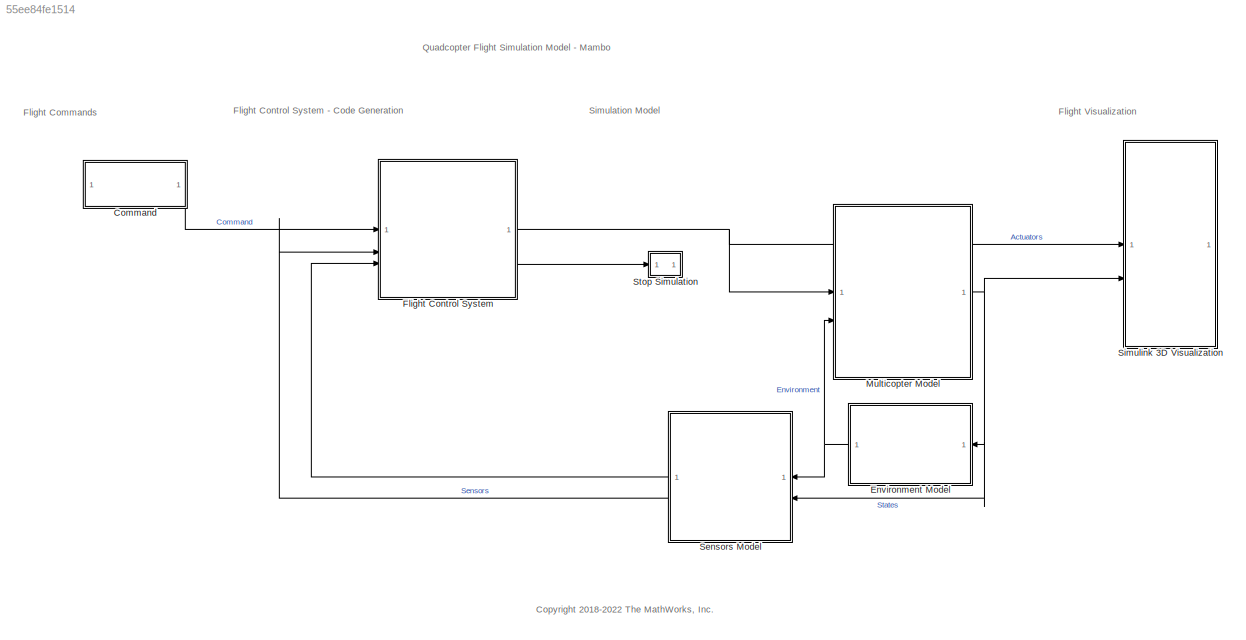
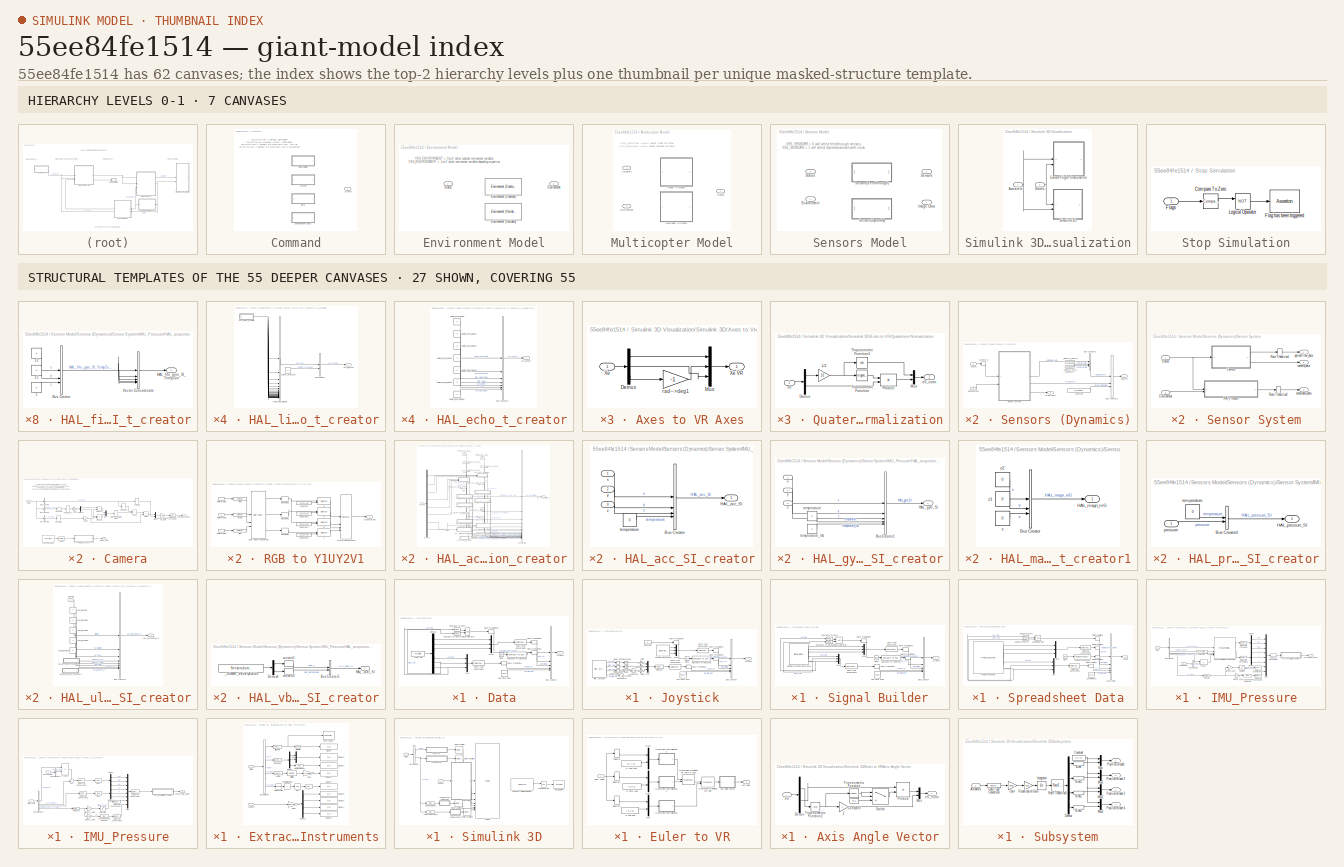
[diagram: thumbnail index - top-2 hierarchy levels (7 canvases) + 27 structural-template representatives of the remaining 55 canvases]
MODEL slx_55ee84fe1514
KIND model
CONFIG AbsTol = auto
CONFIG EnableMultiTasking = on
CONFIG FixedStep = Ts
CONFIG MaxStep = auto
CONFIG MinStep = auto
CONFIG RelTol = 1e-3
CONFIG SampleTimeConstraint = Unconstrained
CONFIG SolverName = ode3
CONFIG StartTime = 0
CONFIG StopTime = TFinal
BLOCK [SubSystem] Command
  Variant = on
BLOCK [Outport] Command/AC Cmd
  OutDataTypeStr = Bus: CommandBus
  VectorParamsAs1DForOutWhenUnconnected = off
BLOCK [SubSystem] Command/Data
  VariantControl = VSS_COMMAND_PRESAVED
BLOCK [Outport] Command/Data/AC Cmd
  OutDataTypeStr = Bus: CommandBus
  VectorParamsAs1DForOutWhenUnconnected = off
BLOCK [BusCreator] Command/Data/Bus Creator
  DisplayOption = bar
  InheritFromInputs = on
  Inputs = 5
  NonVirtualBus = on
  OutDataTypeStr = Bus: CommandBus
BLOCK [Clock] Command/Data/Clock
BLOCK [Reference] Command/Data/Compare To Constant  REF=simulink/Logic and Bit
Operations/Compare
To Constant
  SourceBlock = simulink/Logic and Bit\nOperations/Compare\nTo Constant
  SourceType = Compare To Constant
BLOCK [Reference] Command/Data/Compare To Zero  REF=simulink/Logic and Bit
Operations/Compare
To Zero
  SourceBlock = simulink/Logic and Bit\nOperations/Compare\nTo Zero
  SourceType = Compare To Zero
BLOCK [Reference] Command/Data/Compare To Zero1  REF=simulink/Logic and Bit
Operations/Compare
To Zero
  SourceBlock = simulink/Logic and Bit\nOperations/Compare\nTo Zero
  SourceType = Compare To Zero
BLOCK [DataTypeConversion] Command/Data/Data Type Conversion1
  OutDataTypeStr = single
  RndMeth = Floor
  SaturateOnIntegerOverflow = off
BLOCK [DataTypeConversion] Command/Data/Data Type Conversion3
  OutDataTypeStr = single
  RndMeth = Floor
  SaturateOnIntegerOverflow = off
BLOCK [Demux] Command/Data/Demux
  Outputs = 6
BLOCK [FromFile] Command/Data/From File
  FileName = cmdData.mat
  SampleTime = Ts
BLOCK [Reference] Command/Data/Live Time Ticks  REF=simulink/Sources/Counter
Free-Running
  SourceBlock = simulink/Sources/Counter\nFree-Running
  SourceType = Counter Free-Running
BLOCK [Logic] Command/Data/Logical Operator
  AllPortsSameDT = off
  OutDataTypeStr = boolean
BLOCK [Mux] Command/Data/Mux
  DisplayOption = bar
  Inputs = 3
BLOCK [Mux] Command/Data/Mux1
  DisplayOption = bar
  Inputs = 3
BLOCK [RateTransition] Command/Data/Rate Transition1
  OutPortSampleTime = Ts
BLOCK [RateTransition] Command/Data/Rate Transition2
  OutPortSampleTime = Ts
BLOCK [RateTransition] Command/Data/Rate Transition3
  OutPortSampleTime = Ts
BLOCK [RateTransition] Command/Data/Rate Transition4
  OutPortSampleTime = Ts
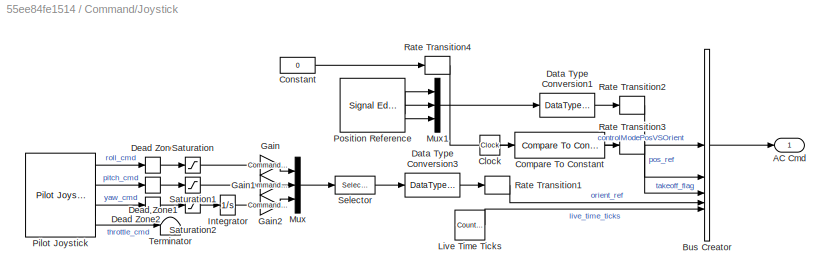
BLOCK [SubSystem] Command/Joystick
  VariantControl = VSS_COMMAND_JOYSTICK
BLOCK [Outport] Command/Joystick/AC Cmd
  OutDataTypeStr = Bus: CommandBus
  VectorParamsAs1DForOutWhenUnconnected = off
BLOCK [BusCreator] Command/Joystick/Bus Creator
  DisplayOption = bar
  InheritFromInputs = on
  Inputs = 5
  NonVirtualBus = on
  OutDataTypeStr = Bus: CommandBus
BLOCK [Clock] Command/Joystick/Clock
BLOCK [Reference] Command/Joystick/Compare To Constant  REF=simulink/Logic and Bit
Operations/Compare
To Constant
  SourceBlock = simulink/Logic and Bit\nOperations/Compare\nTo Constant
  SourceType = Compare To Constant
BLOCK [Constant] Command/Joystick/Constant
  OutDataTypeStr = boolean
  Value = 0
BLOCK [DataTypeConversion] Command/Joystick/Data Type Conversion1
  OutDataTypeStr = single
  RndMeth = Floor
  SaturateOnIntegerOverflow = off
BLOCK [DataTypeConversion] Command/Joystick/Data Type Conversion3
  OutDataTypeStr = single
  RndMeth = Floor
  SaturateOnIntegerOverflow = off
BLOCK [DeadZone] Command/Joystick/Dead Zone
  LowerValue = Command.rollDeadZoneStart
  UpperValue = Command.rollDeadZoneEnd
BLOCK [DeadZone] Command/Joystick/Dead Zone1
  LowerValue = Command.pitchDeadZoneStart
  UpperValue = Command.pitchDeadZoneEnd
BLOCK [DeadZone] Command/Joystick/Dead Zone2
  LowerValue = Command.yawDeadZoneStart
  UpperValue = Command.yawDeadZoneEnd
BLOCK [Gain] Command/Joystick/Gain
  Gain = Command.rollGain
BLOCK [Gain] Command/Joystick/Gain1
  Gain = Command.pitchGain
BLOCK [Gain] Command/Joystick/Gain2
  Gain = Command.yawGain
BLOCK [Integrator] Command/Joystick/Integrator
BLOCK [Reference] Command/Joystick/Live Time Ticks  REF=simulink/Sources/Counter
Free-Running
  SourceBlock = simulink/Sources/Counter\nFree-Running
  SourceType = Counter Free-Running
BLOCK [Mux] Command/Joystick/Mux
  DisplayOption = bar
  Inputs = 3
BLOCK [Mux] Command/Joystick/Mux1
  DisplayOption = bar
  Inputs = 3
BLOCK [Reference] Command/Joystick/Pilot Joystick  REF=aerolibanimutils/Pilot Joystick
  SourceBlock = aerolibanimutils/Pilot Joystick
  SourceType = PilotJoystick
BLOCK [Reference] Command/Joystick/Position Reference  REF=SignalEditorBlockLib/Signal Editor
  LibrarySourceBlock = simulink/Sources/Signal Editor
  SourceBlock = SignalEditorBlockLib/Signal Editor
  SourceType = SignalEditor
  UserDataPersistent = on
BLOCK [RateTransition] Command/Joystick/Rate Transition1
  OutPortSampleTime = Ts
BLOCK [RateTransition] Command/Joystick/Rate Transition2
  OutPortSampleTime = Ts
BLOCK [RateTransition] Command/Joystick/Rate Transition3
  OutPortSampleTime = Ts
BLOCK [RateTransition] Command/Joystick/Rate Transition4
  OutPortSampleTime = Ts
BLOCK [Saturate] Command/Joystick/Saturation
  LowerLimit = Command.rollSatLower
  UpperLimit = Command.rollSatUpper
BLOCK [Saturate] Command/Joystick/Saturation1
  LowerLimit = Command.pitchSatLower
  UpperLimit = Command.pitchSatUpper
BLOCK [Saturate] Command/Joystick/Saturation2
  LowerLimit = Command.yawSatLower
  UpperLimit = Command.yawSatUpper
BLOCK [Selector] Command/Joystick/Selector
  IndexOptions = Index vector (dialog)
  Indices = [3 2 1]
  InputPortWidth = 3
  OutputSizes = 1
BLOCK [Terminator] Command/Joystick/Terminator
BLOCK [SubSystem] Command/Signal Builder
  VariantControl = VSS_COMMAND_SIGBLDR
BLOCK [Outport] Command/Signal Builder/AC Cmd
  OutDataTypeStr = Bus: CommandBus
  VectorParamsAs1DForOutWhenUnconnected = off
BLOCK [BusCreator] Command/Signal Builder/Bus Creator
  DisplayOption = bar
  InheritFromInputs = on
  Inputs = 5
  NonVirtualBus = on
  OutDataTypeStr = Bus: CommandBus
BLOCK [Clock] Command/Signal Builder/Clock
BLOCK [Reference] Command/Signal Builder/Compare To Constant  REF=simulink/Logic and Bit
Operations/Compare
To Constant
  SourceBlock = simulink/Logic and Bit\nOperations/Compare\nTo Constant
  SourceType = Compare To Constant
BLOCK [Reference] Command/Signal Builder/Compare To Zero  REF=simulink/Logic and Bit
Operations/Compare
To Zero
  SourceBlock = simulink/Logic and Bit\nOperations/Compare\nTo Zero
  SourceType = Compare To Zero
BLOCK [Reference] Command/Signal Builder/Compare To Zero1  REF=simulink/Logic and Bit
Operations/Compare
To Zero
  SourceBlock = simulink/Logic and Bit\nOperations/Compare\nTo Zero
  SourceType = Compare To Zero
BLOCK [DataTypeConversion] Command/Signal Builder/Data Type Conversion1
  OutDataTypeStr = single
  RndMeth = Floor
  SaturateOnIntegerOverflow = off
BLOCK [DataTypeConversion] Command/Signal Builder/Data Type Conversion3
  OutDataTypeStr = single
  RndMeth = Floor
  SaturateOnIntegerOverflow = off
BLOCK [Reference] Command/Signal Builder/Live Time Ticks  REF=simulink/Sources/Counter
Free-Running
  SourceBlock = simulink/Sources/Counter\nFree-Running
  SourceType = Counter Free-Running
BLOCK [Logic] Command/Signal Builder/Logical Operator
  AllPortsSameDT = off
  OutDataTypeStr = boolean
BLOCK [Mux] Command/Signal Builder/Mux
  DisplayOption = bar
  Inputs = 3
BLOCK [Mux] Command/Signal Builder/Mux1
  DisplayOption = bar
  Inputs = 3
BLOCK [Reference] Command/Signal Builder/Position//Attitude Reference  REF=SignalEditorBlockLib/Signal Editor
  LibrarySourceBlock = simulink/Sources/Signal Editor
  SourceBlock = SignalEditorBlockLib/Signal Editor
  SourceType = SignalEditor
  UserDataPersistent = on
BLOCK [RateTransition] Command/Signal Builder/Rate Transition1
  OutPortSampleTime = Ts
BLOCK [RateTransition] Command/Signal Builder/Rate Transition2
  OutPortSampleTime = Ts
BLOCK [RateTransition] Command/Signal Builder/Rate Transition3
  OutPortSampleTime = Ts
BLOCK [RateTransition] Command/Signal Builder/Rate Transition4
  OutPortSampleTime = Ts
BLOCK [SubSystem] Command/Spreadsheet Data
  VariantControl = VSS_COMMAND_SPREADSHEET
BLOCK [Outport] Command/Spreadsheet Data/AC Cmd
  OutDataTypeStr = Bus: CommandBus
  VectorParamsAs1DForOutWhenUnconnected = off
BLOCK [BusCreator] Command/Spreadsheet Data/Bus Creator
  DisplayOption = bar
  InheritFromInputs = on
  Inputs = 5
  NonVirtualBus = on
  OutDataTypeStr = Bus: CommandBus
BLOCK [Clock] Command/Spreadsheet Data/Clock
BLOCK [Reference] Command/Spreadsheet Data/Compare To Constant  REF=simulink/Logic and Bit
Operations/Compare
To Constant
  SourceBlock = simulink/Logic and Bit\nOperations/Compare\nTo Constant
  SourceType = Compare To Constant
BLOCK [Reference] Command/Spreadsheet Data/Compare To Zero  REF=simulink/Logic and Bit
Operations/Compare
To Zero
  SourceBlock = simulink/Logic and Bit\nOperations/Compare\nTo Zero
  SourceType = Compare To Zero
BLOCK [Reference] Command/Spreadsheet Data/Compare To Zero1  REF=simulink/Logic and Bit
Operations/Compare
To Zero
  SourceBlock = simulink/Logic and Bit\nOperations/Compare\nTo Zero
  SourceType = Compare To Zero
BLOCK [DataTypeConversion] Command/Spreadsheet Data/Data Type Conversion1
  OutDataTypeStr = single
  RndMeth = Floor
  SaturateOnIntegerOverflow = off
BLOCK [DataTypeConversion] Command/Spreadsheet Data/Data Type Conversion3
  OutDataTypeStr = single
  RndMeth = Floor
  SaturateOnIntegerOverflow = off
BLOCK [FromSpreadsheet] Command/Spreadsheet Data/From Spreadsheet
  FileName = cmdData.xlsx
  SampleTime = Ts
  SheetName = data
BLOCK [Reference] Command/Spreadsheet Data/Live Time Ticks  REF=simulink/Sources/Counter
Free-Running
  SourceBlock = simulink/Sources/Counter\nFree-Running
  SourceType = Counter Free-Running
BLOCK [Logic] Command/Spreadsheet Data/Logical Operator
  AllPortsSameDT = off
  OutDataTypeStr = boolean
BLOCK [Mux] Command/Spreadsheet Data/Mux
  DisplayOption = bar
  Inputs = 3
BLOCK [Mux] Command/Spreadsheet Data/Mux1
  DisplayOption = bar
  Inputs = 3
BLOCK [RateTransition] Command/Spreadsheet Data/Rate Transition1
  OutPortSampleTime = Ts
BLOCK [RateTransition] Command/Spreadsheet Data/Rate Transition2
  OutPortSampleTime = Ts
BLOCK [RateTransition] Command/Spreadsheet Data/Rate Transition3
  OutPortSampleTime = Ts
BLOCK [RateTransition] Command/Spreadsheet Data/Rate Transition4
  OutPortSampleTime = Ts
BLOCK [SubSystem] Environment Model
  Variant = on
BLOCK [Outport] Environment Model/Environment
  OutDataTypeStr = Bus: EnvironmentBus
  VectorParamsAs1DForOutWhenUnconnected = off
BLOCK [Reference] Environment Model/Environment (Constant)  REF=environmentLibrary/Environment (Constant)
  SourceBlock = environmentLibrary/Environment (Constant)
  SourceType = SubSystem
BLOCK [Reference] Environment Model/Environment (Variable)  REF=environmentLibrary/Environment (Variable)
  SourceBlock = environmentLibrary/Environment (Variable)
  SourceType = SubSystem
BLOCK [Inport] Environment Model/States
  OutDataTypeStr = Bus: StatesBus
BLOCK [ModelReference] Flight Control System
  ModelNameDialog = flightControlSystem.slx
  ModelReferenceVersion = 8.1
BLOCK [SubSystem] Multicopter Model
  Variant = on
BLOCK [Inport] Multicopter Model/Actuators
BLOCK [Inport] Multicopter Model/Environment
  OutDataTypeStr = Bus: EnvironmentBus
  Port = 2
BLOCK [ModelReference] Multicopter Model/Linear Airframe
  ModelNameDialog = linearAirframe.slx
  ModelReferenceVersion = 13.0
  VariantControl = VSS_VEHICLE_LINEAR
BLOCK [ModelReference] Multicopter Model/Nonlinear Airframe
  ModelNameDialog = nonlinearAirframe.slx
  ModelReferenceVersion = 13.0
  VariantControl = VSS_VEHICLE_NONLINEAR
BLOCK [Outport] Multicopter Model/States
  OutDataTypeStr = Bus: StatesBus
  VectorParamsAs1DForOutWhenUnconnected = off
BLOCK [SubSystem] Sensors Model
  Variant = on
BLOCK [Inport] Sensors Model/Environment
BLOCK [Outport] Sensors Model/Image Data
  VectorParamsAs1DForOutWhenUnconnected = off
BLOCK [Outport] Sensors Model/Sensors
  Port = 2
  VectorParamsAs1DForOutWhenUnconnected = off
BLOCK [SubSystem] Sensors Model/Sensors (Dynamics)
  TreatAsAtomicUnit = on
  VariantControl = VSS_SENSORS_DYNAMICS
BLOCK [BusCreator] Sensors Model/Sensors (Dynamics)/Bus Creator1
  DisplayOption = bar
  InheritFromInputs = on
  Inputs = 3
  NonVirtualBus = on
  OutDataTypeStr = Bus: SensorsBus
BLOCK [BusCreator] Sensors Model/Sensors (Dynamics)/Bus Creator2
  DisplayOption = bar
  InheritFromInputs = on
  Inputs = 3
  NonVirtualBus = on
  OutDataTypeStr = Bus: extraSensorData_t
BLOCK [Constant] Sensors Model/Sensors (Dynamics)/Constant
  OutDataTypeStr = single
  Value = sensorCalibrationData
BLOCK [Inport] Sensors Model/Sensors (Dynamics)/Environment
  OutDataTypeStr = Bus: EnvironmentBus
  Port = 2
BLOCK [Outport] Sensors Model/Sensors (Dynamics)/Image Data
  Port = 2
  VectorParamsAs1DForOutWhenUnconnected = off
BLOCK [Memory] Sensors Model/Sensors (Dynamics)/Memory1
  InheritSampleTime = on
  InitialCondition = States
BLOCK [SubSystem] Sensors Model/Sensors (Dynamics)/Sensor System
BLOCK [SubSystem] Sensors Model/Sensors (Dynamics)/Sensor System/Camera
BLOCK [Sum] Sensors Model/Sensors (Dynamics)/Sensor System/Camera/Add1
  IconShape = rectangular
BLOCK [BusSelector] Sensors Model/Sensors (Dynamics)/Sensor System/Camera/Bus Selector1
  OutputSignals = V_body
BLOCK [BusSelector] Sensors Model/Sensors (Dynamics)/Sensor System/Camera/Bus Selector3
  OutputSignals = X_ned
BLOCK [BusSelector] Sensors Model/Sensors (Dynamics)/Sensor System/Camera/Bus Selector4
  OutputSignals = Omega_body
BLOCK [DataTypeConversion] Sensors Model/Sensors (Dynamics)/Sensor System/Camera/Data Type Conversion
  OutDataTypeStr = single
  RndMeth = Floor
  SaturateOnIntegerOverflow = off
BLOCK [Demux] Sensors Model/Sensors (Dynamics)/Sensor System/Camera/Demux4
  Outputs = 2
BLOCK [Product] Sensors Model/Sensors (Dynamics)/Sensor System/Camera/Divide
  Inputs = */
BLOCK [Gain] Sensors Model/Sensors (Dynamics)/Sensor System/Camera/Gain1
  Gain = 0.8*[-1,1]
BLOCK [Gain] Sensors Model/Sensors (Dynamics)/Sensor System/Camera/Gain2
  Gain = -1
BLOCK [Mux] Sensors Model/Sensors (Dynamics)/Sensor System/Camera/Mux7
  DisplayOption = bar
  Inputs = 2
BLOCK [Mux] Sensors Model/Sensors (Dynamics)/Sensor System/Camera/Mux8
  DisplayOption = bar
  Inputs = 2
BLOCK [S-Function] Sensors Model/Sensors (Dynamics)/Sensor System/Camera/On-Board Camera
  CloseFcn = vrmfunc('FnClose', gcbh);
  ContinueFcn = vrmfunc('FnSimStatus', gcbh, 'running');
  CopyFcn = vrmfunc('FnCopy', gcbh);
  DeleteFcn = vrmfunc('FnDelete', gcbh);
  DestroyFcn = vrmfunc('FnDestroy', gcbh);
  EnableBusSupport = off
  FunctionName = vrsfunc
  InstantiateOnLoad = on
  LoadFcn = vrmfunc('FnLoad', gcbh);
  OpenFcn = vrmfunc('FnOpen', gcbh);
  Parameters = SampleTime, VideoDimensions, false
  PauseFcn = vrmfunc('FnSimStatus', gcbh, 'paused');
  PreSaveFcn = vrmfunc('FnPreSave', gcbh);
  SFcnIsStateOwnerBlock = off
  SFunctionDeploymentMode = off
  StartFcn = vrmfunc('FnSimStatus', gcbh, 'running')
  StopFcn = vrmfunc('FnStop', gcbh)
BLOCK [Product] Sensors Model/Sensors (Dynamics)/Sensor System/Camera/Product
BLOCK [Product] Sensors Model/Sensors (Dynamics)/Sensor System/Camera/Product1
BLOCK [SubSystem] Sensors Model/Sensors (Dynamics)/Sensor System/Camera/RGB to Y1UY2V1
BLOCK [InportShadow] Sensors Model/Sensors (Dynamics)/Sensor System/Camera/RGB to Y1UY2V1/ RGBImage 
  OutDataTypeStr = uint8
  PortDimensions = [120 160 3]
BLOCK [Selector] Sensors Model/Sensors (Dynamics)/Sensor System/Camera/RGB to Y1UY2V1/Blue
  IndexOptions = Select all,Select all,Index vector (dialog)
  Indices = 1,1,3
  InputPortWidth = 3
  NumberOfDimensions = 3
  OutputSizes = 1,1,1
BLOCK [Reference] Sensors Model/Sensors (Dynamics)/Sensor System/Camera/RGB to Y1UY2V1/Color Space Conversion  REF=visionconversions/Color Space
 Conversion
  SourceBlock = visionconversions/Color Space\n Conversion
  SourceType = Color Space Conversion
BLOCK [Constant] Sensors Model/Sensors (Dynamics)/Sensor System/Camera/RGB to Y1UY2V1/Constant
  Value = 1:2:120*160
BLOCK [Constant] Sensors Model/Sensors (Dynamics)/Sensor System/Camera/RGB to Y1UY2V1/Constant1
  Value = 2:2:120*160
BLOCK [Constant] Sensors Model/Sensors (Dynamics)/Sensor System/Camera/RGB to Y1UY2V1/Constant2
  Value = 1:2:120*160
BLOCK [Constant] Sensors Model/Sensors (Dynamics)/Sensor System/Camera/RGB to Y1UY2V1/Constant3
  Value = 1:2:120*160
BLOCK [Selector] Sensors Model/Sensors (Dynamics)/Sensor System/Camera/RGB to Y1UY2V1/Green
  IndexOptions = Select all,Select all,Index vector (dialog)
  Indices = 1,1,2
  InputPortWidth = 3
  NumberOfDimensions = 3
  OutputSizes = 1,1,1
BLOCK [Concatenate] Sensors Model/Sensors (Dynamics)/Sensor System/Camera/RGB to Y1UY2V1/Matrix Concatenate
  Mode = Multidimensional array
  NumInputs = 4
BLOCK [Inport] Sensors Model/Sensors (Dynamics)/Sensor System/Camera/RGB to Y1UY2V1/RGBImage
  OutDataTypeStr = uint8
  PortDimensions = [120 160 3]
BLOCK [InportShadow] Sensors Model/Sensors (Dynamics)/Sensor System/Camera/RGB to Y1UY2V1/RGBImage 
  OutDataTypeStr = uint8
  PortDimensions = [120 160 3]
BLOCK [Selector] Sensors Model/Sensors (Dynamics)/Sensor System/Camera/RGB to Y1UY2V1/Red
  IndexOptions = Select all,Select all,Index vector (dialog)
  Indices = 1,1,1
  InputPortWidth = 3
  NumberOfDimensions = 3
  OutputSizes = 1,1,1
BLOCK [Reshape] Sensors Model/Sensors (Dynamics)/Sensor System/Camera/RGB to Y1UY2V1/Reshape1
  OutputDimensionality = Customize
  OutputDimensions = [1,19200]
BLOCK [Reshape] Sensors Model/Sensors (Dynamics)/Sensor System/Camera/RGB to Y1UY2V1/Reshape2
  OutputDimensionality = Customize
  OutputDimensions = [1,19200]
BLOCK [Reshape] Sensors Model/Sensors (Dynamics)/Sensor System/Camera/RGB to Y1UY2V1/Reshape3
  OutputDimensionality = Customize
  OutputDimensions = [1,19200]
BLOCK [Outport] Sensors Model/Sensors (Dynamics)/Sensor System/Camera/RGB to Y1UY2V1/Y1UY2VImage
  OutDataTypeStr = uint8
  PortDimensions = [4 9600]
  VectorParamsAs1DForOutWhenUnconnected = off
BLOCK [Selector] Sensors Model/Sensors (Dynamics)/Sensor System/Camera/RGB to Y1UY2V1/u
  IndexOptions = Index vector (port)
  Indices = [1 3]
  InputPortWidth = 120*160
  OutputSizes = 1
BLOCK [Selector] Sensors Model/Sensors (Dynamics)/Sensor System/Camera/RGB to Y1UY2V1/v
  IndexOptions = Index vector (port)
  Indices = [1 3]
  InputPortWidth = 120*160
  OutputSizes = 1
BLOCK [Selector] Sensors Model/Sensors (Dynamics)/Sensor System/Camera/RGB to Y1UY2V1/y1
  IndexOptions = Index vector (port)
  Indices = [1 3]
  InputPortWidth = 120*160
  OutputSizes = 1
BLOCK [Selector] Sensors Model/Sensors (Dynamics)/Sensor System/Camera/RGB to Y1UY2V1/y2
  IndexOptions = Index vector (port)
  Indices = [1 3]
  InputPortWidth = 120*160
  OutputSizes = 1
BLOCK [Reshape] Sensors Model/Sensors (Dynamics)/Sensor System/Camera/Reshape
BLOCK [Reference] Sensors Model/Sensors (Dynamics)/Sensor System/Camera/Rotate  REF=visiongeotforms/Rotate
  SourceBlock = visiongeotforms/Rotate
  SourceType = Rotate
BLOCK [Selector] Sensors Model/Sensors (Dynamics)/Sensor System/Camera/Select dx,dy
  IndexOptions = Index vector (dialog)
  Indices = [1 2]
  InputPortWidth = 3
  OutputSizes = 1
BLOCK [Selector] Sensors Model/Sensors (Dynamics)/Sensor System/Camera/Select dx,dy1
  IndexOptions = Index vector (dialog)
  Indices = [1 2]
  InputPortWidth = 3
  OutputSizes = 1
BLOCK [Selector] Sensors Model/Sensors (Dynamics)/Sensor System/Camera/Select dz
  IndexOptions = Index vector (dialog)
  Indices = 3
  InputPortWidth = 3
  OutputSizes = 1
BLOCK [Selector] Sensors Model/Sensors (Dynamics)/Sensor System/Camera/Select dz1
  IndexOptions = Index vector (dialog)
  Indices = 3
  InputPortWidth = 3
  OutputSizes = 1
BLOCK [Selector] Sensors Model/Sensors (Dynamics)/Sensor System/Camera/SwitchPlanarOpticalFlow
  IndexOptions = Index vector (dialog)
  Indices = [2 1]
  InputPortWidth = 2
  OutputSizes = 1
BLOCK [Gain] Sensors Model/Sensors (Dynamics)/Sensor System/Camera/VelocityToOpticalFlow_Gain
  Gain = Sensors.velocityToOpticalFlowGain
BLOCK [Outport] Sensors Model/Sensors (Dynamics)/Sensor System/Camera/image_data
  Port = 2
  VectorParamsAs1DForOutWhenUnconnected = off
BLOCK [Outport] Sensors Model/Sensors (Dynamics)/Sensor System/Camera/opticalFlow_datout
  VectorParamsAs1DForOutWhenUnconnected = off
BLOCK [Inport] Sensors Model/Sensors (Dynamics)/Sensor System/Camera/states
  NameLocation = top
  OutDataTypeStr = Bus: StatesBus
BLOCK [Inport] Sensors Model/Sensors (Dynamics)/Sensor System/Environment
  Port = 2
BLOCK [SubSystem] Sensors Model/Sensors (Dynamics)/Sensor System/IMU_Pressure
BLOCK [Bias] Sensors Model/Sensors (Dynamics)/Sensor System/IMU_Pressure/Assumes takeoff was level1
  Bias = Sensors.altToPrsBias
  SaturateOnIntegerOverflow = off
BLOCK [BusSelector] Sensors Model/Sensors (Dynamics)/Sensor System/IMU_Pressure/Bus Selector
  OutputSignals = Accel_body,Omega_body,dOmega_body,DCM_be,X_ned
BLOCK [BusSelector] Sensors Model/Sensors (Dynamics)/Sensor System/IMU_Pressure/Bus Selector1
  OutputSignals = Gravity_ned
BLOCK [Constant] Sensors Model/Sensors (Dynamics)/Sensor System/IMU_Pressure/CG location
  Value = Sensors.IMU.cg
BLOCK [DataTypeConversion] Sensors Model/Sensors (Dynamics)/Sensor System/IMU_Pressure/Data Type Conversion
  OutDataTypeStr = single
  RndMeth = Floor
  SaturateOnIntegerOverflow = off
BLOCK [DataTypeConversion] Sensors Model/Sensors (Dynamics)/Sensor System/IMU_Pressure/Data Type Conversion1
  OutDataTypeStr = single
  RndMeth = Floor
  SaturateOnIntegerOverflow = off
BLOCK [DataTypeConversion] Sensors Model/Sensors (Dynamics)/Sensor System/IMU_Pressure/Data Type Conversion2
  OutDataTypeStr = single
  RndMeth = Floor
  SaturateOnIntegerOverflow = off
BLOCK [DataTypeConversion] Sensors Model/Sensors (Dynamics)/Sensor System/IMU_Pressure/Data Type Conversion3
  OutDataTypeStr = single
  RndMeth = Floor
  SaturateOnIntegerOverflow = off
BLOCK [DataTypeConversion] Sensors Model/Sensors (Dynamics)/Sensor System/IMU_Pressure/Data Type Conversion4
  OutDataTypeStr = single
  RndMeth = Floor
  SaturateOnIntegerOverflow = off
BLOCK [Demux] Sensors Model/Sensors (Dynamics)/Sensor System/IMU_Pressure/Demux
  Outputs = 3
BLOCK [Demux] Sensors Model/Sensors (Dynamics)/Sensor System/IMU_Pressure/Demux2
  Outputs = 3
BLOCK [Inport] Sensors Model/Sensors (Dynamics)/Sensor System/IMU_Pressure/Environment
  Port = 2
BLOCK [SubSystem] Sensors Model/Sensors (Dynamics)/Sensor System/IMU_Pressure/HAL_acquisition_creator
BLOCK [BusCreator] Sensors Model/Sensors (Dynamics)/Sensor System/IMU_Pressure/HAL_acquisition_creator/Bus Creator4
  DisplayOption = bar
  InheritFromInputs = off
  Inputs = 21
  NonVirtualBus = on
  OutDataTypeStr = Bus: HAL_acquisition_t
BLOCK [Demux] Sensors Model/Sensors (Dynamics)/Sensor System/IMU_Pressure/HAL_acquisition_creator/Demux3
  Outputs = 8
BLOCK [SubSystem] Sensors Model/Sensors (Dynamics)/Sensor System/IMU_Pressure/HAL_acquisition_creator/HAL_acc_SI_creator
BLOCK [BusCreator] Sensors Model/Sensors (Dynamics)/Sensor System/IMU_Pressure/HAL_acquisition_creator/HAL_acc_SI_creator/Bus Creator
  DisplayOption = bar
  InheritFromInputs = on
  Inputs = 4
  OutDataTypeStr = Bus: HAL_acc_SI_t
BLOCK [Outport] Sensors Model/Sensors (Dynamics)/Sensor System/IMU_Pressure/HAL_acquisition_creator/HAL_acc_SI_creator/HAL_acc_SI
  VectorParamsAs1DForOutWhenUnconnected = off
BLOCK [Constant] Sensors Model/Sensors (Dynamics)/Sensor System/IMU_Pressure/HAL_acquisition_creator/HAL_acc_SI_creator/temperature
  OutDataTypeStr = single
  Value = 0
BLOCK [Inport] Sensors Model/Sensors (Dynamics)/Sensor System/IMU_Pressure/HAL_acquisition_creator/HAL_acc_SI_creator/x
BLOCK [Inport] Sensors Model/Sensors (Dynamics)/Sensor System/IMU_Pressure/HAL_acquisition_creator/HAL_acc_SI_creator/y
  Port = 2
BLOCK [Inport] Sensors Model/Sensors (Dynamics)/Sensor System/IMU_Pressure/HAL_acquisition_creator/HAL_acc_SI_creator/z
  Port = 3
BLOCK [Outport] Sensors Model/Sensors (Dynamics)/Sensor System/IMU_Pressure/HAL_acquisition_creator/HAL_acquisition_t
  OutDataTypeStr = Bus: HAL_acquisition_t
  VectorParamsAs1DForOutWhenUnconnected = off
BLOCK [Constant] Sensors Model/Sensors (Dynamics)/Sensor System/IMU_Pressure/HAL_acquisition_creator/HAL_fifo_fsync
  OutDataTypeStr = uint8
  Value = zeros(5,1)
BLOCK [SubSystem] Sensors Model/Sensors (Dynamics)/Sensor System/IMU_Pressure/HAL_acquisition_creator/HAL_fifo_gyro_SI_t_creator
BLOCK [BusCreator] Sensors Model/Sensors (Dynamics)/Sensor System/IMU_Pressure/HAL_acquisition_creator/HAL_fifo_gyro_SI_t_creator/Bus Creator
  DisplayOption = bar
  InheritFromInputs = off
  Inputs = 3
  NonVirtualBus = on
  OutDataTypeStr = Bus: HAL_fifo_gyro_SI_t
BLOCK [Outport] Sensors Model/Sensors (Dynamics)/Sensor System/IMU_Pressure/HAL_acquisition_creator/HAL_fifo_gyro_SI_t_creator/HAL_fifo_gyro_SI_TempCorr
  LockScale = on
  PortDimensions = 5
  VectorParamsAs1DForOutWhenUnconnected = off
BLOCK [Concatenate] Sensors Model/Sensors (Dynamics)/Sensor System/IMU_Pressure/HAL_acquisition_creator/HAL_fifo_gyro_SI_t_creator/Vector Concatenate
  NumInputs = 5
BLOCK [Constant] Sensors Model/Sensors (Dynamics)/Sensor System/IMU_Pressure/HAL_acquisition_creator/HAL_fifo_gyro_SI_t_creator/z
  OutDataTypeStr = single
  Value = 0
BLOCK [Constant] Sensors Model/Sensors (Dynamics)/Sensor System/IMU_Pressure/HAL_acquisition_creator/HAL_fifo_gyro_SI_t_creator/z1
  OutDataTypeStr = single
  Value = 0
BLOCK [Constant] Sensors Model/Sensors (Dynamics)/Sensor System/IMU_Pressure/HAL_acquisition_creator/HAL_fifo_gyro_SI_t_creator/z2
  OutDataTypeStr = single
  Value = 0
BLOCK [SubSystem] Sensors Model/Sensors (Dynamics)/Sensor System/IMU_Pressure/HAL_acquisition_creator/HAL_fifo_gyro_SI_t_creator1
BLOCK [BusCreator] Sensors Model/Sensors (Dynamics)/Sensor System/IMU_Pressure/HAL_acquisition_creator/HAL_fifo_gyro_SI_t_creator1/Bus Creator
  DisplayOption = bar
  InheritFromInputs = off
  Inputs = 3
  NonVirtualBus = on
  OutDataTypeStr = Bus: HAL_fifo_gyro_SI_t
BLOCK [Outport] Sensors Model/Sensors (Dynamics)/Sensor System/IMU_Pressure/HAL_acquisition_creator/HAL_fifo_gyro_SI_t_creator1/HAL_fifo_acce_SI_TempCorr
  LockScale = on
  PortDimensions = 5
  VectorParamsAs1DForOutWhenUnconnected = off
BLOCK [Concatenate] Sensors Model/Sensors (Dynamics)/Sensor System/IMU_Pressure/HAL_acquisition_creator/HAL_fifo_gyro_SI_t_creator1/Vector Concatenate
  NumInputs = 5
BLOCK [Constant] Sensors Model/Sensors (Dynamics)/Sensor System/IMU_Pressure/HAL_acquisition_creator/HAL_fifo_gyro_SI_t_creator1/x
  OutDataTypeStr = single
  Value = 0
BLOCK [Constant] Sensors Model/Sensors (Dynamics)/Sensor System/IMU_Pressure/HAL_acquisition_creator/HAL_fifo_gyro_SI_t_creator1/x1
  OutDataTypeStr = single
  Value = 0
BLOCK [Constant] Sensors Model/Sensors (Dynamics)/Sensor System/IMU_Pressure/HAL_acquisition_creator/HAL_fifo_gyro_SI_t_creator1/x2
  OutDataTypeStr = single
  Value = 0
BLOCK [SubSystem] Sensors Model/Sensors (Dynamics)/Sensor System/IMU_Pressure/HAL_acquisition_creator/HAL_fifo_gyro_SI_t_creator2
BLOCK [BusCreator] Sensors Model/Sensors (Dynamics)/Sensor System/IMU_Pressure/HAL_acquisition_creator/HAL_fifo_gyro_SI_t_creator2/Bus Creator
  DisplayOption = bar
  InheritFromInputs = off
  Inputs = 3
  NonVirtualBus = on
  OutDataTypeStr = Bus: HAL_fifo_gyro_SI_t
BLOCK [Outport] Sensors Model/Sensors (Dynamics)/Sensor System/IMU_Pressure/HAL_acquisition_creator/HAL_fifo_gyro_SI_t_creator2/HAL_fifo_gyro_SI_TempCorr
  LockScale = on
  PortDimensions = 5
  VectorParamsAs1DForOutWhenUnconnected = off
BLOCK [Concatenate] Sensors Model/Sensors (Dynamics)/Sensor System/IMU_Pressure/HAL_acquisition_creator/HAL_fifo_gyro_SI_t_creator2/Vector Concatenate
  NumInputs = 5
BLOCK [Constant] Sensors Model/Sensors (Dynamics)/Sensor System/IMU_Pressure/HAL_acquisition_creator/HAL_fifo_gyro_SI_t_creator2/z
  OutDataTypeStr = single
  Value = 0
BLOCK [Constant] Sensors Model/Sensors (Dynamics)/Sensor System/IMU_Pressure/HAL_acquisition_creator/HAL_fifo_gyro_SI_t_creator2/z1
  OutDataTypeStr = single
  Value = 0
BLOCK [Constant] Sensors Model/Sensors (Dynamics)/Sensor System/IMU_Pressure/HAL_acquisition_creator/HAL_fifo_gyro_SI_t_creator2/z2
  OutDataTypeStr = single
  Value = 0
BLOCK [SubSystem] Sensors Model/Sensors (Dynamics)/Sensor System/IMU_Pressure/HAL_acquisition_creator/HAL_fifo_gyro_SI_t_creator3
BLOCK [BusCreator] Sensors Model/Sensors (Dynamics)/Sensor System/IMU_Pressure/HAL_acquisition_creator/HAL_fifo_gyro_SI_t_creator3/Bus Creator
  DisplayOption = bar
  InheritFromInputs = off
  Inputs = 3
  NonVirtualBus = on
  OutDataTypeStr = Bus: HAL_fifo_gyro_SI_t
BLOCK [Outport] Sensors Model/Sensors (Dynamics)/Sensor System/IMU_Pressure/HAL_acquisition_creator/HAL_fifo_gyro_SI_t_creator3/HAL_fifo_acce_SI_TempCorr
  LockScale = on
  PortDimensions = 5
  VectorParamsAs1DForOutWhenUnconnected = off
BLOCK [Concatenate] Sensors Model/Sensors (Dynamics)/Sensor System/IMU_Pressure/HAL_acquisition_creator/HAL_fifo_gyro_SI_t_creator3/Vector Concatenate
  NumInputs = 5
BLOCK [Constant] Sensors Model/Sensors (Dynamics)/Sensor System/IMU_Pressure/HAL_acquisition_creator/HAL_fifo_gyro_SI_t_creator3/z
  OutDataTypeStr = single
  Value = 0
BLOCK [Constant] Sensors Model/Sensors (Dynamics)/Sensor System/IMU_Pressure/HAL_acquisition_creator/HAL_fifo_gyro_SI_t_creator3/z1
  OutDataTypeStr = single
  Value = 0
BLOCK [Constant] Sensors Model/Sensors (Dynamics)/Sensor System/IMU_Pressure/HAL_acquisition_creator/HAL_fifo_gyro_SI_t_creator3/z2
  OutDataTypeStr = single
  Value = 0
BLOCK [SubSystem] Sensors Model/Sensors (Dynamics)/Sensor System/IMU_Pressure/HAL_acquisition_creator/HAL_gyro_SI_creator
BLOCK [BusCreator] Sensors Model/Sensors (Dynamics)/Sensor System/IMU_Pressure/HAL_acquisition_creator/HAL_gyro_SI_creator/Bus Creator1
  DisplayOption = bar
  InheritFromInputs = on
  Inputs = 5
  OutDataTypeStr = Bus: HAL_gyro_SI_t
BLOCK [Outport] Sensors Model/Sensors (Dynamics)/Sensor System/IMU_Pressure/HAL_acquisition_creator/HAL_gyro_SI_creator/HAL_gyro_SI
  VectorParamsAs1DForOutWhenUnconnected = off
BLOCK [Constant] Sensors Model/Sensors (Dynamics)/Sensor System/IMU_Pressure/HAL_acquisition_creator/HAL_gyro_SI_creator/temperature
  OutDataTypeStr = single
  Value = 0
BLOCK [Constant] Sensors Model/Sensors (Dynamics)/Sensor System/IMU_Pressure/HAL_acquisition_creator/HAL_gyro_SI_creator/temperature_lsb
  OutDataTypeStr = int32
  Value = 0
BLOCK [Inport] Sensors Model/Sensors (Dynamics)/Sensor System/IMU_Pressure/HAL_acquisition_creator/HAL_gyro_SI_creator/x
BLOCK [Inport] Sensors Model/Sensors (Dynamics)/Sensor System/IMU_Pressure/HAL_acquisition_creator/HAL_gyro_SI_creator/y
  Port = 2
BLOCK [Inport] Sensors Model/Sensors (Dynamics)/Sensor System/IMU_Pressure/HAL_acquisition_creator/HAL_gyro_SI_creator/z
  Port = 3
BLOCK [SubSystem] Sensors Model/Sensors (Dynamics)/Sensor System/IMU_Pressure/HAL_acquisition_creator/HAL_magn_mG_t_creator1
BLOCK [BusCreator] Sensors Model/Sensors (Dynamics)/Sensor System/IMU_Pressure/HAL_acquisition_creator/HAL_magn_mG_t_creator1/Bus Creator
  DisplayOption = bar
  InheritFromInputs = off
  Inputs = 3
  OutDataTypeStr = Bus: HAL_magn_mG_t
BLOCK [Outport] Sensors Model/Sensors (Dynamics)/Sensor System/IMU_Pressure/HAL_acquisition_creator/HAL_magn_mG_t_creator1/HAL_magn_mG
  VectorParamsAs1DForOutWhenUnconnected = off
BLOCK [Constant] Sensors Model/Sensors (Dynamics)/Sensor System/IMU_Pressure/HAL_acquisition_creator/HAL_magn_mG_t_creator1/z
  OutDataTypeStr = single
  Value = 0
BLOCK [Constant] Sensors Model/Sensors (Dynamics)/Sensor System/IMU_Pressure/HAL_acquisition_creator/HAL_magn_mG_t_creator1/z1
  OutDataTypeStr = single
  Value = 0
BLOCK [Constant] Sensors Model/Sensors (Dynamics)/Sensor System/IMU_Pressure/HAL_acquisition_creator/HAL_magn_mG_t_creator1/z2
  OutDataTypeStr = single
  Value = 0
BLOCK [SubSystem] Sensors Model/Sensors (Dynamics)/Sensor System/IMU_Pressure/HAL_acquisition_creator/HAL_pressure_SI_creator
BLOCK [BusCreator] Sensors Model/Sensors (Dynamics)/Sensor System/IMU_Pressure/HAL_acquisition_creator/HAL_pressure_SI_creator/Bus Creator3
  DisplayOption = bar
  InheritFromInputs = on
  Inputs = 2
  OutDataTypeStr = Bus: HAL_pressure_SI_t
BLOCK [Outport] Sensors Model/Sensors (Dynamics)/Sensor System/IMU_Pressure/HAL_acquisition_creator/HAL_pressure_SI_creator/HAL_pressure_SI
  VectorParamsAs1DForOutWhenUnconnected = off
BLOCK [Inport] Sensors Model/Sensors (Dynamics)/Sensor System/IMU_Pressure/HAL_acquisition_creator/HAL_pressure_SI_creator/pressure
BLOCK [Constant] Sensors Model/Sensors (Dynamics)/Sensor System/IMU_Pressure/HAL_acquisition_creator/HAL_pressure_SI_creator/temperature
  NameLocation = top
  OutDataTypeStr = double
  Value = 0
BLOCK [SubSystem] Sensors Model/Sensors (Dynamics)/Sensor System/IMU_Pressure/HAL_acquisition_creator/HAL_ultrasound_SI_creator
BLOCK [BusCreator] Sensors Model/Sensors (Dynamics)/Sensor System/IMU_Pressure/HAL_acquisition_creator/HAL_ultrasound_SI_creator/Bus Creator2
  DisplayOption = bar
  InheritFromInputs = off
  Inputs = 8
  NonVirtualBus = on
  OutDataTypeStr = Bus: HAL_ultrasound_SI_t
BLOCK [SubSystem] Sensors Model/Sensors (Dynamics)/Sensor System/IMU_Pressure/HAL_acquisition_creator/HAL_ultrasound_SI_creator/HAL_list_echo_t_creator
BLOCK [BusCreator] Sensors Model/Sensors (Dynamics)/Sensor System/IMU_Pressure/HAL_acquisition_creator/HAL_ultrasound_SI_creator/HAL_list_echo_t_creator/Bus Creator7
  DisplayOption = bar
  InheritFromInputs = on
  Inputs = 2
  NonVirtualBus = on
  OutDataTypeStr = Bus: HAL_list_echo_t
BLOCK [SubSystem] Sensors Model/Sensors (Dynamics)/Sensor System/IMU_Pressure/HAL_acquisition_creator/HAL_ultrasound_SI_creator/HAL_list_echo_t_creator/HAL_echo_t_creator
BLOCK [BusCreator] Sensors Model/Sensors (Dynamics)/Sensor System/IMU_Pressure/HAL_acquisition_creator/HAL_ultrasound_SI_creator/HAL_list_echo_t_creator/HAL_echo_t_creator/Bus Creator6
  DisplayOption = bar
  InheritFromInputs = on
  Inputs = 7
  NonVirtualBus = on
  OutDataTypeStr = Bus: HAL_echo_t
BLOCK [Outport] Sensors Model/Sensors (Dynamics)/Sensor System/IMU_Pressure/HAL_acquisition_creator/HAL_ultrasound_SI_creator/HAL_list_echo_t_creator/HAL_echo_t_creator/HAL_echo_t
  OutDataTypeStr = Bus: HAL_echo_t
  VectorParamsAs1DForOutWhenUnconnected = off
BLOCK [Constant] Sensors Model/Sensors (Dynamics)/Sensor System/IMU_Pressure/HAL_acquisition_creator/HAL_ultrasound_SI_creator/HAL_list_echo_t_creator/HAL_echo_t_creator/begin_echo_index
  OutDataTypeStr = uint16
  Value = 0
BLOCK [Constant] Sensors Model/Sensors (Dynamics)/Sensor System/IMU_Pressure/HAL_acquisition_creator/HAL_ultrasound_SI_creator/HAL_list_echo_t_creator/HAL_echo_t_creator/begin_echo_index1
  OutDataTypeStr = uint16
  Value = 0
BLOCK [Constant] Sensors Model/Sensors (Dynamics)/Sensor System/IMU_Pressure/HAL_acquisition_creator/HAL_ultrasound_SI_creator/HAL_list_echo_t_creator/HAL_echo_t_creator/begin_echo_index2
  OutDataTypeStr = int16
  Value = 0
BLOCK [Constant] Sensors Model/Sensors (Dynamics)/Sensor System/IMU_Pressure/HAL_acquisition_creator/HAL_ultrasound_SI_creator/HAL_list_echo_t_creator/HAL_echo_t_creator/begin_echo_index3
  OutDataTypeStr = int32
  Value = 0
BLOCK [Constant] Sensors Model/Sensors (Dynamics)/Sensor System/IMU_Pressure/HAL_acquisition_creator/HAL_ultrasound_SI_creator/HAL_list_echo_t_creator/HAL_echo_t_creator/begin_echo_index4
  OutDataTypeStr = uint16
  Value = 0
BLOCK [Constant] Sensors Model/Sensors (Dynamics)/Sensor System/IMU_Pressure/HAL_acquisition_creator/HAL_ultrasound_SI_creator/HAL_list_echo_t_creator/HAL_echo_t_creator/begin_echo_index5
  OutDataTypeStr = int16
  Value = 0
BLOCK [Constant] Sensors Model/Sensors (Dynamics)/Sensor System/IMU_Pressure/HAL_acquisition_creator/HAL_ultrasound_SI_creator/HAL_list_echo_t_creator/HAL_echo_t_creator/begin_echo_index6
  OutDataTypeStr = uint16
  Value = 0
BLOCK [Outport] Sensors Model/Sensors (Dynamics)/Sensor System/IMU_Pressure/HAL_acquisition_creator/HAL_ultrasound_SI_creator/HAL_list_echo_t_creator/HAL_list_echo
  VectorParamsAs1DForOutWhenUnconnected = off
BLOCK [Concatenate] Sensors Model/Sensors (Dynamics)/Sensor System/IMU_Pressure/HAL_acquisition_creator/HAL_ultrasound_SI_creator/HAL_list_echo_t_creator/Vector Concatenate
  NumInputs = 30
BLOCK [Constant] Sensors Model/Sensors (Dynamics)/Sensor System/IMU_Pressure/HAL_acquisition_creator/HAL_ultrasound_SI_creator/HAL_list_echo_t_creator/number_of_echoes
  OutDataTypeStr = uint8
  Value = 0
BLOCK [SubSystem] Sensors Model/Sensors (Dynamics)/Sensor System/IMU_Pressure/HAL_acquisition_creator/HAL_ultrasound_SI_creator/HAL_list_echo_t_creator1
BLOCK [BusCreator] Sensors Model/Sensors (Dynamics)/Sensor System/IMU_Pressure/HAL_acquisition_creator/HAL_ultrasound_SI_creator/HAL_list_echo_t_creator1/Bus Creator7
  DisplayOption = bar
  InheritFromInputs = on
  Inputs = 2
  NonVirtualBus = on
  OutDataTypeStr = Bus: HAL_list_echo_t
BLOCK [SubSystem] Sensors Model/Sensors (Dynamics)/Sensor System/IMU_Pressure/HAL_acquisition_creator/HAL_ultrasound_SI_creator/HAL_list_echo_t_creator1/HAL_echo_t_creator
BLOCK [BusCreator] Sensors Model/Sensors (Dynamics)/Sensor System/IMU_Pressure/HAL_acquisition_creator/HAL_ultrasound_SI_creator/HAL_list_echo_t_creator1/HAL_echo_t_creator/Bus Creator6
  DisplayOption = bar
  InheritFromInputs = on
  Inputs = 7
  NonVirtualBus = on
  OutDataTypeStr = Bus: HAL_echo_t
BLOCK [Outport] Sensors Model/Sensors (Dynamics)/Sensor System/IMU_Pressure/HAL_acquisition_creator/HAL_ultrasound_SI_creator/HAL_list_echo_t_creator1/HAL_echo_t_creator/HAL_echo_t
  OutDataTypeStr = Bus: HAL_echo_t
  VectorParamsAs1DForOutWhenUnconnected = off
BLOCK [Constant] Sensors Model/Sensors (Dynamics)/Sensor System/IMU_Pressure/HAL_acquisition_creator/HAL_ultrasound_SI_creator/HAL_list_echo_t_creator1/HAL_echo_t_creator/begin_echo_index
  OutDataTypeStr = uint16
  Value = 0
BLOCK [Constant] Sensors Model/Sensors (Dynamics)/Sensor System/IMU_Pressure/HAL_acquisition_creator/HAL_ultrasound_SI_creator/HAL_list_echo_t_creator1/HAL_echo_t_creator/begin_echo_index1
  OutDataTypeStr = uint16
  Value = 0
BLOCK [Constant] Sensors Model/Sensors (Dynamics)/Sensor System/IMU_Pressure/HAL_acquisition_creator/HAL_ultrasound_SI_creator/HAL_list_echo_t_creator1/HAL_echo_t_creator/begin_echo_index2
  OutDataTypeStr = int16
  Value = 0
BLOCK [Constant] Sensors Model/Sensors (Dynamics)/Sensor System/IMU_Pressure/HAL_acquisition_creator/HAL_ultrasound_SI_creator/HAL_list_echo_t_creator1/HAL_echo_t_creator/begin_echo_index3
  OutDataTypeStr = int32
  Value = 0
BLOCK [Constant] Sensors Model/Sensors (Dynamics)/Sensor System/IMU_Pressure/HAL_acquisition_creator/HAL_ultrasound_SI_creator/HAL_list_echo_t_creator1/HAL_echo_t_creator/begin_echo_index4
  OutDataTypeStr = uint16
  Value = 0
BLOCK [Constant] Sensors Model/Sensors (Dynamics)/Sensor System/IMU_Pressure/HAL_acquisition_creator/HAL_ultrasound_SI_creator/HAL_list_echo_t_creator1/HAL_echo_t_creator/begin_echo_index5
  OutDataTypeStr = int16
  Value = 0
BLOCK [Constant] Sensors Model/Sensors (Dynamics)/Sensor System/IMU_Pressure/HAL_acquisition_creator/HAL_ultrasound_SI_creator/HAL_list_echo_t_creator1/HAL_echo_t_creator/begin_echo_index6
  OutDataTypeStr = uint16
  Value = 0
BLOCK [Outport] Sensors Model/Sensors (Dynamics)/Sensor System/IMU_Pressure/HAL_acquisition_creator/HAL_ultrasound_SI_creator/HAL_list_echo_t_creator1/HAL_list_echo
  VectorParamsAs1DForOutWhenUnconnected = off
BLOCK [Concatenate] Sensors Model/Sensors (Dynamics)/Sensor System/IMU_Pressure/HAL_acquisition_creator/HAL_ultrasound_SI_creator/HAL_list_echo_t_creator1/Vector Concatenate
  NumInputs = 30
BLOCK [Constant] Sensors Model/Sensors (Dynamics)/Sensor System/IMU_Pressure/HAL_acquisition_creator/HAL_ultrasound_SI_creator/HAL_list_echo_t_creator1/number_of_echoes
  OutDataTypeStr = uint8
  Value = 0
BLOCK [Outport] Sensors Model/Sensors (Dynamics)/Sensor System/IMU_Pressure/HAL_acquisition_creator/HAL_ultrasound_SI_creator/HAL_ultrasound_SI
  VectorParamsAs1DForOutWhenUnconnected = off
BLOCK [Inport] Sensors Model/Sensors (Dynamics)/Sensor System/IMU_Pressure/HAL_acquisition_creator/HAL_ultrasound_SI_creator/altitude
BLOCK [Constant] Sensors Model/Sensors (Dynamics)/Sensor System/IMU_Pressure/HAL_acquisition_creator/HAL_ultrasound_SI_creator/raw_altitude
  OutDataTypeStr = single
  Value = 0
BLOCK [Constant] Sensors Model/Sensors (Dynamics)/Sensor System/IMU_Pressure/HAL_acquisition_creator/HAL_ultrasound_SI_creator/raw_altitude1
  OutDataTypeStr = uint16
  Value = 0
BLOCK [Constant] Sensors Model/Sensors (Dynamics)/Sensor System/IMU_Pressure/HAL_acquisition_creator/HAL_ultrasound_SI_creator/raw_altitude2
  OutDataTypeStr = int32
  Value = 0
BLOCK [Constant] Sensors Model/Sensors (Dynamics)/Sensor System/IMU_Pressure/HAL_acquisition_creator/HAL_ultrasound_SI_creator/raw_altitude3
  OutDataTypeStr = int32
  Value = 0
BLOCK [Constant] Sensors Model/Sensors (Dynamics)/Sensor System/IMU_Pressure/HAL_acquisition_creator/HAL_ultrasound_SI_creator/raw_altitude4
  OutDataTypeStr = uint8
  Value = 0
BLOCK [SubSystem] Sensors Model/Sensors (Dynamics)/Sensor System/IMU_Pressure/HAL_acquisition_creator/HAL_vbat_SI_creator
BLOCK [BusCreator] Sensors Model/Sensors (Dynamics)/Sensor System/IMU_Pressure/HAL_acquisition_creator/HAL_vbat_SI_creator/Bus Creator5
  DisplayOption = bar
  InheritFromInputs = on
  Inputs = 2
  OutDataTypeStr = Bus: HAL_vbat_SI_t
BLOCK [Demux] Sensors Model/Sensors (Dynamics)/Sensor System/IMU_Pressure/HAL_acquisition_creator/HAL_vbat_SI_creator/Demux4
  Outputs = 2
BLOCK [Outport] Sensors Model/Sensors (Dynamics)/Sensor System/IMU_Pressure/HAL_acquisition_creator/HAL_vbat_SI_creator/HAL_vbat_SI
  VectorParamsAs1DForOutWhenUnconnected = off
BLOCK [Constant] Sensors Model/Sensors (Dynamics)/Sensor System/IMU_Pressure/HAL_acquisition_creator/HAL_vbat_SI_creator/_DUMMY_batteryStatus
  NameLocation = top
  Value = Sensors.dummy.batteryStatus
BLOCK [DataTypeConversion] Sensors Model/Sensors (Dynamics)/Sensor System/IMU_Pressure/HAL_acquisition_creator/HAL_vbat_SI_creator/convert1
  OutDataTypeStr = single
  RndMeth = Floor
BLOCK [DataTypeConversion] Sensors Model/Sensors (Dynamics)/Sensor System/IMU_Pressure/HAL_acquisition_creator/HAL_vbat_SI_creator/convert2
  OutDataTypeStr = uint32
  RndMeth = Floor
BLOCK [Constant] Sensors Model/Sensors (Dynamics)/Sensor System/IMU_Pressure/HAL_acquisition_creator/number_HAL_read_call
  OutDataTypeStr = int32
  Value = 0
BLOCK [Constant] Sensors Model/Sensors (Dynamics)/Sensor System/IMU_Pressure/HAL_acquisition_creator/number_HAL_read_call1
  OutDataTypeStr = uint32
  Value = 0
BLOCK [Constant] Sensors Model/Sensors (Dynamics)/Sensor System/IMU_Pressure/HAL_acquisition_creator/number_HAL_read_call2
  OutDataTypeStr = uint16
  Value = 0
BLOCK [Constant] Sensors Model/Sensors (Dynamics)/Sensor System/IMU_Pressure/HAL_acquisition_creator/number_HAL_read_call3
  OutDataTypeStr = uint8
  Value = 0
BLOCK [Constant] Sensors Model/Sensors (Dynamics)/Sensor System/IMU_Pressure/HAL_acquisition_creator/number_HAL_read_call4
  OutDataTypeStr = uint8
  Value = 0
BLOCK [Constant] Sensors Model/Sensors (Dynamics)/Sensor System/IMU_Pressure/HAL_acquisition_creator/number_HAL_read_call5
  OutDataTypeStr = uint16
  Value = 0
BLOCK [Constant] Sensors Model/Sensors (Dynamics)/Sensor System/IMU_Pressure/HAL_acquisition_creator/number_HAL_read_call6
  OutDataTypeStr = uint32
  Value = 0
BLOCK [Constant] Sensors Model/Sensors (Dynamics)/Sensor System/IMU_Pressure/HAL_acquisition_creator/number_HAL_read_call7
  OutDataTypeStr = single
  Value = 0
BLOCK [Constant] Sensors Model/Sensors (Dynamics)/Sensor System/IMU_Pressure/HAL_acquisition_creator/number_HAL_read_call8
  OutDataTypeStr = int32
  Value = 0
BLOCK [Constant] Sensors Model/Sensors (Dynamics)/Sensor System/IMU_Pressure/HAL_acquisition_creator/padding
  OutDataTypeStr = uint8
  Value = zeros(1,196)
BLOCK [Inport] Sensors Model/Sensors (Dynamics)/Sensor System/IMU_Pressure/HAL_acquisition_creator/sensors
BLOCK [Mux] Sensors Model/Sensors (Dynamics)/Sensor System/IMU_Pressure/Mux
  DisplayOption = bar
  Inputs = 8
BLOCK [Product] Sensors Model/Sensors (Dynamics)/Sensor System/IMU_Pressure/Product
  Multiplication = Matrix(*)
BLOCK [Saturate] Sensors Model/Sensors (Dynamics)/Sensor System/IMU_Pressure/Saturation
  LowerLimit = Sensors.altSensorMin
  OutDataTypeStr = single
  UpperLimit = inf
BLOCK [Selector] Sensors Model/Sensors (Dynamics)/Sensor System/IMU_Pressure/Selector2
  IndexOptions = Index vector (dialog)
  Indices = [3]
  InputPortWidth = 3
  OutputSizes = 1
BLOCK [Inport] Sensors Model/Sensors (Dynamics)/Sensor System/IMU_Pressure/States
BLOCK [Reference] Sensors Model/Sensors (Dynamics)/Sensor System/IMU_Pressure/Three-axis Inertial Measurement Unit  REF=aerolibnav/Three-axis Inertial
Measurement Unit
  SourceBlock = aerolibnav/Three-axis Inertial\nMeasurement Unit
  SourceType = Three-axis Inertial Measurement Unit
BLOCK [Gain] Sensors Model/Sensors (Dynamics)/Sensor System/IMU_Pressure/altToprs_gain
  Gain = Sensors.altToPrsGain
  OutDataTypeStr = single
  ParamDataTypeStr = single
BLOCK [Gain] Sensors Model/Sensors (Dynamics)/Sensor System/IMU_Pressure/altToprs_gain1
  Gain = -1
  OutDataTypeStr = single
  ParamDataTypeStr = single
BLOCK [Outport] Sensors Model/Sensors (Dynamics)/Sensor System/IMU_Pressure/sensordata_datout
  OutDataTypeStr = Bus: HAL_acquisition_t
  VectorParamsAs1DForOutWhenUnconnected = off
BLOCK [RateTransition] Sensors Model/Sensors (Dynamics)/Sensor System/Rate Transition1
  OutPortSampleTime = Ts
BLOCK [RateTransition] Sensors Model/Sensors (Dynamics)/Sensor System/Rate Transition2
  OutPortSampleTime = Ts
BLOCK [Inport] Sensors Model/Sensors (Dynamics)/Sensor System/States
BLOCK [Outport] Sensors Model/Sensors (Dynamics)/Sensor System/camera_data
  Port = 3
  VectorParamsAs1DForOutWhenUnconnected = off
BLOCK [Outport] Sensors Model/Sensors (Dynamics)/Sensor System/opticalFlow_data
  VectorParamsAs1DForOutWhenUnconnected = off
BLOCK [Outport] Sensors Model/Sensors (Dynamics)/Sensor System/sensordata_data
  OutDataTypeStr = Bus: HAL_acquisition_t
  Port = 2
  VectorParamsAs1DForOutWhenUnconnected = off
BLOCK [Outport] Sensors Model/Sensors (Dynamics)/Sensors
  OutDataTypeStr = Bus: SensorsBus
  VectorParamsAs1DForOutWhenUnconnected = off
BLOCK [Inport] Sensors Model/Sensors (Dynamics)/States
  OutDataTypeStr = Bus: StatesBus
BLOCK [Constant] Sensors Model/Sensors (Dynamics)/_DUMMY_FLAG_usePosVIS
  OutDataTypeStr = single
  SampleTime = Ts
  Value = Sensors.dummy.usePosVISFlag
BLOCK [Constant] Sensors Model/Sensors (Dynamics)/_DUMMY_posVIS
  OutDataTypeStr = single
  SampleTime = Ts
  Value = Sensors.dummy.posVISNoVisionAvail
BLOCK [SubSystem] Sensors Model/Sensors (Feedthrough)
  TreatAsAtomicUnit = on
  VariantControl = VSS_SENSORS_FEEDTHROUGH
BLOCK [BusCreator] Sensors Model/Sensors (Feedthrough)/Bus Creator1
  DisplayOption = bar
  InheritFromInputs = on
  Inputs = 3
  NonVirtualBus = on
  OutDataTypeStr = Bus: SensorsBus
BLOCK [BusCreator] Sensors Model/Sensors (Feedthrough)/Bus Creator2
  DisplayOption = bar
  InheritFromInputs = on
  Inputs = 3
  NonVirtualBus = on
  OutDataTypeStr = Bus: extraSensorData_t
BLOCK [Constant] Sensors Model/Sensors (Feedthrough)/Constant1
  OutDataTypeStr = single
  Value = sensorCalibrationData
BLOCK [Inport] Sensors Model/Sensors (Feedthrough)/Environment
  OutDataTypeStr = Bus: EnvironmentBus
  Port = 2
BLOCK [Outport] Sensors Model/Sensors (Feedthrough)/Image Data
  Port = 2
  VectorParamsAs1DForOutWhenUnconnected = off
BLOCK [Memory] Sensors Model/Sensors (Feedthrough)/Memory
  InheritSampleTime = on
  InitialCondition = States
BLOCK [SubSystem] Sensors Model/Sensors (Feedthrough)/Sensor System
BLOCK [SubSystem] Sensors Model/Sensors (Feedthrough)/Sensor System/Camera
BLOCK [Sum] Sensors Model/Sensors (Feedthrough)/Sensor System/Camera/Add1
  IconShape = rectangular
BLOCK [BusSelector] Sensors Model/Sensors (Feedthrough)/Sensor System/Camera/Bus Selector1
  OutputSignals = V_body
BLOCK [BusSelector] Sensors Model/Sensors (Feedthrough)/Sensor System/Camera/Bus Selector3
  OutputSignals = X_ned
BLOCK [BusSelector] Sensors Model/Sensors (Feedthrough)/Sensor System/Camera/Bus Selector4
  OutputSignals = Omega_body
BLOCK [DataTypeConversion] Sensors Model/Sensors (Feedthrough)/Sensor System/Camera/Data Type Conversion
  OutDataTypeStr = single
  RndMeth = Floor
  SaturateOnIntegerOverflow = off
BLOCK [Demux] Sensors Model/Sensors (Feedthrough)/Sensor System/Camera/Demux4
  Outputs = 2
BLOCK [Product] Sensors Model/Sensors (Feedthrough)/Sensor System/Camera/Divide
  Inputs = */
BLOCK [Gain] Sensors Model/Sensors (Feedthrough)/Sensor System/Camera/Gain1
  Gain = 0.8*[-1,1]
BLOCK [Gain] Sensors Model/Sensors (Feedthrough)/Sensor System/Camera/Gain2
  Gain = -1
BLOCK [Mux] Sensors Model/Sensors (Feedthrough)/Sensor System/Camera/Mux7
  DisplayOption = bar
  Inputs = 2
BLOCK [Mux] Sensors Model/Sensors (Feedthrough)/Sensor System/Camera/Mux8
  DisplayOption = bar
  Inputs = 2
BLOCK [S-Function] Sensors Model/Sensors (Feedthrough)/Sensor System/Camera/On-Board Camera
  CloseFcn = vrmfunc('FnClose', gcbh);
  ContinueFcn = vrmfunc('FnSimStatus', gcbh, 'running');
  CopyFcn = vrmfunc('FnCopy', gcbh);
  DeleteFcn = vrmfunc('FnDelete', gcbh);
  DestroyFcn = vrmfunc('FnDestroy', gcbh);
  EnableBusSupport = off
  FunctionName = vrsfunc
  InstantiateOnLoad = on
  LoadFcn = vrmfunc('FnLoad', gcbh);
  OpenFcn = vrmfunc('FnOpen', gcbh);
  Parameters = SampleTime, VideoDimensions, false
  PauseFcn = vrmfunc('FnSimStatus', gcbh, 'paused');
  PreSaveFcn = vrmfunc('FnPreSave', gcbh);
  SFcnIsStateOwnerBlock = off
  SFunctionDeploymentMode = off
  StartFcn = vrmfunc('FnSimStatus', gcbh, 'running')
  StopFcn = vrmfunc('FnStop', gcbh)
BLOCK [Product] Sensors Model/Sensors (Feedthrough)/Sensor System/Camera/Product
BLOCK [Product] Sensors Model/Sensors (Feedthrough)/Sensor System/Camera/Product1
BLOCK [SubSystem] Sensors Model/Sensors (Feedthrough)/Sensor System/Camera/RGB to Y1UY2V1
BLOCK [InportShadow] Sensors Model/Sensors (Feedthrough)/Sensor System/Camera/RGB to Y1UY2V1/ RGBImage 
  OutDataTypeStr = uint8
  PortDimensions = [120 160 3]
BLOCK [Selector] Sensors Model/Sensors (Feedthrough)/Sensor System/Camera/RGB to Y1UY2V1/Blue
  IndexOptions = Select all,Select all,Index vector (dialog)
  Indices = 1,1,3
  InputPortWidth = 3
  NumberOfDimensions = 3
  OutputSizes = 1,1,1
BLOCK [Reference] Sensors Model/Sensors (Feedthrough)/Sensor System/Camera/RGB to Y1UY2V1/Color Space Conversion  REF=visionconversions/Color Space
 Conversion
  SourceBlock = visionconversions/Color Space\n Conversion
  SourceType = Color Space Conversion
BLOCK [Constant] Sensors Model/Sensors (Feedthrough)/Sensor System/Camera/RGB to Y1UY2V1/Constant
  Value = 1:2:120*160
BLOCK [Constant] Sensors Model/Sensors (Feedthrough)/Sensor System/Camera/RGB to Y1UY2V1/Constant1
  Value = 2:2:120*160
BLOCK [Constant] Sensors Model/Sensors (Feedthrough)/Sensor System/Camera/RGB to Y1UY2V1/Constant2
  Value = 1:2:120*160
BLOCK [Constant] Sensors Model/Sensors (Feedthrough)/Sensor System/Camera/RGB to Y1UY2V1/Constant3
  Value = 1:2:120*160
BLOCK [Selector] Sensors Model/Sensors (Feedthrough)/Sensor System/Camera/RGB to Y1UY2V1/Green
  IndexOptions = Select all,Select all,Index vector (dialog)
  Indices = 1,1,2
  InputPortWidth = 3
  NumberOfDimensions = 3
  OutputSizes = 1,1,1
BLOCK [Concatenate] Sensors Model/Sensors (Feedthrough)/Sensor System/Camera/RGB to Y1UY2V1/Matrix Concatenate
  Mode = Multidimensional array
  NumInputs = 4
BLOCK [Inport] Sensors Model/Sensors (Feedthrough)/Sensor System/Camera/RGB to Y1UY2V1/RGBImage
  OutDataTypeStr = uint8
  PortDimensions = [120 160 3]
BLOCK [InportShadow] Sensors Model/Sensors (Feedthrough)/Sensor System/Camera/RGB to Y1UY2V1/RGBImage 
  OutDataTypeStr = uint8
  PortDimensions = [120 160 3]
BLOCK [Selector] Sensors Model/Sensors (Feedthrough)/Sensor System/Camera/RGB to Y1UY2V1/Red
  IndexOptions = Select all,Select all,Index vector (dialog)
  Indices = 1,1,1
  InputPortWidth = 3
  NumberOfDimensions = 3
  OutputSizes = 1,1,1
BLOCK [Reshape] Sensors Model/Sensors (Feedthrough)/Sensor System/Camera/RGB to Y1UY2V1/Reshape1
  OutputDimensionality = Customize
  OutputDimensions = [1,19200]
BLOCK [Reshape] Sensors Model/Sensors (Feedthrough)/Sensor System/Camera/RGB to Y1UY2V1/Reshape2
  OutputDimensionality = Customize
  OutputDimensions = [1,19200]
BLOCK [Reshape] Sensors Model/Sensors (Feedthrough)/Sensor System/Camera/RGB to Y1UY2V1/Reshape3
  OutputDimensionality = Customize
  OutputDimensions = [1,19200]
BLOCK [Outport] Sensors Model/Sensors (Feedthrough)/Sensor System/Camera/RGB to Y1UY2V1/Y1UY2VImage
  OutDataTypeStr = uint8
  PortDimensions = [4 9600]
  VectorParamsAs1DForOutWhenUnconnected = off
BLOCK [Selector] Sensors Model/Sensors (Feedthrough)/Sensor System/Camera/RGB to Y1UY2V1/u
  IndexOptions = Index vector (port)
  Indices = [1 3]
  InputPortWidth = 120*160
  OutputSizes = 1
BLOCK [Selector] Sensors Model/Sensors (Feedthrough)/Sensor System/Camera/RGB to Y1UY2V1/v
  IndexOptions = Index vector (port)
  Indices = [1 3]
  InputPortWidth = 120*160
  OutputSizes = 1
BLOCK [Selector] Sensors Model/Sensors (Feedthrough)/Sensor System/Camera/RGB to Y1UY2V1/y1
  IndexOptions = Index vector (port)
  Indices = [1 3]
  InputPortWidth = 120*160
  OutputSizes = 1
BLOCK [Selector] Sensors Model/Sensors (Feedthrough)/Sensor System/Camera/RGB to Y1UY2V1/y2
  IndexOptions = Index vector (port)
  Indices = [1 3]
  InputPortWidth = 120*160
  OutputSizes = 1
BLOCK [Reshape] Sensors Model/Sensors (Feedthrough)/Sensor System/Camera/Reshape
BLOCK [Reference] Sensors Model/Sensors (Feedthrough)/Sensor System/Camera/Rotate  REF=visiongeotforms/Rotate
  SourceBlock = visiongeotforms/Rotate
  SourceType = Rotate
BLOCK [Selector] Sensors Model/Sensors (Feedthrough)/Sensor System/Camera/Select dx,dy
  IndexOptions = Index vector (dialog)
  Indices = [1 2]
  InputPortWidth = 3
  OutputSizes = 1
BLOCK [Selector] Sensors Model/Sensors (Feedthrough)/Sensor System/Camera/Select dx,dy1
  IndexOptions = Index vector (dialog)
  Indices = [1 2]
  InputPortWidth = 3
  OutputSizes = 1
BLOCK [Selector] Sensors Model/Sensors (Feedthrough)/Sensor System/Camera/Select dz
  IndexOptions = Index vector (dialog)
  Indices = 3
  InputPortWidth = 3
  OutputSizes = 1
BLOCK [Selector] Sensors Model/Sensors (Feedthrough)/Sensor System/Camera/Select dz1
  IndexOptions = Index vector (dialog)
  Indices = 3
  InputPortWidth = 3
  OutputSizes = 1
BLOCK [Selector] Sensors Model/Sensors (Feedthrough)/Sensor System/Camera/SwitchPlanarOpticalFlow
  IndexOptions = Index vector (dialog)
  Indices = [2 1]
  InputPortWidth = 2
  OutputSizes = 1
BLOCK [Gain] Sensors Model/Sensors (Feedthrough)/Sensor System/Camera/VelocityToOpticalFlow_Gain
  Gain = Sensors.velocityToOpticalFlowGain
BLOCK [Outport] Sensors Model/Sensors (Feedthrough)/Sensor System/Camera/image_data
  Port = 2
  VectorParamsAs1DForOutWhenUnconnected = off
BLOCK [Outport] Sensors Model/Sensors (Feedthrough)/Sensor System/Camera/opticalFlow_datout
  VectorParamsAs1DForOutWhenUnconnected = off
BLOCK [Inport] Sensors Model/Sensors (Feedthrough)/Sensor System/Camera/states
  NameLocation = top
  OutDataTypeStr = Bus: StatesBus
BLOCK [Inport] Sensors Model/Sensors (Feedthrough)/Sensor System/Environment
  Port = 2
BLOCK [SubSystem] Sensors Model/Sensors (Feedthrough)/Sensor System/IMU_Pressure
BLOCK [Bias] Sensors Model/Sensors (Feedthrough)/Sensor System/IMU_Pressure/Assumes takeoff was level1
  Bias = Sensors.altToPrsBias
  SaturateOnIntegerOverflow = off
BLOCK [Bias] Sensors Model/Sensors (Feedthrough)/Sensor System/IMU_Pressure/Bias1
  Bias = Sensors.IMU.accBias'
  SaturateOnIntegerOverflow = off
BLOCK [Bias] Sensors Model/Sensors (Feedthrough)/Sensor System/IMU_Pressure/Bias2
  Bias = Sensors.IMU.gyroBias'
  SaturateOnIntegerOverflow = off
BLOCK [BusSelector] Sensors Model/Sensors (Feedthrough)/Sensor System/IMU_Pressure/Bus Selector1
  OutputSignals = DCM_be,Accel_body,Omega_body,X_ned
BLOCK [BusSelector] Sensors Model/Sensors (Feedthrough)/Sensor System/IMU_Pressure/Bus Selector2
  OutputSignals = Gravity_ned
BLOCK [DataTypeConversion] Sensors Model/Sensors (Feedthrough)/Sensor System/IMU_Pressure/Data Type Conversion1
  OutDataTypeStr = single
  RndMeth = Floor
  SaturateOnIntegerOverflow = off
BLOCK [DataTypeConversion] Sensors Model/Sensors (Feedthrough)/Sensor System/IMU_Pressure/Data Type Conversion2
  OutDataTypeStr = single
  RndMeth = Floor
  SaturateOnIntegerOverflow = off
BLOCK [DataTypeConversion] Sensors Model/Sensors (Feedthrough)/Sensor System/IMU_Pressure/Data Type Conversion3
  OutDataTypeStr = single
  RndMeth = Floor
  SaturateOnIntegerOverflow = off
BLOCK [DataTypeConversion] Sensors Model/Sensors (Feedthrough)/Sensor System/IMU_Pressure/Data Type Conversion4
  OutDataTypeStr = single
  RndMeth = Floor
  SaturateOnIntegerOverflow = off
BLOCK [DataTypeConversion] Sensors Model/Sensors (Feedthrough)/Sensor System/IMU_Pressure/Data Type Conversion5
  OutDataTypeStr = single
  RndMeth = Floor
  SaturateOnIntegerOverflow = off
BLOCK [Demux] Sensors Model/Sensors (Feedthrough)/Sensor System/IMU_Pressure/Demux
  Outputs = 3
BLOCK [Demux] Sensors Model/Sensors (Feedthrough)/Sensor System/IMU_Pressure/Demux2
  Outputs = 3
BLOCK [Inport] Sensors Model/Sensors (Feedthrough)/Sensor System/IMU_Pressure/Environment
  Port = 2
BLOCK [SubSystem] Sensors Model/Sensors (Feedthrough)/Sensor System/IMU_Pressure/HAL_acquisition_creator
BLOCK [BusCreator] Sensors Model/Sensors (Feedthrough)/Sensor System/IMU_Pressure/HAL_acquisition_creator/Bus Creator4
  DisplayOption = bar
  InheritFromInputs = off
  Inputs = 21
  NonVirtualBus = on
  OutDataTypeStr = Bus: HAL_acquisition_t
BLOCK [Demux] Sensors Model/Sensors (Feedthrough)/Sensor System/IMU_Pressure/HAL_acquisition_creator/Demux3
  Outputs = 8
BLOCK [SubSystem] Sensors Model/Sensors (Feedthrough)/Sensor System/IMU_Pressure/HAL_acquisition_creator/HAL_acc_SI_creator
BLOCK [BusCreator] Sensors Model/Sensors (Feedthrough)/Sensor System/IMU_Pressure/HAL_acquisition_creator/HAL_acc_SI_creator/Bus Creator
  DisplayOption = bar
  InheritFromInputs = on
  Inputs = 4
  OutDataTypeStr = Bus: HAL_acc_SI_t
BLOCK [Outport] Sensors Model/Sensors (Feedthrough)/Sensor System/IMU_Pressure/HAL_acquisition_creator/HAL_acc_SI_creator/HAL_acc_SI
  VectorParamsAs1DForOutWhenUnconnected = off
BLOCK [Constant] Sensors Model/Sensors (Feedthrough)/Sensor System/IMU_Pressure/HAL_acquisition_creator/HAL_acc_SI_creator/temperature
  OutDataTypeStr = single
  Value = 0
BLOCK [Inport] Sensors Model/Sensors (Feedthrough)/Sensor System/IMU_Pressure/HAL_acquisition_creator/HAL_acc_SI_creator/x
BLOCK [Inport] Sensors Model/Sensors (Feedthrough)/Sensor System/IMU_Pressure/HAL_acquisition_creator/HAL_acc_SI_creator/y
  Port = 2
BLOCK [Inport] Sensors Model/Sensors (Feedthrough)/Sensor System/IMU_Pressure/HAL_acquisition_creator/HAL_acc_SI_creator/z
  Port = 3
BLOCK [Outport] Sensors Model/Sensors (Feedthrough)/Sensor System/IMU_Pressure/HAL_acquisition_creator/HAL_acquisition_t
  OutDataTypeStr = Bus: HAL_acquisition_t
  VectorParamsAs1DForOutWhenUnconnected = off
BLOCK [Constant] Sensors Model/Sensors (Feedthrough)/Sensor System/IMU_Pressure/HAL_acquisition_creator/HAL_fifo_fsync
  OutDataTypeStr = uint8
  Value = zeros(5,1)
BLOCK [SubSystem] Sensors Model/Sensors (Feedthrough)/Sensor System/IMU_Pressure/HAL_acquisition_creator/HAL_fifo_gyro_SI_t_creator
BLOCK [BusCreator] Sensors Model/Sensors (Feedthrough)/Sensor System/IMU_Pressure/HAL_acquisition_creator/HAL_fifo_gyro_SI_t_creator/Bus Creator
  DisplayOption = bar
  InheritFromInputs = off
  Inputs = 3
  NonVirtualBus = on
  OutDataTypeStr = Bus: HAL_fifo_gyro_SI_t
BLOCK [Outport] Sensors Model/Sensors (Feedthrough)/Sensor System/IMU_Pressure/HAL_acquisition_creator/HAL_fifo_gyro_SI_t_creator/HAL_fifo_gyro_SI_TempCorr
  LockScale = on
  PortDimensions = 5
  VectorParamsAs1DForOutWhenUnconnected = off
BLOCK [Concatenate] Sensors Model/Sensors (Feedthrough)/Sensor System/IMU_Pressure/HAL_acquisition_creator/HAL_fifo_gyro_SI_t_creator/Vector Concatenate
  NumInputs = 5
BLOCK [Constant] Sensors Model/Sensors (Feedthrough)/Sensor System/IMU_Pressure/HAL_acquisition_creator/HAL_fifo_gyro_SI_t_creator/z
  OutDataTypeStr = single
  Value = 0
BLOCK [Constant] Sensors Model/Sensors (Feedthrough)/Sensor System/IMU_Pressure/HAL_acquisition_creator/HAL_fifo_gyro_SI_t_creator/z1
  OutDataTypeStr = single
  Value = 0
BLOCK [Constant] Sensors Model/Sensors (Feedthrough)/Sensor System/IMU_Pressure/HAL_acquisition_creator/HAL_fifo_gyro_SI_t_creator/z2
  OutDataTypeStr = single
  Value = 0
BLOCK [SubSystem] Sensors Model/Sensors (Feedthrough)/Sensor System/IMU_Pressure/HAL_acquisition_creator/HAL_fifo_gyro_SI_t_creator1
BLOCK [BusCreator] Sensors Model/Sensors (Feedthrough)/Sensor System/IMU_Pressure/HAL_acquisition_creator/HAL_fifo_gyro_SI_t_creator1/Bus Creator
  DisplayOption = bar
  InheritFromInputs = off
  Inputs = 3
  NonVirtualBus = on
  OutDataTypeStr = Bus: HAL_fifo_gyro_SI_t
BLOCK [Outport] Sensors Model/Sensors (Feedthrough)/Sensor System/IMU_Pressure/HAL_acquisition_creator/HAL_fifo_gyro_SI_t_creator1/HAL_fifo_acce_SI_TempCorr
  LockScale = on
  PortDimensions = 5
  VectorParamsAs1DForOutWhenUnconnected = off
BLOCK [Concatenate] Sensors Model/Sensors (Feedthrough)/Sensor System/IMU_Pressure/HAL_acquisition_creator/HAL_fifo_gyro_SI_t_creator1/Vector Concatenate
  NumInputs = 5
BLOCK [Constant] Sensors Model/Sensors (Feedthrough)/Sensor System/IMU_Pressure/HAL_acquisition_creator/HAL_fifo_gyro_SI_t_creator1/x
  OutDataTypeStr = single
  Value = 0
BLOCK [Constant] Sensors Model/Sensors (Feedthrough)/Sensor System/IMU_Pressure/HAL_acquisition_creator/HAL_fifo_gyro_SI_t_creator1/x1
  OutDataTypeStr = single
  Value = 0
BLOCK [Constant] Sensors Model/Sensors (Feedthrough)/Sensor System/IMU_Pressure/HAL_acquisition_creator/HAL_fifo_gyro_SI_t_creator1/x2
  OutDataTypeStr = single
  Value = 0
BLOCK [SubSystem] Sensors Model/Sensors (Feedthrough)/Sensor System/IMU_Pressure/HAL_acquisition_creator/HAL_fifo_gyro_SI_t_creator2
BLOCK [BusCreator] Sensors Model/Sensors (Feedthrough)/Sensor System/IMU_Pressure/HAL_acquisition_creator/HAL_fifo_gyro_SI_t_creator2/Bus Creator
  DisplayOption = bar
  InheritFromInputs = off
  Inputs = 3
  NonVirtualBus = on
  OutDataTypeStr = Bus: HAL_fifo_gyro_SI_t
BLOCK [Outport] Sensors Model/Sensors (Feedthrough)/Sensor System/IMU_Pressure/HAL_acquisition_creator/HAL_fifo_gyro_SI_t_creator2/HAL_fifo_gyro_SI_TempCorr
  LockScale = on
  PortDimensions = 5
  VectorParamsAs1DForOutWhenUnconnected = off
BLOCK [Concatenate] Sensors Model/Sensors (Feedthrough)/Sensor System/IMU_Pressure/HAL_acquisition_creator/HAL_fifo_gyro_SI_t_creator2/Vector Concatenate
  NumInputs = 5
BLOCK [Constant] Sensors Model/Sensors (Feedthrough)/Sensor System/IMU_Pressure/HAL_acquisition_creator/HAL_fifo_gyro_SI_t_creator2/z
  OutDataTypeStr = single
  Value = 0
BLOCK [Constant] Sensors Model/Sensors (Feedthrough)/Sensor System/IMU_Pressure/HAL_acquisition_creator/HAL_fifo_gyro_SI_t_creator2/z1
  OutDataTypeStr = single
  Value = 0
BLOCK [Constant] Sensors Model/Sensors (Feedthrough)/Sensor System/IMU_Pressure/HAL_acquisition_creator/HAL_fifo_gyro_SI_t_creator2/z2
  OutDataTypeStr = single
  Value = 0
BLOCK [SubSystem] Sensors Model/Sensors (Feedthrough)/Sensor System/IMU_Pressure/HAL_acquisition_creator/HAL_fifo_gyro_SI_t_creator3
BLOCK [BusCreator] Sensors Model/Sensors (Feedthrough)/Sensor System/IMU_Pressure/HAL_acquisition_creator/HAL_fifo_gyro_SI_t_creator3/Bus Creator
  DisplayOption = bar
  InheritFromInputs = off
  Inputs = 3
  NonVirtualBus = on
  OutDataTypeStr = Bus: HAL_fifo_gyro_SI_t
BLOCK [Outport] Sensors Model/Sensors (Feedthrough)/Sensor System/IMU_Pressure/HAL_acquisition_creator/HAL_fifo_gyro_SI_t_creator3/HAL_fifo_acce_SI_TempCorr
  LockScale = on
  PortDimensions = 5
  VectorParamsAs1DForOutWhenUnconnected = off
BLOCK [Concatenate] Sensors Model/Sensors (Feedthrough)/Sensor System/IMU_Pressure/HAL_acquisition_creator/HAL_fifo_gyro_SI_t_creator3/Vector Concatenate
  NumInputs = 5
BLOCK [Constant] Sensors Model/Sensors (Feedthrough)/Sensor System/IMU_Pressure/HAL_acquisition_creator/HAL_fifo_gyro_SI_t_creator3/z
  OutDataTypeStr = single
  Value = 0
BLOCK [Constant] Sensors Model/Sensors (Feedthrough)/Sensor System/IMU_Pressure/HAL_acquisition_creator/HAL_fifo_gyro_SI_t_creator3/z1
  OutDataTypeStr = single
  Value = 0
BLOCK [Constant] Sensors Model/Sensors (Feedthrough)/Sensor System/IMU_Pressure/HAL_acquisition_creator/HAL_fifo_gyro_SI_t_creator3/z2
  OutDataTypeStr = single
  Value = 0
BLOCK [SubSystem] Sensors Model/Sensors (Feedthrough)/Sensor System/IMU_Pressure/HAL_acquisition_creator/HAL_gyro_SI_creator
BLOCK [BusCreator] Sensors Model/Sensors (Feedthrough)/Sensor System/IMU_Pressure/HAL_acquisition_creator/HAL_gyro_SI_creator/Bus Creator1
  DisplayOption = bar
  InheritFromInputs = on
  Inputs = 5
  OutDataTypeStr = Bus: HAL_gyro_SI_t
BLOCK [Outport] Sensors Model/Sensors (Feedthrough)/Sensor System/IMU_Pressure/HAL_acquisition_creator/HAL_gyro_SI_creator/HAL_gyro_SI
  VectorParamsAs1DForOutWhenUnconnected = off
BLOCK [Constant] Sensors Model/Sensors (Feedthrough)/Sensor System/IMU_Pressure/HAL_acquisition_creator/HAL_gyro_SI_creator/temperature
  OutDataTypeStr = single
  Value = 0
BLOCK [Constant] Sensors Model/Sensors (Feedthrough)/Sensor System/IMU_Pressure/HAL_acquisition_creator/HAL_gyro_SI_creator/temperature_lsb
  OutDataTypeStr = int32
  Value = 0
BLOCK [Inport] Sensors Model/Sensors (Feedthrough)/Sensor System/IMU_Pressure/HAL_acquisition_creator/HAL_gyro_SI_creator/x
BLOCK [Inport] Sensors Model/Sensors (Feedthrough)/Sensor System/IMU_Pressure/HAL_acquisition_creator/HAL_gyro_SI_creator/y
  Port = 2
BLOCK [Inport] Sensors Model/Sensors (Feedthrough)/Sensor System/IMU_Pressure/HAL_acquisition_creator/HAL_gyro_SI_creator/z
  Port = 3
BLOCK [SubSystem] Sensors Model/Sensors (Feedthrough)/Sensor System/IMU_Pressure/HAL_acquisition_creator/HAL_magn_mG_t_creator1
BLOCK [BusCreator] Sensors Model/Sensors (Feedthrough)/Sensor System/IMU_Pressure/HAL_acquisition_creator/HAL_magn_mG_t_creator1/Bus Creator
  DisplayOption = bar
  InheritFromInputs = off
  Inputs = 3
  OutDataTypeStr = Bus: HAL_magn_mG_t
BLOCK [Outport] Sensors Model/Sensors (Feedthrough)/Sensor System/IMU_Pressure/HAL_acquisition_creator/HAL_magn_mG_t_creator1/HAL_magn_mG
  VectorParamsAs1DForOutWhenUnconnected = off
BLOCK [Constant] Sensors Model/Sensors (Feedthrough)/Sensor System/IMU_Pressure/HAL_acquisition_creator/HAL_magn_mG_t_creator1/z
  OutDataTypeStr = single
  Value = 0
BLOCK [Constant] Sensors Model/Sensors (Feedthrough)/Sensor System/IMU_Pressure/HAL_acquisition_creator/HAL_magn_mG_t_creator1/z1
  OutDataTypeStr = single
  Value = 0
BLOCK [Constant] Sensors Model/Sensors (Feedthrough)/Sensor System/IMU_Pressure/HAL_acquisition_creator/HAL_magn_mG_t_creator1/z2
  OutDataTypeStr = single
  Value = 0
BLOCK [SubSystem] Sensors Model/Sensors (Feedthrough)/Sensor System/IMU_Pressure/HAL_acquisition_creator/HAL_pressure_SI_creator
BLOCK [BusCreator] Sensors Model/Sensors (Feedthrough)/Sensor System/IMU_Pressure/HAL_acquisition_creator/HAL_pressure_SI_creator/Bus Creator3
  DisplayOption = bar
  InheritFromInputs = on
  Inputs = 2
  OutDataTypeStr = Bus: HAL_pressure_SI_t
BLOCK [Outport] Sensors Model/Sensors (Feedthrough)/Sensor System/IMU_Pressure/HAL_acquisition_creator/HAL_pressure_SI_creator/HAL_pressure_SI
  VectorParamsAs1DForOutWhenUnconnected = off
BLOCK [Inport] Sensors Model/Sensors (Feedthrough)/Sensor System/IMU_Pressure/HAL_acquisition_creator/HAL_pressure_SI_creator/pressure
BLOCK [Constant] Sensors Model/Sensors (Feedthrough)/Sensor System/IMU_Pressure/HAL_acquisition_creator/HAL_pressure_SI_creator/temperature
  NameLocation = top
  OutDataTypeStr = double
  Value = 0
BLOCK [SubSystem] Sensors Model/Sensors (Feedthrough)/Sensor System/IMU_Pressure/HAL_acquisition_creator/HAL_ultrasound_SI_creator
BLOCK [BusCreator] Sensors Model/Sensors (Feedthrough)/Sensor System/IMU_Pressure/HAL_acquisition_creator/HAL_ultrasound_SI_creator/Bus Creator2
  DisplayOption = bar
  InheritFromInputs = off
  Inputs = 8
  NonVirtualBus = on
  OutDataTypeStr = Bus: HAL_ultrasound_SI_t
BLOCK [SubSystem] Sensors Model/Sensors (Feedthrough)/Sensor System/IMU_Pressure/HAL_acquisition_creator/HAL_ultrasound_SI_creator/HAL_list_echo_t_creator
BLOCK [BusCreator] Sensors Model/Sensors (Feedthrough)/Sensor System/IMU_Pressure/HAL_acquisition_creator/HAL_ultrasound_SI_creator/HAL_list_echo_t_creator/Bus Creator7
  DisplayOption = bar
  InheritFromInputs = on
  Inputs = 2
  NonVirtualBus = on
  OutDataTypeStr = Bus: HAL_list_echo_t
BLOCK [SubSystem] Sensors Model/Sensors (Feedthrough)/Sensor System/IMU_Pressure/HAL_acquisition_creator/HAL_ultrasound_SI_creator/HAL_list_echo_t_creator/HAL_echo_t_creator
BLOCK [BusCreator] Sensors Model/Sensors (Feedthrough)/Sensor System/IMU_Pressure/HAL_acquisition_creator/HAL_ultrasound_SI_creator/HAL_list_echo_t_creator/HAL_echo_t_creator/Bus Creator6
  DisplayOption = bar
  InheritFromInputs = on
  Inputs = 7
  NonVirtualBus = on
  OutDataTypeStr = Bus: HAL_echo_t
BLOCK [Outport] Sensors Model/Sensors (Feedthrough)/Sensor System/IMU_Pressure/HAL_acquisition_creator/HAL_ultrasound_SI_creator/HAL_list_echo_t_creator/HAL_echo_t_creator/HAL_echo_t
  OutDataTypeStr = Bus: HAL_echo_t
  VectorParamsAs1DForOutWhenUnconnected = off
BLOCK [Constant] Sensors Model/Sensors (Feedthrough)/Sensor System/IMU_Pressure/HAL_acquisition_creator/HAL_ultrasound_SI_creator/HAL_list_echo_t_creator/HAL_echo_t_creator/begin_echo_index
  OutDataTypeStr = uint16
  Value = 0
BLOCK [Constant] Sensors Model/Sensors (Feedthrough)/Sensor System/IMU_Pressure/HAL_acquisition_creator/HAL_ultrasound_SI_creator/HAL_list_echo_t_creator/HAL_echo_t_creator/begin_echo_index1
  OutDataTypeStr = uint16
  Value = 0
BLOCK [Constant] Sensors Model/Sensors (Feedthrough)/Sensor System/IMU_Pressure/HAL_acquisition_creator/HAL_ultrasound_SI_creator/HAL_list_echo_t_creator/HAL_echo_t_creator/begin_echo_index2
  OutDataTypeStr = int16
  Value = 0
BLOCK [Constant] Sensors Model/Sensors (Feedthrough)/Sensor System/IMU_Pressure/HAL_acquisition_creator/HAL_ultrasound_SI_creator/HAL_list_echo_t_creator/HAL_echo_t_creator/begin_echo_index3
  OutDataTypeStr = int32
  Value = 0
BLOCK [Constant] Sensors Model/Sensors (Feedthrough)/Sensor System/IMU_Pressure/HAL_acquisition_creator/HAL_ultrasound_SI_creator/HAL_list_echo_t_creator/HAL_echo_t_creator/begin_echo_index4
  OutDataTypeStr = uint16
  Value = 0
BLOCK [Constant] Sensors Model/Sensors (Feedthrough)/Sensor System/IMU_Pressure/HAL_acquisition_creator/HAL_ultrasound_SI_creator/HAL_list_echo_t_creator/HAL_echo_t_creator/begin_echo_index5
  OutDataTypeStr = int16
  Value = 0
BLOCK [Constant] Sensors Model/Sensors (Feedthrough)/Sensor System/IMU_Pressure/HAL_acquisition_creator/HAL_ultrasound_SI_creator/HAL_list_echo_t_creator/HAL_echo_t_creator/begin_echo_index6
  OutDataTypeStr = uint16
  Value = 0
BLOCK [Outport] Sensors Model/Sensors (Feedthrough)/Sensor System/IMU_Pressure/HAL_acquisition_creator/HAL_ultrasound_SI_creator/HAL_list_echo_t_creator/HAL_list_echo
  VectorParamsAs1DForOutWhenUnconnected = off
BLOCK [Concatenate] Sensors Model/Sensors (Feedthrough)/Sensor System/IMU_Pressure/HAL_acquisition_creator/HAL_ultrasound_SI_creator/HAL_list_echo_t_creator/Vector Concatenate
  NumInputs = 30
BLOCK [Constant] Sensors Model/Sensors (Feedthrough)/Sensor System/IMU_Pressure/HAL_acquisition_creator/HAL_ultrasound_SI_creator/HAL_list_echo_t_creator/number_of_echoes
  OutDataTypeStr = uint8
  Value = 0
BLOCK [SubSystem] Sensors Model/Sensors (Feedthrough)/Sensor System/IMU_Pressure/HAL_acquisition_creator/HAL_ultrasound_SI_creator/HAL_list_echo_t_creator1
BLOCK [BusCreator] Sensors Model/Sensors (Feedthrough)/Sensor System/IMU_Pressure/HAL_acquisition_creator/HAL_ultrasound_SI_creator/HAL_list_echo_t_creator1/Bus Creator7
  DisplayOption = bar
  InheritFromInputs = on
  Inputs = 2
  NonVirtualBus = on
  OutDataTypeStr = Bus: HAL_list_echo_t
BLOCK [SubSystem] Sensors Model/Sensors (Feedthrough)/Sensor System/IMU_Pressure/HAL_acquisition_creator/HAL_ultrasound_SI_creator/HAL_list_echo_t_creator1/HAL_echo_t_creator
BLOCK [BusCreator] Sensors Model/Sensors (Feedthrough)/Sensor System/IMU_Pressure/HAL_acquisition_creator/HAL_ultrasound_SI_creator/HAL_list_echo_t_creator1/HAL_echo_t_creator/Bus Creator6
  DisplayOption = bar
  InheritFromInputs = on
  Inputs = 7
  NonVirtualBus = on
  OutDataTypeStr = Bus: HAL_echo_t
BLOCK [Outport] Sensors Model/Sensors (Feedthrough)/Sensor System/IMU_Pressure/HAL_acquisition_creator/HAL_ultrasound_SI_creator/HAL_list_echo_t_creator1/HAL_echo_t_creator/HAL_echo_t
  OutDataTypeStr = Bus: HAL_echo_t
  VectorParamsAs1DForOutWhenUnconnected = off
BLOCK [Constant] Sensors Model/Sensors (Feedthrough)/Sensor System/IMU_Pressure/HAL_acquisition_creator/HAL_ultrasound_SI_creator/HAL_list_echo_t_creator1/HAL_echo_t_creator/begin_echo_index
  OutDataTypeStr = uint16
  Value = 0
BLOCK [Constant] Sensors Model/Sensors (Feedthrough)/Sensor System/IMU_Pressure/HAL_acquisition_creator/HAL_ultrasound_SI_creator/HAL_list_echo_t_creator1/HAL_echo_t_creator/begin_echo_index1
  OutDataTypeStr = uint16
  Value = 0
BLOCK [Constant] Sensors Model/Sensors (Feedthrough)/Sensor System/IMU_Pressure/HAL_acquisition_creator/HAL_ultrasound_SI_creator/HAL_list_echo_t_creator1/HAL_echo_t_creator/begin_echo_index2
  OutDataTypeStr = int16
  Value = 0
BLOCK [Constant] Sensors Model/Sensors (Feedthrough)/Sensor System/IMU_Pressure/HAL_acquisition_creator/HAL_ultrasound_SI_creator/HAL_list_echo_t_creator1/HAL_echo_t_creator/begin_echo_index3
  OutDataTypeStr = int32
  Value = 0
BLOCK [Constant] Sensors Model/Sensors (Feedthrough)/Sensor System/IMU_Pressure/HAL_acquisition_creator/HAL_ultrasound_SI_creator/HAL_list_echo_t_creator1/HAL_echo_t_creator/begin_echo_index4
  OutDataTypeStr = uint16
  Value = 0
BLOCK [Constant] Sensors Model/Sensors (Feedthrough)/Sensor System/IMU_Pressure/HAL_acquisition_creator/HAL_ultrasound_SI_creator/HAL_list_echo_t_creator1/HAL_echo_t_creator/begin_echo_index5
  OutDataTypeStr = int16
  Value = 0
BLOCK [Constant] Sensors Model/Sensors (Feedthrough)/Sensor System/IMU_Pressure/HAL_acquisition_creator/HAL_ultrasound_SI_creator/HAL_list_echo_t_creator1/HAL_echo_t_creator/begin_echo_index6
  OutDataTypeStr = uint16
  Value = 0
BLOCK [Outport] Sensors Model/Sensors (Feedthrough)/Sensor System/IMU_Pressure/HAL_acquisition_creator/HAL_ultrasound_SI_creator/HAL_list_echo_t_creator1/HAL_list_echo
  VectorParamsAs1DForOutWhenUnconnected = off
BLOCK [Concatenate] Sensors Model/Sensors (Feedthrough)/Sensor System/IMU_Pressure/HAL_acquisition_creator/HAL_ultrasound_SI_creator/HAL_list_echo_t_creator1/Vector Concatenate
  NumInputs = 30
BLOCK [Constant] Sensors Model/Sensors (Feedthrough)/Sensor System/IMU_Pressure/HAL_acquisition_creator/HAL_ultrasound_SI_creator/HAL_list_echo_t_creator1/number_of_echoes
  OutDataTypeStr = uint8
  Value = 0
BLOCK [Outport] Sensors Model/Sensors (Feedthrough)/Sensor System/IMU_Pressure/HAL_acquisition_creator/HAL_ultrasound_SI_creator/HAL_ultrasound_SI
  VectorParamsAs1DForOutWhenUnconnected = off
BLOCK [Inport] Sensors Model/Sensors (Feedthrough)/Sensor System/IMU_Pressure/HAL_acquisition_creator/HAL_ultrasound_SI_creator/altitude
BLOCK [Constant] Sensors Model/Sensors (Feedthrough)/Sensor System/IMU_Pressure/HAL_acquisition_creator/HAL_ultrasound_SI_creator/raw_altitude
  OutDataTypeStr = single
  Value = 0
BLOCK [Constant] Sensors Model/Sensors (Feedthrough)/Sensor System/IMU_Pressure/HAL_acquisition_creator/HAL_ultrasound_SI_creator/raw_altitude1
  OutDataTypeStr = uint16
  Value = 0
BLOCK [Constant] Sensors Model/Sensors (Feedthrough)/Sensor System/IMU_Pressure/HAL_acquisition_creator/HAL_ultrasound_SI_creator/raw_altitude2
  OutDataTypeStr = int32
  Value = 0
BLOCK [Constant] Sensors Model/Sensors (Feedthrough)/Sensor System/IMU_Pressure/HAL_acquisition_creator/HAL_ultrasound_SI_creator/raw_altitude3
  OutDataTypeStr = int32
  Value = 0
BLOCK [Constant] Sensors Model/Sensors (Feedthrough)/Sensor System/IMU_Pressure/HAL_acquisition_creator/HAL_ultrasound_SI_creator/raw_altitude4
  OutDataTypeStr = uint8
  Value = 0
BLOCK [SubSystem] Sensors Model/Sensors (Feedthrough)/Sensor System/IMU_Pressure/HAL_acquisition_creator/HAL_vbat_SI_creator
BLOCK [BusCreator] Sensors Model/Sensors (Feedthrough)/Sensor System/IMU_Pressure/HAL_acquisition_creator/HAL_vbat_SI_creator/Bus Creator5
  DisplayOption = bar
  InheritFromInputs = on
  Inputs = 2
  OutDataTypeStr = Bus: HAL_vbat_SI_t
BLOCK [Demux] Sensors Model/Sensors (Feedthrough)/Sensor System/IMU_Pressure/HAL_acquisition_creator/HAL_vbat_SI_creator/Demux4
  Outputs = 2
BLOCK [Outport] Sensors Model/Sensors (Feedthrough)/Sensor System/IMU_Pressure/HAL_acquisition_creator/HAL_vbat_SI_creator/HAL_vbat_SI
  VectorParamsAs1DForOutWhenUnconnected = off
BLOCK [Constant] Sensors Model/Sensors (Feedthrough)/Sensor System/IMU_Pressure/HAL_acquisition_creator/HAL_vbat_SI_creator/_DUMMY_batteryStatus
  NameLocation = top
  Value = Sensors.dummy.batteryStatus
BLOCK [DataTypeConversion] Sensors Model/Sensors (Feedthrough)/Sensor System/IMU_Pressure/HAL_acquisition_creator/HAL_vbat_SI_creator/convert1
  OutDataTypeStr = single
  RndMeth = Floor
BLOCK [DataTypeConversion] Sensors Model/Sensors (Feedthrough)/Sensor System/IMU_Pressure/HAL_acquisition_creator/HAL_vbat_SI_creator/convert2
  OutDataTypeStr = uint32
  RndMeth = Floor
BLOCK [Constant] Sensors Model/Sensors (Feedthrough)/Sensor System/IMU_Pressure/HAL_acquisition_creator/number_HAL_read_call
  OutDataTypeStr = int32
  Value = 0
BLOCK [Constant] Sensors Model/Sensors (Feedthrough)/Sensor System/IMU_Pressure/HAL_acquisition_creator/number_HAL_read_call1
  OutDataTypeStr = uint32
  Value = 0
BLOCK [Constant] Sensors Model/Sensors (Feedthrough)/Sensor System/IMU_Pressure/HAL_acquisition_creator/number_HAL_read_call2
  OutDataTypeStr = uint16
  Value = 0
BLOCK [Constant] Sensors Model/Sensors (Feedthrough)/Sensor System/IMU_Pressure/HAL_acquisition_creator/number_HAL_read_call3
  OutDataTypeStr = uint8
  Value = 0
BLOCK [Constant] Sensors Model/Sensors (Feedthrough)/Sensor System/IMU_Pressure/HAL_acquisition_creator/number_HAL_read_call4
  OutDataTypeStr = uint8
  Value = 0
BLOCK [Constant] Sensors Model/Sensors (Feedthrough)/Sensor System/IMU_Pressure/HAL_acquisition_creator/number_HAL_read_call5
  OutDataTypeStr = uint16
  Value = 0
BLOCK [Constant] Sensors Model/Sensors (Feedthrough)/Sensor System/IMU_Pressure/HAL_acquisition_creator/number_HAL_read_call6
  OutDataTypeStr = uint32
  Value = 0
BLOCK [Constant] Sensors Model/Sensors (Feedthrough)/Sensor System/IMU_Pressure/HAL_acquisition_creator/number_HAL_read_call7
  OutDataTypeStr = single
  Value = 0
BLOCK [Constant] Sensors Model/Sensors (Feedthrough)/Sensor System/IMU_Pressure/HAL_acquisition_creator/number_HAL_read_call8
  OutDataTypeStr = int32
  Value = 0
BLOCK [Constant] Sensors Model/Sensors (Feedthrough)/Sensor System/IMU_Pressure/HAL_acquisition_creator/padding
  OutDataTypeStr = uint8
  Value = zeros(1,196)
BLOCK [Inport] Sensors Model/Sensors (Feedthrough)/Sensor System/IMU_Pressure/HAL_acquisition_creator/sensors
BLOCK [Mux] Sensors Model/Sensors (Feedthrough)/Sensor System/IMU_Pressure/Mux
  DisplayOption = bar
  Inputs = 8
BLOCK [Product] Sensors Model/Sensors (Feedthrough)/Sensor System/IMU_Pressure/Product
  Multiplication = Matrix(*)
BLOCK [Saturate] Sensors Model/Sensors (Feedthrough)/Sensor System/IMU_Pressure/Saturation
  LowerLimit = Sensors.altSensorMin
  OutDataTypeStr = single
  UpperLimit = inf
BLOCK [Selector] Sensors Model/Sensors (Feedthrough)/Sensor System/IMU_Pressure/Selector2
  IndexOptions = Index vector (dialog)
  Indices = [3]
  InputPortWidth = 3
  OutputSizes = 1
BLOCK [Sum] Sensors Model/Sensors (Feedthrough)/Sensor System/IMU_Pressure/Sum
  Inputs = -+|
BLOCK [Gain] Sensors Model/Sensors (Feedthrough)/Sensor System/IMU_Pressure/altToprs_gain
  Gain = Sensors.altToPrsGain
  OutDataTypeStr = single
  ParamDataTypeStr = single
BLOCK [Gain] Sensors Model/Sensors (Feedthrough)/Sensor System/IMU_Pressure/altToprs_gain1
  Gain = -1
  OutDataTypeStr = single
  ParamDataTypeStr = single
BLOCK [Outport] Sensors Model/Sensors (Feedthrough)/Sensor System/IMU_Pressure/sensordata_datout
  OutDataTypeStr = Bus: HAL_acquisition_t
  VectorParamsAs1DForOutWhenUnconnected = off
BLOCK [Inport] Sensors Model/Sensors (Feedthrough)/Sensor System/IMU_Pressure/states_datin
  OutDataTypeStr = Bus: StatesBus
BLOCK [RateTransition] Sensors Model/Sensors (Feedthrough)/Sensor System/Rate Transition1
  OutPortSampleTime = Ts
BLOCK [RateTransition] Sensors Model/Sensors (Feedthrough)/Sensor System/Rate Transition2
  OutPortSampleTime = Ts
BLOCK [Inport] Sensors Model/Sensors (Feedthrough)/Sensor System/States
BLOCK [Outport] Sensors Model/Sensors (Feedthrough)/Sensor System/camera_data
  Port = 3
  VectorParamsAs1DForOutWhenUnconnected = off
BLOCK [Outport] Sensors Model/Sensors (Feedthrough)/Sensor System/opticalFlow_data
  VectorParamsAs1DForOutWhenUnconnected = off
BLOCK [Outport] Sensors Model/Sensors (Feedthrough)/Sensor System/sensordata_data
  OutDataTypeStr = Bus: HAL_acquisition_t
  Port = 2
  VectorParamsAs1DForOutWhenUnconnected = off
BLOCK [Outport] Sensors Model/Sensors (Feedthrough)/Sensors
  OutDataTypeStr = Bus: SensorsBus
  VectorParamsAs1DForOutWhenUnconnected = off
BLOCK [Inport] Sensors Model/Sensors (Feedthrough)/States
  OutDataTypeStr = Bus: StatesBus
BLOCK [Constant] Sensors Model/Sensors (Feedthrough)/_DUMMY_FLAG_usePosVIS
  OutDataTypeStr = single
  Value = Sensors.dummy.usePosVISFlag
BLOCK [Constant] Sensors Model/Sensors (Feedthrough)/_DUMMY_posVIS
  OutDataTypeStr = single
  Value = Sensors.dummy.posVISNoVisionAvail
BLOCK [Inport] Sensors Model/States
  Port = 2
BLOCK [SubSystem] Simulink 3D Visualization
BLOCK [Inport] Simulink 3D Visualization/Actuators
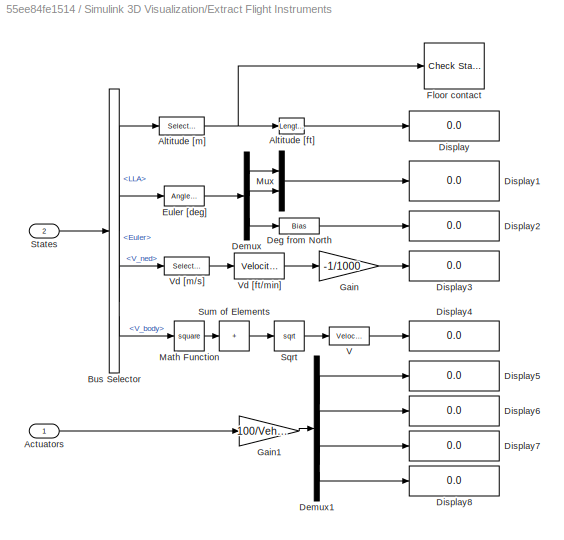
BLOCK [SubSystem] Simulink 3D Visualization/Extract Flight Instruments
BLOCK [Inport] Simulink 3D Visualization/Extract Flight Instruments/Actuators
BLOCK [Reference] Simulink 3D Visualization/Extract Flight Instruments/Altitude [ft]  REF=aerolibconvert2/Length Conversion
  SourceBlock = aerolibconvert2/Length Conversion
  SourceType = Length Conversion
BLOCK [Selector] Simulink 3D Visualization/Extract Flight Instruments/Altitude [m]
  IndexOptions = Index vector (dialog)
  Indices = [3]
  InputPortWidth = 3
  OutputSizes = 1
BLOCK [BusSelector] Simulink 3D Visualization/Extract Flight Instruments/Bus Selector
  OutputSignals = LLA,Euler,V_ned,V_body
BLOCK [Bias] Simulink 3D Visualization/Extract Flight Instruments/Deg from North
  Bias = Vehicle.PositionOnEarth.FlatEarthToLLA.xAxis
  SaturateOnIntegerOverflow = off
BLOCK [Demux] Simulink 3D Visualization/Extract Flight Instruments/Demux
  Outputs = 3
BLOCK [Demux] Simulink 3D Visualization/Extract Flight Instruments/Demux1
BLOCK [Display] Simulink 3D Visualization/Extract Flight Instruments/Display
  Decimation = 1
BLOCK [Display] Simulink 3D Visualization/Extract Flight Instruments/Display1
  Decimation = 1
BLOCK [Display] Simulink 3D Visualization/Extract Flight Instruments/Display2
  Decimation = 1
BLOCK [Display] Simulink 3D Visualization/Extract Flight Instruments/Display3
  Decimation = 1
BLOCK [Display] Simulink 3D Visualization/Extract Flight Instruments/Display4
  Decimation = 1
BLOCK [Display] Simulink 3D Visualization/Extract Flight Instruments/Display5
  Decimation = 1
BLOCK [Display] Simulink 3D Visualization/Extract Flight Instruments/Display6
  Decimation = 1
BLOCK [Display] Simulink 3D Visualization/Extract Flight Instruments/Display7
  Decimation = 1
BLOCK [Display] Simulink 3D Visualization/Extract Flight Instruments/Display8
  Decimation = 1
BLOCK [Reference] Simulink 3D Visualization/Extract Flight Instruments/Euler [deg]  REF=aerolibconvert2/Angle Conversion
  SourceBlock = aerolibconvert2/Angle Conversion
  SourceType = Angle Conversion
BLOCK [Reference] Simulink 3D Visualization/Extract Flight Instruments/Floor contact  REF=simulink/Model
Verification/Check Static 
Lower Bound
  Description = init.posLLA(3) <= u
  SourceBlock = simulink/Model\nVerification/Check Static \nLower Bound
  SourceType = Checks_SMin
BLOCK [Gain] Simulink 3D Visualization/Extract Flight Instruments/Gain
  Gain = -1/1000
BLOCK [Gain] Simulink 3D Visualization/Extract Flight Instruments/Gain1
  Gain = 100/Vehicle.Motor.maxLimit*[1 -1 1 -1]
BLOCK [Math] Simulink 3D Visualization/Extract Flight Instruments/Math Function
  Operator = square
  SignedPower = on
BLOCK [Mux] Simulink 3D Visualization/Extract Flight Instruments/Mux
  DisplayOption = bar
  Inputs = 2
BLOCK [Sqrt] Simulink 3D Visualization/Extract Flight Instruments/Sqrt
BLOCK [Inport] Simulink 3D Visualization/Extract Flight Instruments/States
  Port = 2
BLOCK [Sum] Simulink 3D Visualization/Extract Flight Instruments/Sum of Elements
  IconShape = rectangular
  Inputs = +
BLOCK [Reference] Simulink 3D Visualization/Extract Flight Instruments/V  REF=aerolibconvert2/Velocity Conversion
  SourceBlock = aerolibconvert2/Velocity Conversion
  SourceType = Velocity Conversion
BLOCK [Reference] Simulink 3D Visualization/Extract Flight Instruments/Vd [ft//min]  REF=aerolibconvert2/Velocity Conversion
  SourceBlock = aerolibconvert2/Velocity Conversion
  SourceType = Velocity Conversion
BLOCK [Selector] Simulink 3D Visualization/Extract Flight Instruments/Vd [m//s]
  IndexOptions = Index vector (dialog)
  Indices = [3]
  InputPortWidth = 3
  OutputSizes = 1
BLOCK [SubSystem] Simulink 3D Visualization/Simulink 3D
  VariantControl = VSS_VISUALIZATION_SL3D
BLOCK [Inport] Simulink 3D Visualization/Simulink 3D/Actuators
  Port = 2
BLOCK [SubSystem] Simulink 3D Visualization/Simulink 3D/Axes to VR Axes
BLOCK [SubSystem] Simulink 3D Visualization/Simulink 3D/Axes to VR Axes Camera Chase
BLOCK [Demux] Simulink 3D Visualization/Simulink 3D/Axes to VR Axes Camera Chase/Demux
  DisplayOption = none
  Outputs = 3
BLOCK [Mux] Simulink 3D Visualization/Simulink 3D/Axes to VR Axes Camera Chase/Mux
  DisplayOption = bar
  Inputs = 3
BLOCK [Inport] Simulink 3D Visualization/Simulink 3D/Axes to VR Axes Camera Chase/Xe
BLOCK [Outport] Simulink 3D Visualization/Simulink 3D/Axes to VR Axes Camera Chase/Xe VR
  VectorParamsAs1DForOutWhenUnconnected = off
BLOCK [Gain] Simulink 3D Visualization/Simulink 3D/Axes to VR Axes Camera Chase/rad-->deg1
  Gain = -1
  NameLocation = top
  OutDataTypeStr = Inherit: Same as input
  ParamDataTypeStr = Inherit: Same as input
  SaturateOnIntegerOverflow = on
BLOCK [SubSystem] Simulink 3D Visualization/Simulink 3D/Axes to VR Axes Camera Iso
BLOCK [Demux] Simulink 3D Visualization/Simulink 3D/Axes to VR Axes Camera Iso/Demux
  DisplayOption = none
  Outputs = 3
BLOCK [Mux] Simulink 3D Visualization/Simulink 3D/Axes to VR Axes Camera Iso/Mux
  DisplayOption = bar
  Inputs = 3
BLOCK [Inport] Simulink 3D Visualization/Simulink 3D/Axes to VR Axes Camera Iso/Xe
BLOCK [Outport] Simulink 3D Visualization/Simulink 3D/Axes to VR Axes Camera Iso/Xe VR
  VectorParamsAs1DForOutWhenUnconnected = off
BLOCK [Gain] Simulink 3D Visualization/Simulink 3D/Axes to VR Axes Camera Iso/rad-->deg1
  Gain = -1
  NameLocation = top
  OutDataTypeStr = Inherit: Same as input
  ParamDataTypeStr = Inherit: Same as input
  SaturateOnIntegerOverflow = on
BLOCK [Demux] Simulink 3D Visualization/Simulink 3D/Axes to VR Axes/Demux
  DisplayOption = none
  Outputs = 3
BLOCK [Mux] Simulink 3D Visualization/Simulink 3D/Axes to VR Axes/Mux
  DisplayOption = bar
  Inputs = 3
BLOCK [Inport] Simulink 3D Visualization/Simulink 3D/Axes to VR Axes/Xe
BLOCK [Outport] Simulink 3D Visualization/Simulink 3D/Axes to VR Axes/Xe VR
  VectorParamsAs1DForOutWhenUnconnected = off
BLOCK [Gain] Simulink 3D Visualization/Simulink 3D/Axes to VR Axes/rad-->deg1
  Gain = -1
  NameLocation = top
  OutDataTypeStr = Inherit: Same as input
  ParamDataTypeStr = Inherit: Same as input
  SaturateOnIntegerOverflow = on
BLOCK [Reference] Simulink 3D Visualization/Simulink 3D/Boundary Collision Detection   REF=vrlib/VR Source
  InstantiateOnLoad = on
  SourceBlock = vrlib/VR Source
  SourceType = Virtual Reality Source
BLOCK [BusSelector] Simulink 3D Visualization/Simulink 3D/Bus Selector
  OutputSignals = Euler,X_ned
BLOCK [Bias] Simulink 3D Visualization/Simulink 3D/Camera bias Chase
  Bias = [-4 0 -.9558]'
  SaturateOnIntegerOverflow = off
BLOCK [Bias] Simulink 3D Visualization/Simulink 3D/Camera bias Iso
  Bias = [0.9009 .99 -.6247]'
  SaturateOnIntegerOverflow = off
BLOCK [SubSystem] Simulink 3D Visualization/Simulink 3D/Euler to VR
BLOCK [Outport] Simulink 3D Visualization/Simulink 3D/Euler to VR/Axis Angle
  VectorParamsAs1DForOutWhenUnconnected = off
BLOCK [SubSystem] Simulink 3D Visualization/Simulink 3D/Euler to VR/Axis Angle Vector
BLOCK [Gain] Simulink 3D Visualization/Simulink 3D/Euler to VR/Axis Angle Vector/2
  Gain = 2
  OutDataTypeStr = Inherit: Same as input
  ParamDataTypeStr = Inherit: Same as input
  SaturateOnIntegerOverflow = on
BLOCK [Constant] Simulink 3D Visualization/Simulink 3D/Euler to VR/Axis Angle Vector/Constant
  Value = 1e-6
BLOCK [Demux] Simulink 3D Visualization/Simulink 3D/Euler to VR/Axis Angle Vector/Demux
  DisplayOption = none
  Outputs = [1 3 ]
BLOCK [Mux] Simulink 3D Visualization/Simulink 3D/Euler to VR/Axis Angle Vector/Mux
  DisplayOption = bar
  Inputs = 2
BLOCK [Product] Simulink 3D Visualization/Simulink 3D/Euler to VR/Axis Angle Vector/Product
  InputSameDT = on
  Inputs = */
  OutDataTypeStr = Inherit: Same as first input
  SaturateOnIntegerOverflow = on
BLOCK [Switch] Simulink 3D Visualization/Simulink 3D/Euler to VR/Axis Angle Vector/Switch
  Criteria = u2 ~= 0
  InputSameDT = off
  SaturateOnIntegerOverflow = off
BLOCK [Trigonometry] Simulink 3D Visualization/Simulink 3D/Euler to VR/Axis Angle Vector/Trigonometric Function
BLOCK [Trigonometry] Simulink 3D Visualization/Simulink 3D/Euler to VR/Axis Angle Vector/Trigonometric Function2
  Operator = acos
BLOCK [Inport] Simulink 3D Visualization/Simulink 3D/Euler to VR/Axis Angle Vector/e0
BLOCK [Outport] Simulink 3D Visualization/Simulink 3D/Euler to VR/Axis Angle Vector/e0_norm
  VectorParamsAs1DForOutWhenUnconnected = off
BLOCK [Inport] Simulink 3D Visualization/Simulink 3D/Euler to VR/Euler Angles
BLOCK [Mux] Simulink 3D Visualization/Simulink 3D/Euler to VR/Mux
  DisplayOption = bar
  Inputs = 2
BLOCK [Mux] Simulink 3D Visualization/Simulink 3D/Euler to VR/Mux1
  DisplayOption = bar
  Inputs = 2
BLOCK [Mux] Simulink 3D Visualization/Simulink 3D/Euler to VR/Mux2
  DisplayOption = bar
  Inputs = 2
BLOCK [Reference] Simulink 3D Visualization/Simulink 3D/Euler to VR/Quaternion Multiplication (Pitch & Yaw)  REF=aerolibutil/Quaternion
Multiplication
  SourceBlock = aerolibutil/Quaternion\nMultiplication
  SourceType = Quaternion Multiplication
BLOCK [Reference] Simulink 3D Visualization/Simulink 3D/Euler to VR/Quaternion Multiplication (Roll)  REF=aerolibutil/Quaternion
Multiplication
  SourceBlock = aerolibutil/Quaternion\nMultiplication
  SourceType = Quaternion Multiplication
BLOCK [SubSystem] Simulink 3D Visualization/Simulink 3D/Euler to VR/Quaternion Normalization
BLOCK [Gain] Simulink 3D Visualization/Simulink 3D/Euler to VR/Quaternion Normalization/1//2
  Gain = 1/2
  OutDataTypeStr = Inherit: Same as input
  ParamDataTypeStr = Inherit: Same as input
  SaturateOnIntegerOverflow = on
BLOCK [Demux] Simulink 3D Visualization/Simulink 3D/Euler to VR/Quaternion Normalization/Demux
  DisplayOption = none
  Outputs = [1 3]
BLOCK [Mux] Simulink 3D Visualization/Simulink 3D/Euler to VR/Quaternion Normalization/Mux
  DisplayOption = bar
  Inputs = 2
BLOCK [Product] Simulink 3D Visualization/Simulink 3D/Euler to VR/Quaternion Normalization/Product
  InputSameDT = on
  OutDataTypeStr = Inherit: Same as first input
  SaturateOnIntegerOverflow = on
BLOCK [Trigonometry] Simulink 3D Visualization/Simulink 3D/Euler to VR/Quaternion Normalization/Trigonometric Function
BLOCK [Trigonometry] Simulink 3D Visualization/Simulink 3D/Euler to VR/Quaternion Normalization/Trigonometric Function1
  Operator = cos
BLOCK [Inport] Simulink 3D Visualization/Simulink 3D/Euler to VR/Quaternion Normalization/e0
BLOCK [Outport] Simulink 3D Visualization/Simulink 3D/Euler to VR/Quaternion Normalization/e0_norm
  VectorParamsAs1DForOutWhenUnconnected = off
BLOCK [SubSystem] Simulink 3D Visualization/Simulink 3D/Euler to VR/Quaternion Normalization1
BLOCK [Gain] Simulink 3D Visualization/Simulink 3D/Euler to VR/Quaternion Normalization1/1//2
  Gain = 1/2
  OutDataTypeStr = Inherit: Same as input
  ParamDataTypeStr = Inherit: Same as input
  SaturateOnIntegerOverflow = on
BLOCK [Demux] Simulink 3D Visualization/Simulink 3D/Euler to VR/Quaternion Normalization1/Demux
  DisplayOption = none
  Outputs = [1 3]
BLOCK [Mux] Simulink 3D Visualization/Simulink 3D/Euler to VR/Quaternion Normalization1/Mux
  DisplayOption = bar
  Inputs = 2
BLOCK [Product] Simulink 3D Visualization/Simulink 3D/Euler to VR/Quaternion Normalization1/Product
  InputSameDT = on
  OutDataTypeStr = Inherit: Same as first input
  SaturateOnIntegerOverflow = on
BLOCK [Trigonometry] Simulink 3D Visualization/Simulink 3D/Euler to VR/Quaternion Normalization1/Trigonometric Function
BLOCK [Trigonometry] Simulink 3D Visualization/Simulink 3D/Euler to VR/Quaternion Normalization1/Trigonometric Function1
  Operator = cos
BLOCK [Inport] Simulink 3D Visualization/Simulink 3D/Euler to VR/Quaternion Normalization1/e0
BLOCK [Outport] Simulink 3D Visualization/Simulink 3D/Euler to VR/Quaternion Normalization1/e0_norm
  VectorParamsAs1DForOutWhenUnconnected = off
BLOCK [SubSystem] Simulink 3D Visualization/Simulink 3D/Euler to VR/Quaternion Normalization2
BLOCK [Gain] Simulink 3D Visualization/Simulink 3D/Euler to VR/Quaternion Normalization2/1//2
  Gain = 1/2
  OutDataTypeStr = Inherit: Same as input
  ParamDataTypeStr = Inherit: Same as input
  SaturateOnIntegerOverflow = on
BLOCK [Demux] Simulink 3D Visualization/Simulink 3D/Euler to VR/Quaternion Normalization2/Demux
  DisplayOption = none
  Outputs = [1 3]
BLOCK [Mux] Simulink 3D Visualization/Simulink 3D/Euler to VR/Quaternion Normalization2/Mux
  DisplayOption = bar
  Inputs = 2
BLOCK [Product] Simulink 3D Visualization/Simulink 3D/Euler to VR/Quaternion Normalization2/Product
  InputSameDT = on
  OutDataTypeStr = Inherit: Same as first input
  SaturateOnIntegerOverflow = on
BLOCK [Trigonometry] Simulink 3D Visualization/Simulink 3D/Euler to VR/Quaternion Normalization2/Trigonometric Function
BLOCK [Trigonometry] Simulink 3D Visualization/Simulink 3D/Euler to VR/Quaternion Normalization2/Trigonometric Function1
  Operator = cos
BLOCK [Inport] Simulink 3D Visualization/Simulink 3D/Euler to VR/Quaternion Normalization2/e0
BLOCK [Outport] Simulink 3D Visualization/Simulink 3D/Euler to VR/Quaternion Normalization2/e0_norm
  VectorParamsAs1DForOutWhenUnconnected = off
BLOCK [Selector] Simulink 3D Visualization/Simulink 3D/Euler to VR/Selector
  IndexOptions = Index vector (dialog)
  Indices = [3]
  InputPortWidth = 3
  OutputSizes = 1
BLOCK [Selector] Simulink 3D Visualization/Simulink 3D/Euler to VR/Selector1
  IndexOptions = Index vector (dialog)
  Indices = [2]
  InputPortWidth = 3
  OutputSizes = 1
BLOCK [Selector] Simulink 3D Visualization/Simulink 3D/Euler to VR/Selector2
  IndexOptions = Index vector (dialog)
  Indices = [1]
  InputPortWidth = 3
  OutputSizes = 1
BLOCK [Constant] Simulink 3D Visualization/Simulink 3D/Euler to VR/Vr Pitch Axes
  NameLocation = top
  Value = [0 0 1]
BLOCK [Constant] Simulink 3D Visualization/Simulink 3D/Euler to VR/Vr Roll Axes
  NameLocation = top
  Value = [1 0 0]
BLOCK [Constant] Simulink 3D Visualization/Simulink 3D/Euler to VR/Vr Yaw Axes
  Value = [0 -1 0]
BLOCK [Logic] Simulink 3D Visualization/Simulink 3D/Logical Operator
  AllPortsSameDT = off
  Operator = NOT
  OutDataTypeStr = boolean
BLOCK [RateTransition] Simulink 3D Visualization/Simulink 3D/Rate Transition
BLOCK [RateTransition] Simulink 3D Visualization/Simulink 3D/Rate Transition1
BLOCK [RateTransition] Simulink 3D Visualization/Simulink 3D/Rate Transition2
BLOCK [RateTransition] Simulink 3D Visualization/Simulink 3D/Rate Transition3
BLOCK [Inport] Simulink 3D Visualization/Simulink 3D/States
BLOCK [Assertion] Simulink 3D Visualization/Simulink 3D/Stop Simulation
  AssertionFailFcn = error('The model has stopped as the drone hit the boundary.')
BLOCK [SubSystem] Simulink 3D Visualization/Simulink 3D/Subsystem
BLOCK [Inport] Simulink 3D Visualization/Simulink 3D/Subsystem/Actuators
BLOCK [Bias] Simulink 3D Visualization/Simulink 3D/Subsystem/Bias
  Bias = .1
  SaturateOnIntegerOverflow = off
BLOCK [Bias] Simulink 3D Visualization/Simulink 3D/Subsystem/Bias1
  Bias = -.3
  SaturateOnIntegerOverflow = off
BLOCK [Bias] Simulink 3D Visualization/Simulink 3D/Subsystem/Bias2
  Bias = .5
  SaturateOnIntegerOverflow = off
BLOCK [Bias] Simulink 3D Visualization/Simulink 3D/Subsystem/Bias3
  Bias = .7
  SaturateOnIntegerOverflow = off
BLOCK [Constant] Simulink 3D Visualization/Simulink 3D/Subsystem/Constant
  Value = [0 1 0]
BLOCK [DataTypeConversion] Simulink 3D Visualization/Simulink 3D/Subsystem/Data Type Conversion
  OutDataTypeStr = double
  RndMeth = Floor
  SaturateOnIntegerOverflow = off
BLOCK [Demux] Simulink 3D Visualization/Simulink 3D/Subsystem/Demux
BLOCK [Gain] Simulink 3D Visualization/Simulink 3D/Subsystem/Gain
  Gain = -Vehicle.Motor.commandToW2Gain
BLOCK [Integrator] Simulink 3D Visualization/Simulink 3D/Subsystem/Integrator
  InitialCondition = [.1  .2 -.3 -.4]
  WrapState = on
  WrappedStateLowerValue = -2*pi
  WrappedStateUpperValue = 2*pi
BLOCK [Mux] Simulink 3D Visualization/Simulink 3D/Subsystem/Mux
  DisplayOption = bar
  Inputs = 2
BLOCK [Mux] Simulink 3D Visualization/Simulink 3D/Subsystem/Mux1
  DisplayOption = bar
  Inputs = 2
BLOCK [Mux] Simulink 3D Visualization/Simulink 3D/Subsystem/Mux2
  DisplayOption = bar
  Inputs = 2
BLOCK [Mux] Simulink 3D Visualization/Simulink 3D/Subsystem/Mux3
  DisplayOption = bar
  Inputs = 2
BLOCK [Outport] Simulink 3D Visualization/Simulink 3D/Subsystem/Position Blade 2
  Port = 2
  VectorParamsAs1DForOutWhenUnconnected = off
BLOCK [Outport] Simulink 3D Visualization/Simulink 3D/Subsystem/Position Blade 3
  Port = 3
  VectorParamsAs1DForOutWhenUnconnected = off
BLOCK [Outport] Simulink 3D Visualization/Simulink 3D/Subsystem/Position Blade 4
  Port = 4
  VectorParamsAs1DForOutWhenUnconnected = off
BLOCK [Outport] Simulink 3D Visualization/Simulink 3D/Subsystem/Position Blade1
  VectorParamsAs1DForOutWhenUnconnected = off
BLOCK [RateTransition] Simulink 3D Visualization/Simulink 3D/Subsystem/Rate Transition2
BLOCK [Gain] Simulink 3D Visualization/Simulink 3D/Subsystem/Visualization Gain
  Gain = .0001
BLOCK [Reference] Simulink 3D Visualization/Simulink 3D/VR Sink  REF=vrlib/VR Sink
  InstantiateOnLoad = on
  SourceBlock = vrlib/VR Sink
  SourceType = Virtual Reality Sink
BLOCK [Inport] Simulink 3D Visualization/States
  Port = 2
BLOCK [SubSystem] Stop Simulation
BLOCK [Reference] Stop Simulation/Compare To Zero  REF=simulink/Logic and Bit
Operations/Compare
To Zero
  SourceBlock = simulink/Logic and Bit\nOperations/Compare\nTo Zero
  SourceType = Compare To Zero
BLOCK [Assertion] Stop Simulation/Flag has been triggered
BLOCK [Inport] Stop Simulation/Flags
  OutDataTypeStr = uint8
BLOCK [Logic] Stop Simulation/Logical Operator
  AllPortsSameDT = off
  Operator = NOT
  OutDataTypeStr = boolean
ANNOTATION (root): <copyright redacted>
ANNOTATION (root): Flight Commands
ANNOTATION (root): Flight Control System - Code Generation
ANNOTATION (root): Flight Visualization
ANNOTATION (root): Quadcopter Flight Simulation Model - Mambo
ANNOTATION (root): Simulation Model
ANNOTATION Command: VSS_COMMAND = 0 will select Signal Builder VSS_COMMAND =1 will select Joystick + Signal Builder VSS_COMMAND = 2 will select pre-saved data from .mat file VSS_COMMAND = 3 will select pre-saved data from a spreadsheet
ANNOTATION Environment Model: VSS_ENVIRONMENT = 0 will select constant environment variables VSS_ENVIRONMENT = 1 will select environment variables depending on position
ANNOTATION Multicopter Model: VSS_VEHICLE = 0 will select linear airframe VSS_VEHICLE = 1 will select nonlnear airframe
ANNOTATION Sensors Model: VSS_SENSORS = 0 will select feedthrough sensors VSS_SENSORS = 1 will select dynamics sensors with noise
ANNOTATION Sensors Model/Sensors (Dynamics)/Sensor System/Camera: This is a crude simulation of "optical flow" (vx,vy,vz) as fed into the c-function rsedu_optical_flow() on the Rolling Spider by internal, inaccessible code of Parrot's firmware. This is assumed to be far from what "optical flow (vx,vy,vz)" actually is!
ANNOTATION Sensors Model/Sensors (Feedthrough)/Sensor System/Camera: This is a crude simulation of "optical flow" (vx,vy,vz) as fed into the c-function rsedu_optical_flow() on the Rolling Spider by internal, inaccessible code of Parrot's firmware. This is assumed to be far from what "optical flow (vx,vy,vz)" actually is!
LINE Command/Data/Bus Creator:1 -> Command/Data/AC Cmd:1
LINE Command/Data/Clock:1 -> Command/Data/Compare To Constant:1
LINE Command/Data/Compare To Constant:1 -> Command/Data/Rate Transition3:1
LINE Command/Data/Compare To Zero1:1 -> Command/Data/Logical Operator:2
LINE Command/Data/Compare To Zero:1 -> Command/Data/Logical Operator:1
LINE Command/Data/Data Type Conversion1:1 -> Command/Data/Rate Transition2:1
LINE Command/Data/Data Type Conversion3:1 -> Command/Data/Rate Transition1:1
LINE Command/Data/Demux:1 -> Command/Data/Mux1:1
LINE Command/Data/Demux:2 -> Command/Data/Mux1:2
LINE Command/Data/Demux:3 -> Command/Data/Mux1:3
LINE Command/Data/Demux:4 -> Command/Data/Mux:1
NET Command/Data/Demux:5 -> Command/Data/Compare To Zero1:1, Command/Data/Mux:2
NET Command/Data/Demux:6 -> Command/Data/Compare To Zero:1, Command/Data/Mux:3
LINE Command/Data/From File:1 -> Command/Data/Demux:1
LINE Command/Data/Live Time Ticks:1 -> Command/Data/Bus Creator:5
LINE Command/Data/Logical Operator:1 -> Command/Data/Rate Transition4:1
LINE Command/Data/Mux1:1 -> Command/Data/Data Type Conversion1:1
LINE Command/Data/Mux:1 -> Command/Data/Data Type Conversion3:1
LINE Command/Data/Rate Transition1:1 -> Command/Data/Bus Creator:4
LINE Command/Data/Rate Transition2:1 -> Command/Data/Bus Creator:2
LINE Command/Data/Rate Transition3:1 -> Command/Data/Bus Creator:3
LINE Command/Data/Rate Transition4:1 -> Command/Data/Bus Creator:1
LINE Command/Joystick/Bus Creator:1 -> Command/Joystick/AC Cmd:1
LINE Command/Joystick/Clock:1 -> Command/Joystick/Compare To Constant:1
LINE Command/Joystick/Compare To Constant:1 -> Command/Joystick/Rate Transition3:1
LINE Command/Joystick/Constant:1 -> Command/Joystick/Rate Transition4:1
LINE Command/Joystick/Data Type Conversion1:1 -> Command/Joystick/Rate Transition2:1
LINE Command/Joystick/Data Type Conversion3:1 -> Command/Joystick/Rate Transition1:1
LINE Command/Joystick/Dead Zone1:1 -> Command/Joystick/Saturation1:1
LINE Command/Joystick/Dead Zone2:1 -> Command/Joystick/Saturation2:1
LINE Command/Joystick/Dead Zone:1 -> Command/Joystick/Saturation:1
LINE Command/Joystick/Gain1:1 -> Command/Joystick/Mux:2
LINE Command/Joystick/Gain2:1 -> Command/Joystick/Mux:3
LINE Command/Joystick/Gain:1 -> Command/Joystick/Mux:1
LINE Command/Joystick/Integrator:1 -> Command/Joystick/Gain2:1
LINE Command/Joystick/Live Time Ticks:1 -> Command/Joystick/Bus Creator:5
LINE Command/Joystick/Mux1:1 -> Command/Joystick/Data Type Conversion1:1
LINE Command/Joystick/Mux:1 -> Command/Joystick/Selector:1
LINE Command/Joystick/Pilot Joystick:1 -> Command/Joystick/Dead Zone:1
LINE Command/Joystick/Pilot Joystick:2 -> Command/Joystick/Dead Zone1:1
LINE Command/Joystick/Pilot Joystick:3 -> Command/Joystick/Dead Zone2:1
LINE Command/Joystick/Pilot Joystick:4 -> Command/Joystick/Terminator:1
LINE Command/Joystick/Position Reference:1 -> Command/Joystick/Mux1:1
LINE Command/Joystick/Position Reference:2 -> Command/Joystick/Mux1:2
LINE Command/Joystick/Position Reference:3 -> Command/Joystick/Mux1:3
LINE Command/Joystick/Rate Transition1:1 -> Command/Joystick/Bus Creator:4
LINE Command/Joystick/Rate Transition2:1 -> Command/Joystick/Bus Creator:2
LINE Command/Joystick/Rate Transition3:1 -> Command/Joystick/Bus Creator:3
LINE Command/Joystick/Rate Transition4:1 -> Command/Joystick/Bus Creator:1
LINE Command/Joystick/Saturation1:1 -> Command/Joystick/Gain1:1
LINE Command/Joystick/Saturation2:1 -> Command/Joystick/Integrator:1
LINE Command/Joystick/Saturation:1 -> Command/Joystick/Gain:1
LINE Command/Joystick/Selector:1 -> Command/Joystick/Data Type Conversion3:1
LINE Command/Signal Builder/Bus Creator:1 -> Command/Signal Builder/AC Cmd:1
LINE Command/Signal Builder/Clock:1 -> Command/Signal Builder/Compare To Constant:1
LINE Command/Signal Builder/Compare To Constant:1 -> Command/Signal Builder/Rate Transition3:1
LINE Command/Signal Builder/Compare To Zero1:1 -> Command/Signal Builder/Logical Operator:2
LINE Command/Signal Builder/Compare To Zero:1 -> Command/Signal Builder/Logical Operator:1
LINE Command/Signal Builder/Data Type Conversion1:1 -> Command/Signal Builder/Rate Transition2:1
LINE Command/Signal Builder/Data Type Conversion3:1 -> Command/Signal Builder/Rate Transition1:1
LINE Command/Signal Builder/Live Time Ticks:1 -> Command/Signal Builder/Bus Creator:5
LINE Command/Signal Builder/Logical Operator:1 -> Command/Signal Builder/Rate Transition4:1
LINE Command/Signal Builder/Mux1:1 -> Command/Signal Builder/Data Type Conversion1:1
LINE Command/Signal Builder/Mux:1 -> Command/Signal Builder/Data Type Conversion3:1
LINE Command/Signal Builder/Position//Attitude Reference:1 -> Command/Signal Builder/Mux1:1
LINE Command/Signal Builder/Position//Attitude Reference:2 -> Command/Signal Builder/Mux1:2
LINE Command/Signal Builder/Position//Attitude Reference:3 -> Command/Signal Builder/Mux1:3
LINE Command/Signal Builder/Position//Attitude Reference:4 -> Command/Signal Builder/Mux:1
NET Command/Signal Builder/Position//Attitude Reference:5 -> Command/Signal Builder/Compare To Zero1:1, Command/Signal Builder/Mux:2
NET Command/Signal Builder/Position//Attitude Reference:6 -> Command/Signal Builder/Compare To Zero:1, Command/Signal Builder/Mux:3
LINE Command/Signal Builder/Rate Transition1:1 -> Command/Signal Builder/Bus Creator:4
LINE Command/Signal Builder/Rate Transition2:1 -> Command/Signal Builder/Bus Creator:2
LINE Command/Signal Builder/Rate Transition3:1 -> Command/Signal Builder/Bus Creator:3
LINE Command/Signal Builder/Rate Transition4:1 -> Command/Signal Builder/Bus Creator:1
LINE Command/Spreadsheet Data/Bus Creator:1 -> Command/Spreadsheet Data/AC Cmd:1
LINE Command/Spreadsheet Data/Clock:1 -> Command/Spreadsheet Data/Compare To Constant:1
LINE Command/Spreadsheet Data/Compare To Constant:1 -> Command/Spreadsheet Data/Rate Transition3:1
LINE Command/Spreadsheet Data/Compare To Zero1:1 -> Command/Spreadsheet Data/Logical Operator:2
LINE Command/Spreadsheet Data/Compare To Zero:1 -> Command/Spreadsheet Data/Logical Operator:1
LINE Command/Spreadsheet Data/Data Type Conversion1:1 -> Command/Spreadsheet Data/Rate Transition2:1
LINE Command/Spreadsheet Data/Data Type Conversion3:1 -> Command/Spreadsheet Data/Rate Transition1:1
LINE Command/Spreadsheet Data/From Spreadsheet:1 -> Command/Spreadsheet Data/Mux1:1
LINE Command/Spreadsheet Data/From Spreadsheet:2 -> Command/Spreadsheet Data/Mux1:2
LINE Command/Spreadsheet Data/From Spreadsheet:3 -> Command/Spreadsheet Data/Mux1:3
LINE Command/Spreadsheet Data/From Spreadsheet:4 -> Command/Spreadsheet Data/Mux:1
NET Command/Spreadsheet Data/From Spreadsheet:5 -> Command/Spreadsheet Data/Compare To Zero1:1, Command/Spreadsheet Data/Mux:2
NET Command/Spreadsheet Data/From Spreadsheet:6 -> Command/Spreadsheet Data/Compare To Zero:1, Command/Spreadsheet Data/Mux:3
LINE Command/Spreadsheet Data/Live Time Ticks:1 -> Command/Spreadsheet Data/Bus Creator:5
LINE Command/Spreadsheet Data/Logical Operator:1 -> Command/Spreadsheet Data/Rate Transition4:1
LINE Command/Spreadsheet Data/Mux1:1 -> Command/Spreadsheet Data/Data Type Conversion1:1
LINE Command/Spreadsheet Data/Mux:1 -> Command/Spreadsheet Data/Data Type Conversion3:1
LINE Command/Spreadsheet Data/Rate Transition1:1 -> Command/Spreadsheet Data/Bus Creator:4
LINE Command/Spreadsheet Data/Rate Transition2:1 -> Command/Spreadsheet Data/Bus Creator:2
LINE Command/Spreadsheet Data/Rate Transition3:1 -> Command/Spreadsheet Data/Bus Creator:3
LINE Command/Spreadsheet Data/Rate Transition4:1 -> Command/Spreadsheet Data/Bus Creator:1
LINE Command:1 -> Flight Control System:1
NET Environment Model:1 -> Multicopter Model:2, Sensors Model:1
NET Flight Control System:1 -> Multicopter Model:1, Simulink 3D Visualization:1
LINE Flight Control System:2 -> Stop Simulation:1
NET Multicopter Model:1 -> Environment Model:1, Sensors Model:2, Simulink 3D Visualization:2
LINE Sensors Model/Sensors (Dynamics)/Bus Creator1:1 -> Sensors Model/Sensors (Dynamics)/Sensors:1
LINE Sensors Model/Sensors (Dynamics)/Bus Creator2:1 -> Sensors Model/Sensors (Dynamics)/Bus Creator1:1
LINE Sensors Model/Sensors (Dynamics)/Constant:1 -> Sensors Model/Sensors (Dynamics)/Bus Creator1:3
LINE Sensors Model/Sensors (Dynamics)/Environment:1 -> Sensors Model/Sensors (Dynamics)/Sensor System:2
LINE Sensors Model/Sensors (Dynamics)/Memory1:1 -> Sensors Model/Sensors (Dynamics)/Sensor System:1
LINE Sensors Model/Sensors (Dynamics)/Sensor System/Camera/Add1:1 -> Sensors Model/Sensors (Dynamics)/Sensor System/Camera/Divide:1
NET Sensors Model/Sensors (Dynamics)/Sensor System/Camera/Bus Selector1:1 -> Sensors Model/Sensors (Dynamics)/Sensor System/Camera/Select dx,dy:1, Sensors Model/Sensors (Dynamics)/Sensor System/Camera/Select dz:1
LINE Sensors Model/Sensors (Dynamics)/Sensor System/Camera/Bus Selector3:1 -> Sensors Model/Sensors (Dynamics)/Sensor System/Camera/Select dz1:1
LINE Sensors Model/Sensors (Dynamics)/Sensor System/Camera/Bus Selector4:1 -> Sensors Model/Sensors (Dynamics)/Sensor System/Camera/Reshape:1
LINE Sensors Model/Sensors (Dynamics)/Sensor System/Camera/Data Type Conversion:1 -> Sensors Model/Sensors (Dynamics)/Sensor System/Camera/opticalFlow_datout:1
LINE Sensors Model/Sensors (Dynamics)/Sensor System/Camera/Demux4:1 -> Sensors Model/Sensors (Dynamics)/Sensor System/Camera/Product:1
LINE Sensors Model/Sensors (Dynamics)/Sensor System/Camera/Demux4:2 -> Sensors Model/Sensors (Dynamics)/Sensor System/Camera/Product1:1
LINE Sensors Model/Sensors (Dynamics)/Sensor System/Camera/Divide:1 -> Sensors Model/Sensors (Dynamics)/Sensor System/Camera/Mux8:1
LINE Sensors Model/Sensors (Dynamics)/Sensor System/Camera/Gain1:1 -> Sensors Model/Sensors (Dynamics)/Sensor System/Camera/Demux4:1
NET Sensors Model/Sensors (Dynamics)/Sensor System/Camera/Gain2:1 -> Sensors Model/Sensors (Dynamics)/Sensor System/Camera/Divide:2, Sensors Model/Sensors (Dynamics)/Sensor System/Camera/Product1:2, Sensors Model/Sensors (Dynamics)/Sensor System/Camera/Product:2
LINE Sensors Model/Sensors (Dynamics)/Sensor System/Camera/Mux7:1 -> Sensors Model/Sensors (Dynamics)/Sensor System/Camera/SwitchPlanarOpticalFlow:1
LINE Sensors Model/Sensors (Dynamics)/Sensor System/Camera/Mux8:1 -> Sensors Model/Sensors (Dynamics)/Sensor System/Camera/VelocityToOpticalFlow_Gain:1
LINE Sensors Model/Sensors (Dynamics)/Sensor System/Camera/On-Board Camera:1 -> Sensors Model/Sensors (Dynamics)/Sensor System/Camera/Rotate:1
LINE Sensors Model/Sensors (Dynamics)/Sensor System/Camera/Product1:1 -> Sensors Model/Sensors (Dynamics)/Sensor System/Camera/Mux7:2
LINE Sensors Model/Sensors (Dynamics)/Sensor System/Camera/Product:1 -> Sensors Model/Sensors (Dynamics)/Sensor System/Camera/Mux7:1
LINE Sensors Model/Sensors (Dynamics)/Sensor System/Camera/RGB to Y1UY2V1/ RGBImage :1 -> Sensors Model/Sensors (Dynamics)/Sensor System/Camera/RGB to Y1UY2V1/Red:1
LINE Sensors Model/Sensors (Dynamics)/Sensor System/Camera/RGB to Y1UY2V1/Blue:1 -> Sensors Model/Sensors (Dynamics)/Sensor System/Camera/RGB to Y1UY2V1/Color Space Conversion:3
LINE Sensors Model/Sensors (Dynamics)/Sensor System/Camera/RGB to Y1UY2V1/Color Space Conversion:1 -> Sensors Model/Sensors (Dynamics)/Sensor System/Camera/RGB to Y1UY2V1/Reshape3:1
LINE Sensors Model/Sensors (Dynamics)/Sensor System/Camera/RGB to Y1UY2V1/Color Space Conversion:2 -> Sensors Model/Sensors (Dynamics)/Sensor System/Camera/RGB to Y1UY2V1/Reshape1:1
LINE Sensors Model/Sensors (Dynamics)/Sensor System/Camera/RGB to Y1UY2V1/Color Space Conversion:3 -> Sensors Model/Sensors (Dynamics)/Sensor System/Camera/RGB to Y1UY2V1/Reshape2:1
LINE Sensors Model/Sensors (Dynamics)/Sensor System/Camera/RGB to Y1UY2V1/Constant1:1 -> Sensors Model/Sensors (Dynamics)/Sensor System/Camera/RGB to Y1UY2V1/y2:2
LINE Sensors Model/Sensors (Dynamics)/Sensor System/Camera/RGB to Y1UY2V1/Constant2:1 -> Sensors Model/Sensors (Dynamics)/Sensor System/Camera/RGB to Y1UY2V1/u:2
LINE Sensors Model/Sensors (Dynamics)/Sensor System/Camera/RGB to Y1UY2V1/Constant3:1 -> Sensors Model/Sensors (Dynamics)/Sensor System/Camera/RGB to Y1UY2V1/v:2
LINE Sensors Model/Sensors (Dynamics)/Sensor System/Camera/RGB to Y1UY2V1/Constant:1 -> Sensors Model/Sensors (Dynamics)/Sensor System/Camera/RGB to Y1UY2V1/y1:2
LINE Sensors Model/Sensors (Dynamics)/Sensor System/Camera/RGB to Y1UY2V1/Green:1 -> Sensors Model/Sensors (Dynamics)/Sensor System/Camera/RGB to Y1UY2V1/Color Space Conversion:2
LINE Sensors Model/Sensors (Dynamics)/Sensor System/Camera/RGB to Y1UY2V1/Matrix Concatenate:1 -> Sensors Model/Sensors (Dynamics)/Sensor System/Camera/RGB to Y1UY2V1/Y1UY2VImage:1
LINE Sensors Model/Sensors (Dynamics)/Sensor System/Camera/RGB to Y1UY2V1/RGBImage :1 -> Sensors Model/Sensors (Dynamics)/Sensor System/Camera/RGB to Y1UY2V1/Blue:1
LINE Sensors Model/Sensors (Dynamics)/Sensor System/Camera/RGB to Y1UY2V1/RGBImage:1 -> Sensors Model/Sensors (Dynamics)/Sensor System/Camera/RGB to Y1UY2V1/Green:1
LINE Sensors Model/Sensors (Dynamics)/Sensor System/Camera/RGB to Y1UY2V1/Red:1 -> Sensors Model/Sensors (Dynamics)/Sensor System/Camera/RGB to Y1UY2V1/Color Space Conversion:1
LINE Sensors Model/Sensors (Dynamics)/Sensor System/Camera/RGB to Y1UY2V1/Reshape1:1 -> Sensors Model/Sensors (Dynamics)/Sensor System/Camera/RGB to Y1UY2V1/u:1
LINE Sensors Model/Sensors (Dynamics)/Sensor System/Camera/RGB to Y1UY2V1/Reshape2:1 -> Sensors Model/Sensors (Dynamics)/Sensor System/Camera/RGB to Y1UY2V1/v:1
NET Sensors Model/Sensors (Dynamics)/Sensor System/Camera/RGB to Y1UY2V1/Reshape3:1 -> Sensors Model/Sensors (Dynamics)/Sensor System/Camera/RGB to Y1UY2V1/y1:1, Sensors Model/Sensors (Dynamics)/Sensor System/Camera/RGB to Y1UY2V1/y2:1
LINE Sensors Model/Sensors (Dynamics)/Sensor System/Camera/RGB to Y1UY2V1/u:1 -> Sensors Model/Sensors (Dynamics)/Sensor System/Camera/RGB to Y1UY2V1/Matrix Concatenate:2
LINE Sensors Model/Sensors (Dynamics)/Sensor System/Camera/RGB to Y1UY2V1/v:1 -> Sensors Model/Sensors (Dynamics)/Sensor System/Camera/RGB to Y1UY2V1/Matrix Concatenate:4
LINE Sensors Model/Sensors (Dynamics)/Sensor System/Camera/RGB to Y1UY2V1/y1:1 -> Sensors Model/Sensors (Dynamics)/Sensor System/Camera/RGB to Y1UY2V1/Matrix Concatenate:1
LINE Sensors Model/Sensors (Dynamics)/Sensor System/Camera/RGB to Y1UY2V1/y2:1 -> Sensors Model/Sensors (Dynamics)/Sensor System/Camera/RGB to Y1UY2V1/Matrix Concatenate:3
LINE Sensors Model/Sensors (Dynamics)/Sensor System/Camera/RGB to Y1UY2V1:1 -> Sensors Model/Sensors (Dynamics)/Sensor System/Camera/image_data:1
LINE Sensors Model/Sensors (Dynamics)/Sensor System/Camera/Reshape:1 -> Sensors Model/Sensors (Dynamics)/Sensor System/Camera/Select dx,dy1:1
LINE Sensors Model/Sensors (Dynamics)/Sensor System/Camera/Rotate:1 -> Sensors Model/Sensors (Dynamics)/Sensor System/Camera/RGB to Y1UY2V1:1
LINE Sensors Model/Sensors (Dynamics)/Sensor System/Camera/Select dx,dy1:1 -> Sensors Model/Sensors (Dynamics)/Sensor System/Camera/Gain1:1
LINE Sensors Model/Sensors (Dynamics)/Sensor System/Camera/Select dx,dy:1 -> Sensors Model/Sensors (Dynamics)/Sensor System/Camera/Add1:1
LINE Sensors Model/Sensors (Dynamics)/Sensor System/Camera/Select dz1:1 -> Sensors Model/Sensors (Dynamics)/Sensor System/Camera/Gain2:1
LINE Sensors Model/Sensors (Dynamics)/Sensor System/Camera/Select dz:1 -> Sensors Model/Sensors (Dynamics)/Sensor System/Camera/Mux8:2
LINE Sensors Model/Sensors (Dynamics)/Sensor System/Camera/SwitchPlanarOpticalFlow:1 -> Sensors Model/Sensors (Dynamics)/Sensor System/Camera/Add1:2
LINE Sensors Model/Sensors (Dynamics)/Sensor System/Camera/VelocityToOpticalFlow_Gain:1 -> Sensors Model/Sensors (Dynamics)/Sensor System/Camera/Data Type Conversion:1
NET Sensors Model/Sensors (Dynamics)/Sensor System/Camera/states:1 -> Sensors Model/Sensors (Dynamics)/Sensor System/Camera/Bus Selector1:1, Sensors Model/Sensors (Dynamics)/Sensor System/Camera/Bus Selector3:1, Sensors Model/Sensors (Dynamics)/Sensor System/Camera/Bus Selector4:1
LINE Sensors Model/Sensors (Dynamics)/Sensor System/Camera:1 -> Sensors Model/Sensors (Dynamics)/Sensor System/Rate Transition1:1
LINE Sensors Model/Sensors (Dynamics)/Sensor System/Camera:2 -> Sensors Model/Sensors (Dynamics)/Sensor System/camera_data:1
LINE Sensors Model/Sensors (Dynamics)/Sensor System/Environment:1 -> Sensors Model/Sensors (Dynamics)/Sensor System/IMU_Pressure:2
LINE Sensors Model/Sensors (Dynamics)/Sensor System/IMU_Pressure/Assumes takeoff was level1:1 -> Sensors Model/Sensors (Dynamics)/Sensor System/IMU_Pressure/Data Type Conversion4:1
LINE Sensors Model/Sensors (Dynamics)/Sensor System/IMU_Pressure/Bus Selector1:1 -> Sensors Model/Sensors (Dynamics)/Sensor System/IMU_Pressure/Product:2
LINE Sensors Model/Sensors (Dynamics)/Sensor System/IMU_Pressure/Bus Selector:1 -> Sensors Model/Sensors (Dynamics)/Sensor System/IMU_Pressure/Three-axis Inertial Measurement Unit:1
LINE Sensors Model/Sensors (Dynamics)/Sensor System/IMU_Pressure/Bus Selector:2 -> Sensors Model/Sensors (Dynamics)/Sensor System/IMU_Pressure/Three-axis Inertial Measurement Unit:2
LINE Sensors Model/Sensors (Dynamics)/Sensor System/IMU_Pressure/Bus Selector:3 -> Sensors Model/Sensors (Dynamics)/Sensor System/IMU_Pressure/Three-axis Inertial Measurement Unit:3
LINE Sensors Model/Sensors (Dynamics)/Sensor System/IMU_Pressure/Bus Selector:4 -> Sensors Model/Sensors (Dynamics)/Sensor System/IMU_Pressure/Product:1
LINE Sensors Model/Sensors (Dynamics)/Sensor System/IMU_Pressure/Bus Selector:5 -> Sensors Model/Sensors (Dynamics)/Sensor System/IMU_Pressure/Selector2:1
LINE Sensors Model/Sensors (Dynamics)/Sensor System/IMU_Pressure/CG location:1 -> Sensors Model/Sensors (Dynamics)/Sensor System/IMU_Pressure/Three-axis Inertial Measurement Unit:4
LINE Sensors Model/Sensors (Dynamics)/Sensor System/IMU_Pressure/Data Type Conversion1:1 -> Sensors Model/Sensors (Dynamics)/Sensor System/IMU_Pressure/HAL_acquisition_creator:1
LINE Sensors Model/Sensors (Dynamics)/Sensor System/IMU_Pressure/Data Type Conversion2:1 -> Sensors Model/Sensors (Dynamics)/Sensor System/IMU_Pressure/Demux2:1
LINE Sensors Model/Sensors (Dynamics)/Sensor System/IMU_Pressure/Data Type Conversion3:1 -> Sensors Model/Sensors (Dynamics)/Sensor System/IMU_Pressure/Mux:7
LINE Sensors Model/Sensors (Dynamics)/Sensor System/IMU_Pressure/Data Type Conversion4:1 -> Sensors Model/Sensors (Dynamics)/Sensor System/IMU_Pressure/Mux:8
LINE Sensors Model/Sensors (Dynamics)/Sensor System/IMU_Pressure/Data Type Conversion:1 -> Sensors Model/Sensors (Dynamics)/Sensor System/IMU_Pressure/Demux:1
LINE Sensors Model/Sensors (Dynamics)/Sensor System/IMU_Pressure/Demux2:1 -> Sensors Model/Sensors (Dynamics)/Sensor System/IMU_Pressure/Mux:4
LINE Sensors Model/Sensors (Dynamics)/Sensor System/IMU_Pressure/Demux2:2 -> Sensors Model/Sensors (Dynamics)/Sensor System/IMU_Pressure/Mux:5
LINE Sensors Model/Sensors (Dynamics)/Sensor System/IMU_Pressure/Demux2:3 -> Sensors Model/Sensors (Dynamics)/Sensor System/IMU_Pressure/Mux:6
LINE Sensors Model/Sensors (Dynamics)/Sensor System/IMU_Pressure/Demux:1 -> Sensors Model/Sensors (Dynamics)/Sensor System/IMU_Pressure/Mux:1
LINE Sensors Model/Sensors (Dynamics)/Sensor System/IMU_Pressure/Demux:2 -> Sensors Model/Sensors (Dynamics)/Sensor System/IMU_Pressure/Mux:2
LINE Sensors Model/Sensors (Dynamics)/Sensor System/IMU_Pressure/Demux:3 -> Sensors Model/Sensors (Dynamics)/Sensor System/IMU_Pressure/Mux:3
LINE Sensors Model/Sensors (Dynamics)/Sensor System/IMU_Pressure/Environment:1 -> Sensors Model/Sensors (Dynamics)/Sensor System/IMU_Pressure/Bus Selector1:1
LINE Sensors Model/Sensors (Dynamics)/Sensor System/IMU_Pressure/HAL_acquisition_creator/Bus Creator4:1 -> Sensors Model/Sensors (Dynamics)/Sensor System/IMU_Pressure/HAL_acquisition_creator/HAL_acquisition_t:1
LINE Sensors Model/Sensors (Dynamics)/Sensor System/IMU_Pressure/HAL_acquisition_creator/Demux3:1 -> Sensors Model/Sensors (Dynamics)/Sensor System/IMU_Pressure/HAL_acquisition_creator/HAL_acc_SI_creator:1
LINE Sensors Model/Sensors (Dynamics)/Sensor System/IMU_Pressure/HAL_acquisition_creator/Demux3:2 -> Sensors Model/Sensors (Dynamics)/Sensor System/IMU_Pressure/HAL_acquisition_creator/HAL_acc_SI_creator:2
LINE Sensors Model/Sensors (Dynamics)/Sensor System/IMU_Pressure/HAL_acquisition_creator/Demux3:3 -> Sensors Model/Sensors (Dynamics)/Sensor System/IMU_Pressure/HAL_acquisition_creator/HAL_acc_SI_creator:3
LINE Sensors Model/Sensors (Dynamics)/Sensor System/IMU_Pressure/HAL_acquisition_creator/Demux3:4 -> Sensors Model/Sensors (Dynamics)/Sensor System/IMU_Pressure/HAL_acquisition_creator/HAL_gyro_SI_creator:1
LINE Sensors Model/Sensors (Dynamics)/Sensor System/IMU_Pressure/HAL_acquisition_creator/Demux3:5 -> Sensors Model/Sensors (Dynamics)/Sensor System/IMU_Pressure/HAL_acquisition_creator/HAL_gyro_SI_creator:2
LINE Sensors Model/Sensors (Dynamics)/Sensor System/IMU_Pressure/HAL_acquisition_creator/Demux3:6 -> Sensors Model/Sensors (Dynamics)/Sensor System/IMU_Pressure/HAL_acquisition_creator/HAL_gyro_SI_creator:3
LINE Sensors Model/Sensors (Dynamics)/Sensor System/IMU_Pressure/HAL_acquisition_creator/Demux3:7 -> Sensors Model/Sensors (Dynamics)/Sensor System/IMU_Pressure/HAL_acquisition_creator/HAL_ultrasound_SI_creator:1
LINE Sensors Model/Sensors (Dynamics)/Sensor System/IMU_Pressure/HAL_acquisition_creator/Demux3:8 -> Sensors Model/Sensors (Dynamics)/Sensor System/IMU_Pressure/HAL_acquisition_creator/HAL_pressure_SI_creator:1
LINE Sensors Model/Sensors (Dynamics)/Sensor System/IMU_Pressure/HAL_acquisition_creator/HAL_acc_SI_creator/Bus Creator:1 -> Sensors Model/Sensors (Dynamics)/Sensor System/IMU_Pressure/HAL_acquisition_creator/HAL_acc_SI_creator/HAL_acc_SI:1
LINE Sensors Model/Sensors (Dynamics)/Sensor System/IMU_Pressure/HAL_acquisition_creator/HAL_acc_SI_creator/temperature:1 -> Sensors Model/Sensors (Dynamics)/Sensor System/IMU_Pressure/HAL_acquisition_creator/HAL_acc_SI_creator/Bus Creator:4
LINE Sensors Model/Sensors (Dynamics)/Sensor System/IMU_Pressure/HAL_acquisition_creator/HAL_acc_SI_creator/x:1 -> Sensors Model/Sensors (Dynamics)/Sensor System/IMU_Pressure/HAL_acquisition_creator/HAL_acc_SI_creator/Bus Creator:1
LINE Sensors Model/Sensors (Dynamics)/Sensor System/IMU_Pressure/HAL_acquisition_creator/HAL_acc_SI_creator/y:1 -> Sensors Model/Sensors (Dynamics)/Sensor System/IMU_Pressure/HAL_acquisition_creator/HAL_acc_SI_creator/Bus Creator:2
LINE Sensors Model/Sensors (Dynamics)/Sensor System/IMU_Pressure/HAL_acquisition_creator/HAL_acc_SI_creator/z:1 -> Sensors Model/Sensors (Dynamics)/Sensor System/IMU_Pressure/HAL_acquisition_creator/HAL_acc_SI_creator/Bus Creator:3
LINE Sensors Model/Sensors (Dynamics)/Sensor System/IMU_Pressure/HAL_acquisition_creator/HAL_acc_SI_creator:1 -> Sensors Model/Sensors (Dynamics)/Sensor System/IMU_Pressure/HAL_acquisition_creator/Bus Creator4:6
LINE Sensors Model/Sensors (Dynamics)/Sensor System/IMU_Pressure/HAL_acquisition_creator/HAL_fifo_fsync:1 -> Sensors Model/Sensors (Dynamics)/Sensor System/IMU_Pressure/HAL_acquisition_creator/Bus Creator4:15
NET Sensors Model/Sensors (Dynamics)/Sensor System/IMU_Pressure/HAL_acquisition_creator/HAL_fifo_gyro_SI_t_creator/Bus Creator:1 -> Sensors Model/Sensors (Dynamics)/Sensor System/IMU_Pressure/HAL_acquisition_creator/HAL_fifo_gyro_SI_t_creator/Vector Concatenate:1, Sensors Model/Sensors (Dynamics)/Sensor System/IMU_Pressure/HAL_acquisition_creator/HAL_fifo_gyro_SI_t_creator/Vector Concatenate:2, Sensors Model/Sensors (Dynamics)/Sensor System/IMU_Pressure/HAL_acquisition_creator/HAL_fifo_gyro_SI_t_creator/Vector Concatenate:3, Sensors Model/Sensors (Dynamics)/Sensor System/IMU_Pressure/HAL_acquisition_creator/HAL_fifo_gyro_SI_t_creator/Vector Concatenate:4, Sensors Model/Sensors (Dynamics)/Sensor System/IMU_Pressure/HAL_acquisition_creator/HAL_fifo_gyro_SI_t_creator/Vector Concatenate:5
LINE Sensors Model/Sensors (Dynamics)/Sensor System/IMU_Pressure/HAL_acquisition_creator/HAL_fifo_gyro_SI_t_creator/Vector Concatenate:1 -> Sensors Model/Sensors (Dynamics)/Sensor System/IMU_Pressure/HAL_acquisition_creator/HAL_fifo_gyro_SI_t_creator/HAL_fifo_gyro_SI_TempCorr:1
LINE Sensors Model/Sensors (Dynamics)/Sensor System/IMU_Pressure/HAL_acquisition_creator/HAL_fifo_gyro_SI_t_creator/z1:1 -> Sensors Model/Sensors (Dynamics)/Sensor System/IMU_Pressure/HAL_acquisition_creator/HAL_fifo_gyro_SI_t_creator/Bus Creator:2
LINE Sensors Model/Sensors (Dynamics)/Sensor System/IMU_Pressure/HAL_acquisition_creator/HAL_fifo_gyro_SI_t_creator/z2:1 -> Sensors Model/Sensors (Dynamics)/Sensor System/IMU_Pressure/HAL_acquisition_creator/HAL_fifo_gyro_SI_t_creator/Bus Creator:1
LINE Sensors Model/Sensors (Dynamics)/Sensor System/IMU_Pressure/HAL_acquisition_creator/HAL_fifo_gyro_SI_t_creator/z:1 -> Sensors Model/Sensors (Dynamics)/Sensor System/IMU_Pressure/HAL_acquisition_creator/HAL_fifo_gyro_SI_t_creator/Bus Creator:3
NET Sensors Model/Sensors (Dynamics)/Sensor System/IMU_Pressure/HAL_acquisition_creator/HAL_fifo_gyro_SI_t_creator1/Bus Creator:1 -> Sensors Model/Sensors (Dynamics)/Sensor System/IMU_Pressure/HAL_acquisition_creator/HAL_fifo_gyro_SI_t_creator1/Vector Concatenate:1, Sensors Model/Sensors (Dynamics)/Sensor System/IMU_Pressure/HAL_acquisition_creator/HAL_fifo_gyro_SI_t_creator1/Vector Concatenate:2, Sensors Model/Sensors (Dynamics)/Sensor System/IMU_Pressure/HAL_acquisition_creator/HAL_fifo_gyro_SI_t_creator1/Vector Concatenate:3, Sensors Model/Sensors (Dynamics)/Sensor System/IMU_Pressure/HAL_acquisition_creator/HAL_fifo_gyro_SI_t_creator1/Vector Concatenate:4, Sensors Model/Sensors (Dynamics)/Sensor System/IMU_Pressure/HAL_acquisition_creator/HAL_fifo_gyro_SI_t_creator1/Vector Concatenate:5
LINE Sensors Model/Sensors (Dynamics)/Sensor System/IMU_Pressure/HAL_acquisition_creator/HAL_fifo_gyro_SI_t_creator1/Vector Concatenate:1 -> Sensors Model/Sensors (Dynamics)/Sensor System/IMU_Pressure/HAL_acquisition_creator/HAL_fifo_gyro_SI_t_creator1/HAL_fifo_acce_SI_TempCorr:1
LINE Sensors Model/Sensors (Dynamics)/Sensor System/IMU_Pressure/HAL_acquisition_creator/HAL_fifo_gyro_SI_t_creator1/x1:1 -> Sensors Model/Sensors (Dynamics)/Sensor System/IMU_Pressure/HAL_acquisition_creator/HAL_fifo_gyro_SI_t_creator1/Bus Creator:2
LINE Sensors Model/Sensors (Dynamics)/Sensor System/IMU_Pressure/HAL_acquisition_creator/HAL_fifo_gyro_SI_t_creator1/x2:1 -> Sensors Model/Sensors (Dynamics)/Sensor System/IMU_Pressure/HAL_acquisition_creator/HAL_fifo_gyro_SI_t_creator1/Bus Creator:3
LINE Sensors Model/Sensors (Dynamics)/Sensor System/IMU_Pressure/HAL_acquisition_creator/HAL_fifo_gyro_SI_t_creator1/x:1 -> Sensors Model/Sensors (Dynamics)/Sensor System/IMU_Pressure/HAL_acquisition_creator/HAL_fifo_gyro_SI_t_creator1/Bus Creator:1
LINE Sensors Model/Sensors (Dynamics)/Sensor System/IMU_Pressure/HAL_acquisition_creator/HAL_fifo_gyro_SI_t_creator1:1 -> Sensors Model/Sensors (Dynamics)/Sensor System/IMU_Pressure/HAL_acquisition_creator/Bus Creator4:11
NET Sensors Model/Sensors (Dynamics)/Sensor System/IMU_Pressure/HAL_acquisition_creator/HAL_fifo_gyro_SI_t_creator2/Bus Creator:1 -> Sensors Model/Sensors (Dynamics)/Sensor System/IMU_Pressure/HAL_acquisition_creator/HAL_fifo_gyro_SI_t_creator2/Vector Concatenate:1, Sensors Model/Sensors (Dynamics)/Sensor System/IMU_Pressure/HAL_acquisition_creator/HAL_fifo_gyro_SI_t_creator2/Vector Concatenate:2, Sensors Model/Sensors (Dynamics)/Sensor System/IMU_Pressure/HAL_acquisition_creator/HAL_fifo_gyro_SI_t_creator2/Vector Concatenate:3, Sensors Model/Sensors (Dynamics)/Sensor System/IMU_Pressure/HAL_acquisition_creator/HAL_fifo_gyro_SI_t_creator2/Vector Concatenate:4, Sensors Model/Sensors (Dynamics)/Sensor System/IMU_Pressure/HAL_acquisition_creator/HAL_fifo_gyro_SI_t_creator2/Vector Concatenate:5
LINE Sensors Model/Sensors (Dynamics)/Sensor System/IMU_Pressure/HAL_acquisition_creator/HAL_fifo_gyro_SI_t_creator2/Vector Concatenate:1 -> Sensors Model/Sensors (Dynamics)/Sensor System/IMU_Pressure/HAL_acquisition_creator/HAL_fifo_gyro_SI_t_creator2/HAL_fifo_gyro_SI_TempCorr:1
LINE Sensors Model/Sensors (Dynamics)/Sensor System/IMU_Pressure/HAL_acquisition_creator/HAL_fifo_gyro_SI_t_creator2/z1:1 -> Sensors Model/Sensors (Dynamics)/Sensor System/IMU_Pressure/HAL_acquisition_creator/HAL_fifo_gyro_SI_t_creator2/Bus Creator:2
LINE Sensors Model/Sensors (Dynamics)/Sensor System/IMU_Pressure/HAL_acquisition_creator/HAL_fifo_gyro_SI_t_creator2/z2:1 -> Sensors Model/Sensors (Dynamics)/Sensor System/IMU_Pressure/HAL_acquisition_creator/HAL_fifo_gyro_SI_t_creator2/Bus Creator:1
LINE Sensors Model/Sensors (Dynamics)/Sensor System/IMU_Pressure/HAL_acquisition_creator/HAL_fifo_gyro_SI_t_creator2/z:1 -> Sensors Model/Sensors (Dynamics)/Sensor System/IMU_Pressure/HAL_acquisition_creator/HAL_fifo_gyro_SI_t_creator2/Bus Creator:3
LINE Sensors Model/Sensors (Dynamics)/Sensor System/IMU_Pressure/HAL_acquisition_creator/HAL_fifo_gyro_SI_t_creator2:1 -> Sensors Model/Sensors (Dynamics)/Sensor System/IMU_Pressure/HAL_acquisition_creator/Bus Creator4:12
NET Sensors Model/Sensors (Dynamics)/Sensor System/IMU_Pressure/HAL_acquisition_creator/HAL_fifo_gyro_SI_t_creator3/Bus Creator:1 -> Sensors Model/Sensors (Dynamics)/Sensor System/IMU_Pressure/HAL_acquisition_creator/HAL_fifo_gyro_SI_t_creator3/Vector Concatenate:1, Sensors Model/Sensors (Dynamics)/Sensor System/IMU_Pressure/HAL_acquisition_creator/HAL_fifo_gyro_SI_t_creator3/Vector Concatenate:2, Sensors Model/Sensors (Dynamics)/Sensor System/IMU_Pressure/HAL_acquisition_creator/HAL_fifo_gyro_SI_t_creator3/Vector Concatenate:3, Sensors Model/Sensors (Dynamics)/Sensor System/IMU_Pressure/HAL_acquisition_creator/HAL_fifo_gyro_SI_t_creator3/Vector Concatenate:4, Sensors Model/Sensors (Dynamics)/Sensor System/IMU_Pressure/HAL_acquisition_creator/HAL_fifo_gyro_SI_t_creator3/Vector Concatenate:5
LINE Sensors Model/Sensors (Dynamics)/Sensor System/IMU_Pressure/HAL_acquisition_creator/HAL_fifo_gyro_SI_t_creator3/Vector Concatenate:1 -> Sensors Model/Sensors (Dynamics)/Sensor System/IMU_Pressure/HAL_acquisition_creator/HAL_fifo_gyro_SI_t_creator3/HAL_fifo_acce_SI_TempCorr:1
LINE Sensors Model/Sensors (Dynamics)/Sensor System/IMU_Pressure/HAL_acquisition_creator/HAL_fifo_gyro_SI_t_creator3/z1:1 -> Sensors Model/Sensors (Dynamics)/Sensor System/IMU_Pressure/HAL_acquisition_creator/HAL_fifo_gyro_SI_t_creator3/Bus Creator:2
LINE Sensors Model/Sensors (Dynamics)/Sensor System/IMU_Pressure/HAL_acquisition_creator/HAL_fifo_gyro_SI_t_creator3/z2:1 -> Sensors Model/Sensors (Dynamics)/Sensor System/IMU_Pressure/HAL_acquisition_creator/HAL_fifo_gyro_SI_t_creator3/Bus Creator:1
LINE Sensors Model/Sensors (Dynamics)/Sensor System/IMU_Pressure/HAL_acquisition_creator/HAL_fifo_gyro_SI_t_creator3/z:1 -> Sensors Model/Sensors (Dynamics)/Sensor System/IMU_Pressure/HAL_acquisition_creator/HAL_fifo_gyro_SI_t_creator3/Bus Creator:3
LINE Sensors Model/Sensors (Dynamics)/Sensor System/IMU_Pressure/HAL_acquisition_creator/HAL_fifo_gyro_SI_t_creator3:1 -> Sensors Model/Sensors (Dynamics)/Sensor System/IMU_Pressure/HAL_acquisition_creator/Bus Creator4:13
LINE Sensors Model/Sensors (Dynamics)/Sensor System/IMU_Pressure/HAL_acquisition_creator/HAL_fifo_gyro_SI_t_creator:1 -> Sensors Model/Sensors (Dynamics)/Sensor System/IMU_Pressure/HAL_acquisition_creator/Bus Creator4:10
LINE Sensors Model/Sensors (Dynamics)/Sensor System/IMU_Pressure/HAL_acquisition_creator/HAL_gyro_SI_creator/Bus Creator1:1 -> Sensors Model/Sensors (Dynamics)/Sensor System/IMU_Pressure/HAL_acquisition_creator/HAL_gyro_SI_creator/HAL_gyro_SI:1
LINE Sensors Model/Sensors (Dynamics)/Sensor System/IMU_Pressure/HAL_acquisition_creator/HAL_gyro_SI_creator/temperature:1 -> Sensors Model/Sensors (Dynamics)/Sensor System/IMU_Pressure/HAL_acquisition_creator/HAL_gyro_SI_creator/Bus Creator1:4
LINE Sensors Model/Sensors (Dynamics)/Sensor System/IMU_Pressure/HAL_acquisition_creator/HAL_gyro_SI_creator/temperature_lsb:1 -> Sensors Model/Sensors (Dynamics)/Sensor System/IMU_Pressure/HAL_acquisition_creator/HAL_gyro_SI_creator/Bus Creator1:5
LINE Sensors Model/Sensors (Dynamics)/Sensor System/IMU_Pressure/HAL_acquisition_creator/HAL_gyro_SI_creator/x:1 -> Sensors Model/Sensors (Dynamics)/Sensor System/IMU_Pressure/HAL_acquisition_creator/HAL_gyro_SI_creator/Bus Creator1:1
LINE Sensors Model/Sensors (Dynamics)/Sensor System/IMU_Pressure/HAL_acquisition_creator/HAL_gyro_SI_creator/y:1 -> Sensors Model/Sensors (Dynamics)/Sensor System/IMU_Pressure/HAL_acquisition_creator/HAL_gyro_SI_creator/Bus Creator1:2
LINE Sensors Model/Sensors (Dynamics)/Sensor System/IMU_Pressure/HAL_acquisition_creator/HAL_gyro_SI_creator/z:1 -> Sensors Model/Sensors (Dynamics)/Sensor System/IMU_Pressure/HAL_acquisition_creator/HAL_gyro_SI_creator/Bus Creator1:3
LINE Sensors Model/Sensors (Dynamics)/Sensor System/IMU_Pressure/HAL_acquisition_creator/HAL_gyro_SI_creator:1 -> Sensors Model/Sensors (Dynamics)/Sensor System/IMU_Pressure/HAL_acquisition_creator/Bus Creator4:7
LINE Sensors Model/Sensors (Dynamics)/Sensor System/IMU_Pressure/HAL_acquisition_creator/HAL_magn_mG_t_creator1/Bus Creator:1 -> Sensors Model/Sensors (Dynamics)/Sensor System/IMU_Pressure/HAL_acquisition_creator/HAL_magn_mG_t_creator1/HAL_magn_mG:1
LINE Sensors Model/Sensors (Dynamics)/Sensor System/IMU_Pressure/HAL_acquisition_creator/HAL_magn_mG_t_creator1/z1:1 -> Sensors Model/Sensors (Dynamics)/Sensor System/IMU_Pressure/HAL_acquisition_creator/HAL_magn_mG_t_creator1/Bus Creator:2
LINE Sensors Model/Sensors (Dynamics)/Sensor System/IMU_Pressure/HAL_acquisition_creator/HAL_magn_mG_t_creator1/z2:1 -> Sensors Model/Sensors (Dynamics)/Sensor System/IMU_Pressure/HAL_acquisition_creator/HAL_magn_mG_t_creator1/Bus Creator:1
LINE Sensors Model/Sensors (Dynamics)/Sensor System/IMU_Pressure/HAL_acquisition_creator/HAL_magn_mG_t_creator1/z:1 -> Sensors Model/Sensors (Dynamics)/Sensor System/IMU_Pressure/HAL_acquisition_creator/HAL_magn_mG_t_creator1/Bus Creator:3
LINE Sensors Model/Sensors (Dynamics)/Sensor System/IMU_Pressure/HAL_acquisition_creator/HAL_magn_mG_t_creator1:1 -> Sensors Model/Sensors (Dynamics)/Sensor System/IMU_Pressure/HAL_acquisition_creator/Bus Creator4:17
LINE Sensors Model/Sensors (Dynamics)/Sensor System/IMU_Pressure/HAL_acquisition_creator/HAL_pressure_SI_creator/Bus Creator3:1 -> Sensors Model/Sensors (Dynamics)/Sensor System/IMU_Pressure/HAL_acquisition_creator/HAL_pressure_SI_creator/HAL_pressure_SI:1
LINE Sensors Model/Sensors (Dynamics)/Sensor System/IMU_Pressure/HAL_acquisition_creator/HAL_pressure_SI_creator/pressure:1 -> Sensors Model/Sensors (Dynamics)/Sensor System/IMU_Pressure/HAL_acquisition_creator/HAL_pressure_SI_creator/Bus Creator3:2
LINE Sensors Model/Sensors (Dynamics)/Sensor System/IMU_Pressure/HAL_acquisition_creator/HAL_pressure_SI_creator/temperature:1 -> Sensors Model/Sensors (Dynamics)/Sensor System/IMU_Pressure/HAL_acquisition_creator/HAL_pressure_SI_creator/Bus Creator3:1
LINE Sensors Model/Sensors (Dynamics)/Sensor System/IMU_Pressure/HAL_acquisition_creator/HAL_pressure_SI_creator:1 -> Sensors Model/Sensors (Dynamics)/Sensor System/IMU_Pressure/HAL_acquisition_creator/Bus Creator4:18
LINE Sensors Model/Sensors (Dynamics)/Sensor System/IMU_Pressure/HAL_acquisition_creator/HAL_ultrasound_SI_creator/Bus Creator2:1 -> Sensors Model/Sensors (Dynamics)/Sensor System/IMU_Pressure/HAL_acquisition_creator/HAL_ultrasound_SI_creator/HAL_ultrasound_SI:1
LINE Sensors Model/Sensors (Dynamics)/Sensor System/IMU_Pressure/HAL_acquisition_creator/HAL_ultrasound_SI_creator/HAL_list_echo_t_creator/Bus Creator7:1 -> Sensors Model/Sensors (Dynamics)/Sensor System/IMU_Pressure/HAL_acquisition_creator/HAL_ultrasound_SI_creator/HAL_list_echo_t_creator/HAL_list_echo:1
LINE Sensors Model/Sensors (Dynamics)/Sensor System/IMU_Pressure/HAL_acquisition_creator/HAL_ultrasound_SI_creator/HAL_list_echo_t_creator/HAL_echo_t_creator/Bus Creator6:1 -> Sensors Model/Sensors (Dynamics)/Sensor System/IMU_Pressure/HAL_acquisition_creator/HAL_ultrasound_SI_creator/HAL_list_echo_t_creator/HAL_echo_t_creator/HAL_echo_t:1
LINE Sensors Model/Sensors (Dynamics)/Sensor System/IMU_Pressure/HAL_acquisition_creator/HAL_ultrasound_SI_creator/HAL_list_echo_t_creator/HAL_echo_t_creator/begin_echo_index1:1 -> Sensors Model/Sensors (Dynamics)/Sensor System/IMU_Pressure/HAL_acquisition_creator/HAL_ultrasound_SI_creator/HAL_list_echo_t_creator/HAL_echo_t_creator/Bus Creator6:2
LINE Sensors Model/Sensors (Dynamics)/Sensor System/IMU_Pressure/HAL_acquisition_creator/HAL_ultrasound_SI_creator/HAL_list_echo_t_creator/HAL_echo_t_creator/begin_echo_index2:1 -> Sensors Model/Sensors (Dynamics)/Sensor System/IMU_Pressure/HAL_acquisition_creator/HAL_ultrasound_SI_creator/HAL_list_echo_t_creator/HAL_echo_t_creator/Bus Creator6:3
LINE Sensors Model/Sensors (Dynamics)/Sensor System/IMU_Pressure/HAL_acquisition_creator/HAL_ultrasound_SI_creator/HAL_list_echo_t_creator/HAL_echo_t_creator/begin_echo_index3:1 -> Sensors Model/Sensors (Dynamics)/Sensor System/IMU_Pressure/HAL_acquisition_creator/HAL_ultrasound_SI_creator/HAL_list_echo_t_creator/HAL_echo_t_creator/Bus Creator6:4
LINE Sensors Model/Sensors (Dynamics)/Sensor System/IMU_Pressure/HAL_acquisition_creator/HAL_ultrasound_SI_creator/HAL_list_echo_t_creator/HAL_echo_t_creator/begin_echo_index4:1 -> Sensors Model/Sensors (Dynamics)/Sensor System/IMU_Pressure/HAL_acquisition_creator/HAL_ultrasound_SI_creator/HAL_list_echo_t_creator/HAL_echo_t_creator/Bus Creator6:5
LINE Sensors Model/Sensors (Dynamics)/Sensor System/IMU_Pressure/HAL_acquisition_creator/HAL_ultrasound_SI_creator/HAL_list_echo_t_creator/HAL_echo_t_creator/begin_echo_index5:1 -> Sensors Model/Sensors (Dynamics)/Sensor System/IMU_Pressure/HAL_acquisition_creator/HAL_ultrasound_SI_creator/HAL_list_echo_t_creator/HAL_echo_t_creator/Bus Creator6:6
LINE Sensors Model/Sensors (Dynamics)/Sensor System/IMU_Pressure/HAL_acquisition_creator/HAL_ultrasound_SI_creator/HAL_list_echo_t_creator/HAL_echo_t_creator/begin_echo_index6:1 -> Sensors Model/Sensors (Dynamics)/Sensor System/IMU_Pressure/HAL_acquisition_creator/HAL_ultrasound_SI_creator/HAL_list_echo_t_creator/HAL_echo_t_creator/Bus Creator6:7
LINE Sensors Model/Sensors (Dynamics)/Sensor System/IMU_Pressure/HAL_acquisition_creator/HAL_ultrasound_SI_creator/HAL_list_echo_t_creator/HAL_echo_t_creator/begin_echo_index:1 -> Sensors Model/Sensors (Dynamics)/Sensor System/IMU_Pressure/HAL_acquisition_creator/HAL_ultrasound_SI_creator/HAL_list_echo_t_creator/HAL_echo_t_creator/Bus Creator6:1
NET Sensors Model/Sensors (Dynamics)/Sensor System/IMU_Pressure/HAL_acquisition_creator/HAL_ultrasound_SI_creator/HAL_list_echo_t_creator/HAL_echo_t_creator:1 -> Sensors Model/Sensors (Dynamics)/Sensor System/IMU_Pressure/HAL_acquisition_creator/HAL_ultrasound_SI_creator/HAL_list_echo_t_creator/Vector Concatenate:1, Sensors Model/Sensors (Dynamics)/Sensor System/IMU_Pressure/HAL_acquisition_creator/HAL_ultrasound_SI_creator/HAL_list_echo_t_creator/Vector Concatenate:10, Sensors Model/Sensors (Dynamics)/Sensor System/IMU_Pressure/HAL_acquisition_creator/HAL_ultrasound_SI_creator/HAL_list_echo_t_creator/Vector Concatenate:11, Sensors Model/Sensors (Dynamics)/Sensor System/IMU_Pressure/HAL_acquisition_creator/HAL_ultrasound_SI_creator/HAL_list_echo_t_creator/Vector Concatenate:12, Sensors Model/Sensors (Dynamics)/Sensor System/IMU_Pressure/HAL_acquisition_creator/HAL_ultrasound_SI_creator/HAL_list_echo_t_creator/Vector Concatenate:13, Sensors Model/Sensors (Dynamics)/Sensor System/IMU_Pressure/HAL_acquisition_creator/HAL_ultrasound_SI_creator/HAL_list_echo_t_creator/Vector Concatenate:14, Sensors Model/Sensors (Dynamics)/Sensor System/IMU_Pressure/HAL_acquisition_creator/HAL_ultrasound_SI_creator/HAL_list_echo_t_creator/Vector Concatenate:15, Sensors Model/Sensors (Dynamics)/Sensor System/IMU_Pressure/HAL_acquisition_creator/HAL_ultrasound_SI_creator/HAL_list_echo_t_creator/Vector Concatenate:16, Sensors Model/Sensors (Dynamics)/Sensor System/IMU_Pressure/HAL_acquisition_creator/HAL_ultrasound_SI_creator/HAL_list_echo_t_creator/Vector Concatenate:17, Sensors Model/Sensors (Dynamics)/Sensor System/IMU_Pressure/HAL_acquisition_creator/HAL_ultrasound_SI_creator/HAL_list_echo_t_creator/Vector Concatenate:18, Sensors Model/Sensors (Dynamics)/Sensor System/IMU_Pressure/HAL_acquisition_creator/HAL_ultrasound_SI_creator/HAL_list_echo_t_creator/Vector Concatenate:19, Sensors Model/Sensors (Dynamics)/Sensor System/IMU_Pressure/HAL_acquisition_creator/HAL_ultrasound_SI_creator/HAL_list_echo_t_creator/Vector Concatenate:2, Sensors Model/Sensors (Dynamics)/Sensor System/IMU_Pressure/HAL_acquisition_creator/HAL_ultrasound_SI_creator/HAL_list_echo_t_creator/Vector Concatenate:20, Sensors Model/Sensors (Dynamics)/Sensor System/IMU_Pressure/HAL_acquisition_creator/HAL_ultrasound_SI_creator/HAL_list_echo_t_creator/Vector Concatenate:21, Sensors Model/Sensors (Dynamics)/Sensor System/IMU_Pressure/HAL_acquisition_creator/HAL_ultrasound_SI_creator/HAL_list_echo_t_creator/Vector Concatenate:22, Sensors Model/Sensors (Dynamics)/Sensor System/IMU_Pressure/HAL_acquisition_creator/HAL_ultrasound_SI_creator/HAL_list_echo_t_creator/Vector Concatenate:23, Sensors Model/Sensors (Dynamics)/Sensor System/IMU_Pressure/HAL_acquisition_creator/HAL_ultrasound_SI_creator/HAL_list_echo_t_creator/Vector Concatenate:24, Sensors Model/Sensors (Dynamics)/Sensor System/IMU_Pressure/HAL_acquisition_creator/HAL_ultrasound_SI_creator/HAL_list_echo_t_creator/Vector Concatenate:25, Sensors Model/Sensors (Dynamics)/Sensor System/IMU_Pressure/HAL_acquisition_creator/HAL_ultrasound_SI_creator/HAL_list_echo_t_creator/Vector Concatenate:26, Sensors Model/Sensors (Dynamics)/Sensor System/IMU_Pressure/HAL_acquisition_creator/HAL_ultrasound_SI_creator/HAL_list_echo_t_creator/Vector Concatenate:27, Sensors Model/Sensors (Dynamics)/Sensor System/IMU_Pressure/HAL_acquisition_creator/HAL_ultrasound_SI_creator/HAL_list_echo_t_creator/Vector Concatenate:28, Sensors Model/Sensors (Dynamics)/Sensor System/IMU_Pressure/HAL_acquisition_creator/HAL_ultrasound_SI_creator/HAL_list_echo_t_creator/Vector Concatenate:29, Sensors Model/Sensors (Dynamics)/Sensor System/IMU_Pressure/HAL_acquisition_creator/HAL_ultrasound_SI_creator/HAL_list_echo_t_creator/Vector Concatenate:3, Sensors Model/Sensors (Dynamics)/Sensor System/IMU_Pressure/HAL_acquisition_creator/HAL_ultrasound_SI_creator/HAL_list_echo_t_creator/Vector Concatenate:30, Sensors Model/Sensors (Dynamics)/Sensor System/IMU_Pressure/HAL_acquisition_creator/HAL_ultrasound_SI_creator/HAL_list_echo_t_creator/Vector Concatenate:4, Sensors Model/Sensors (Dynamics)/Sensor System/IMU_Pressure/HAL_acquisition_creator/HAL_ultrasound_SI_creator/HAL_list_echo_t_creator/Vector Concatenate:5, Sensors Model/Sensors (Dynamics)/Sensor System/IMU_Pressure/HAL_acquisition_creator/HAL_ultrasound_SI_creator/HAL_list_echo_t_creator/Vector Concatenate:6, Sensors Model/Sensors (Dynamics)/Sensor System/IMU_Pressure/HAL_acquisition_creator/HAL_ultrasound_SI_creator/HAL_list_echo_t_creator/Vector Concatenate:7, Sensors Model/Sensors (Dynamics)/Sensor System/IMU_Pressure/HAL_acquisition_creator/HAL_ultrasound_SI_creator/HAL_list_echo_t_creator/Vector Concatenate:8, Sensors Model/Sensors (Dynamics)/Sensor System/IMU_Pressure/HAL_acquisition_creator/HAL_ultrasound_SI_creator/HAL_list_echo_t_creator/Vector Concatenate:9
LINE Sensors Model/Sensors (Dynamics)/Sensor System/IMU_Pressure/HAL_acquisition_creator/HAL_ultrasound_SI_creator/HAL_list_echo_t_creator/Vector Concatenate:1 -> Sensors Model/Sensors (Dynamics)/Sensor System/IMU_Pressure/HAL_acquisition_creator/HAL_ultrasound_SI_creator/HAL_list_echo_t_creator/Bus Creator7:1
LINE Sensors Model/Sensors (Dynamics)/Sensor System/IMU_Pressure/HAL_acquisition_creator/HAL_ultrasound_SI_creator/HAL_list_echo_t_creator/number_of_echoes:1 -> Sensors Model/Sensors (Dynamics)/Sensor System/IMU_Pressure/HAL_acquisition_creator/HAL_ultrasound_SI_creator/HAL_list_echo_t_creator/Bus Creator7:2
LINE Sensors Model/Sensors (Dynamics)/Sensor System/IMU_Pressure/HAL_acquisition_creator/HAL_ultrasound_SI_creator/HAL_list_echo_t_creator1/Bus Creator7:1 -> Sensors Model/Sensors (Dynamics)/Sensor System/IMU_Pressure/HAL_acquisition_creator/HAL_ultrasound_SI_creator/HAL_list_echo_t_creator1/HAL_list_echo:1
LINE Sensors Model/Sensors (Dynamics)/Sensor System/IMU_Pressure/HAL_acquisition_creator/HAL_ultrasound_SI_creator/HAL_list_echo_t_creator1/HAL_echo_t_creator/Bus Creator6:1 -> Sensors Model/Sensors (Dynamics)/Sensor System/IMU_Pressure/HAL_acquisition_creator/HAL_ultrasound_SI_creator/HAL_list_echo_t_creator1/HAL_echo_t_creator/HAL_echo_t:1
LINE Sensors Model/Sensors (Dynamics)/Sensor System/IMU_Pressure/HAL_acquisition_creator/HAL_ultrasound_SI_creator/HAL_list_echo_t_creator1/HAL_echo_t_creator/begin_echo_index1:1 -> Sensors Model/Sensors (Dynamics)/Sensor System/IMU_Pressure/HAL_acquisition_creator/HAL_ultrasound_SI_creator/HAL_list_echo_t_creator1/HAL_echo_t_creator/Bus Creator6:2
LINE Sensors Model/Sensors (Dynamics)/Sensor System/IMU_Pressure/HAL_acquisition_creator/HAL_ultrasound_SI_creator/HAL_list_echo_t_creator1/HAL_echo_t_creator/begin_echo_index2:1 -> Sensors Model/Sensors (Dynamics)/Sensor System/IMU_Pressure/HAL_acquisition_creator/HAL_ultrasound_SI_creator/HAL_list_echo_t_creator1/HAL_echo_t_creator/Bus Creator6:3
LINE Sensors Model/Sensors (Dynamics)/Sensor System/IMU_Pressure/HAL_acquisition_creator/HAL_ultrasound_SI_creator/HAL_list_echo_t_creator1/HAL_echo_t_creator/begin_echo_index3:1 -> Sensors Model/Sensors (Dynamics)/Sensor System/IMU_Pressure/HAL_acquisition_creator/HAL_ultrasound_SI_creator/HAL_list_echo_t_creator1/HAL_echo_t_creator/Bus Creator6:4
LINE Sensors Model/Sensors (Dynamics)/Sensor System/IMU_Pressure/HAL_acquisition_creator/HAL_ultrasound_SI_creator/HAL_list_echo_t_creator1/HAL_echo_t_creator/begin_echo_index4:1 -> Sensors Model/Sensors (Dynamics)/Sensor System/IMU_Pressure/HAL_acquisition_creator/HAL_ultrasound_SI_creator/HAL_list_echo_t_creator1/HAL_echo_t_creator/Bus Creator6:5
LINE Sensors Model/Sensors (Dynamics)/Sensor System/IMU_Pressure/HAL_acquisition_creator/HAL_ultrasound_SI_creator/HAL_list_echo_t_creator1/HAL_echo_t_creator/begin_echo_index5:1 -> Sensors Model/Sensors (Dynamics)/Sensor System/IMU_Pressure/HAL_acquisition_creator/HAL_ultrasound_SI_creator/HAL_list_echo_t_creator1/HAL_echo_t_creator/Bus Creator6:6
LINE Sensors Model/Sensors (Dynamics)/Sensor System/IMU_Pressure/HAL_acquisition_creator/HAL_ultrasound_SI_creator/HAL_list_echo_t_creator1/HAL_echo_t_creator/begin_echo_index6:1 -> Sensors Model/Sensors (Dynamics)/Sensor System/IMU_Pressure/HAL_acquisition_creator/HAL_ultrasound_SI_creator/HAL_list_echo_t_creator1/HAL_echo_t_creator/Bus Creator6:7
LINE Sensors Model/Sensors (Dynamics)/Sensor System/IMU_Pressure/HAL_acquisition_creator/HAL_ultrasound_SI_creator/HAL_list_echo_t_creator1/HAL_echo_t_creator/begin_echo_index:1 -> Sensors Model/Sensors (Dynamics)/Sensor System/IMU_Pressure/HAL_acquisition_creator/HAL_ultrasound_SI_creator/HAL_list_echo_t_creator1/HAL_echo_t_creator/Bus Creator6:1
NET Sensors Model/Sensors (Dynamics)/Sensor System/IMU_Pressure/HAL_acquisition_creator/HAL_ultrasound_SI_creator/HAL_list_echo_t_creator1/HAL_echo_t_creator:1 -> Sensors Model/Sensors (Dynamics)/Sensor System/IMU_Pressure/HAL_acquisition_creator/HAL_ultrasound_SI_creator/HAL_list_echo_t_creator1/Vector Concatenate:1, Sensors Model/Sensors (Dynamics)/Sensor System/IMU_Pressure/HAL_acquisition_creator/HAL_ultrasound_SI_creator/HAL_list_echo_t_creator1/Vector Concatenate:10, Sensors Model/Sensors (Dynamics)/Sensor System/IMU_Pressure/HAL_acquisition_creator/HAL_ultrasound_SI_creator/HAL_list_echo_t_creator1/Vector Concatenate:11, Sensors Model/Sensors (Dynamics)/Sensor System/IMU_Pressure/HAL_acquisition_creator/HAL_ultrasound_SI_creator/HAL_list_echo_t_creator1/Vector Concatenate:12, Sensors Model/Sensors (Dynamics)/Sensor System/IMU_Pressure/HAL_acquisition_creator/HAL_ultrasound_SI_creator/HAL_list_echo_t_creator1/Vector Concatenate:13, Sensors Model/Sensors (Dynamics)/Sensor System/IMU_Pressure/HAL_acquisition_creator/HAL_ultrasound_SI_creator/HAL_list_echo_t_creator1/Vector Concatenate:14, Sensors Model/Sensors (Dynamics)/Sensor System/IMU_Pressure/HAL_acquisition_creator/HAL_ultrasound_SI_creator/HAL_list_echo_t_creator1/Vector Concatenate:15, Sensors Model/Sensors (Dynamics)/Sensor System/IMU_Pressure/HAL_acquisition_creator/HAL_ultrasound_SI_creator/HAL_list_echo_t_creator1/Vector Concatenate:16, Sensors Model/Sensors (Dynamics)/Sensor System/IMU_Pressure/HAL_acquisition_creator/HAL_ultrasound_SI_creator/HAL_list_echo_t_creator1/Vector Concatenate:17, Sensors Model/Sensors (Dynamics)/Sensor System/IMU_Pressure/HAL_acquisition_creator/HAL_ultrasound_SI_creator/HAL_list_echo_t_creator1/Vector Concatenate:18, Sensors Model/Sensors (Dynamics)/Sensor System/IMU_Pressure/HAL_acquisition_creator/HAL_ultrasound_SI_creator/HAL_list_echo_t_creator1/Vector Concatenate:19, Sensors Model/Sensors (Dynamics)/Sensor System/IMU_Pressure/HAL_acquisition_creator/HAL_ultrasound_SI_creator/HAL_list_echo_t_creator1/Vector Concatenate:2, Sensors Model/Sensors (Dynamics)/Sensor System/IMU_Pressure/HAL_acquisition_creator/HAL_ultrasound_SI_creator/HAL_list_echo_t_creator1/Vector Concatenate:20, Sensors Model/Sensors (Dynamics)/Sensor System/IMU_Pressure/HAL_acquisition_creator/HAL_ultrasound_SI_creator/HAL_list_echo_t_creator1/Vector Concatenate:21, Sensors Model/Sensors (Dynamics)/Sensor System/IMU_Pressure/HAL_acquisition_creator/HAL_ultrasound_SI_creator/HAL_list_echo_t_creator1/Vector Concatenate:22, Sensors Model/Sensors (Dynamics)/Sensor System/IMU_Pressure/HAL_acquisition_creator/HAL_ultrasound_SI_creator/HAL_list_echo_t_creator1/Vector Concatenate:23, Sensors Model/Sensors (Dynamics)/Sensor System/IMU_Pressure/HAL_acquisition_creator/HAL_ultrasound_SI_creator/HAL_list_echo_t_creator1/Vector Concatenate:24, Sensors Model/Sensors (Dynamics)/Sensor System/IMU_Pressure/HAL_acquisition_creator/HAL_ultrasound_SI_creator/HAL_list_echo_t_creator1/Vector Concatenate:25, Sensors Model/Sensors (Dynamics)/Sensor System/IMU_Pressure/HAL_acquisition_creator/HAL_ultrasound_SI_creator/HAL_list_echo_t_creator1/Vector Concatenate:26, Sensors Model/Sensors (Dynamics)/Sensor System/IMU_Pressure/HAL_acquisition_creator/HAL_ultrasound_SI_creator/HAL_list_echo_t_creator1/Vector Concatenate:27, Sensors Model/Sensors (Dynamics)/Sensor System/IMU_Pressure/HAL_acquisition_creator/HAL_ultrasound_SI_creator/HAL_list_echo_t_creator1/Vector Concatenate:28, Sensors Model/Sensors (Dynamics)/Sensor System/IMU_Pressure/HAL_acquisition_creator/HAL_ultrasound_SI_creator/HAL_list_echo_t_creator1/Vector Concatenate:29, Sensors Model/Sensors (Dynamics)/Sensor System/IMU_Pressure/HAL_acquisition_creator/HAL_ultrasound_SI_creator/HAL_list_echo_t_creator1/Vector Concatenate:3, Sensors Model/Sensors (Dynamics)/Sensor System/IMU_Pressure/HAL_acquisition_creator/HAL_ultrasound_SI_creator/HAL_list_echo_t_creator1/Vector Concatenate:30, Sensors Model/Sensors (Dynamics)/Sensor System/IMU_Pressure/HAL_acquisition_creator/HAL_ultrasound_SI_creator/HAL_list_echo_t_creator1/Vector Concatenate:4, Sensors Model/Sensors (Dynamics)/Sensor System/IMU_Pressure/HAL_acquisition_creator/HAL_ultrasound_SI_creator/HAL_list_echo_t_creator1/Vector Concatenate:5, Sensors Model/Sensors (Dynamics)/Sensor System/IMU_Pressure/HAL_acquisition_creator/HAL_ultrasound_SI_creator/HAL_list_echo_t_creator1/Vector Concatenate:6, Sensors Model/Sensors (Dynamics)/Sensor System/IMU_Pressure/HAL_acquisition_creator/HAL_ultrasound_SI_creator/HAL_list_echo_t_creator1/Vector Concatenate:7, Sensors Model/Sensors (Dynamics)/Sensor System/IMU_Pressure/HAL_acquisition_creator/HAL_ultrasound_SI_creator/HAL_list_echo_t_creator1/Vector Concatenate:8, Sensors Model/Sensors (Dynamics)/Sensor System/IMU_Pressure/HAL_acquisition_creator/HAL_ultrasound_SI_creator/HAL_list_echo_t_creator1/Vector Concatenate:9
LINE Sensors Model/Sensors (Dynamics)/Sensor System/IMU_Pressure/HAL_acquisition_creator/HAL_ultrasound_SI_creator/HAL_list_echo_t_creator1/Vector Concatenate:1 -> Sensors Model/Sensors (Dynamics)/Sensor System/IMU_Pressure/HAL_acquisition_creator/HAL_ultrasound_SI_creator/HAL_list_echo_t_creator1/Bus Creator7:1
LINE Sensors Model/Sensors (Dynamics)/Sensor System/IMU_Pressure/HAL_acquisition_creator/HAL_ultrasound_SI_creator/HAL_list_echo_t_creator1/number_of_echoes:1 -> Sensors Model/Sensors (Dynamics)/Sensor System/IMU_Pressure/HAL_acquisition_creator/HAL_ultrasound_SI_creator/HAL_list_echo_t_creator1/Bus Creator7:2
LINE Sensors Model/Sensors (Dynamics)/Sensor System/IMU_Pressure/HAL_acquisition_creator/HAL_ultrasound_SI_creator/HAL_list_echo_t_creator1:1 -> Sensors Model/Sensors (Dynamics)/Sensor System/IMU_Pressure/HAL_acquisition_creator/HAL_ultrasound_SI_creator/Bus Creator2:8
LINE Sensors Model/Sensors (Dynamics)/Sensor System/IMU_Pressure/HAL_acquisition_creator/HAL_ultrasound_SI_creator/HAL_list_echo_t_creator:1 -> Sensors Model/Sensors (Dynamics)/Sensor System/IMU_Pressure/HAL_acquisition_creator/HAL_ultrasound_SI_creator/Bus Creator2:7
LINE Sensors Model/Sensors (Dynamics)/Sensor System/IMU_Pressure/HAL_acquisition_creator/HAL_ultrasound_SI_creator/altitude:1 -> Sensors Model/Sensors (Dynamics)/Sensor System/IMU_Pressure/HAL_acquisition_creator/HAL_ultrasound_SI_creator/Bus Creator2:1
LINE Sensors Model/Sensors (Dynamics)/Sensor System/IMU_Pressure/HAL_acquisition_creator/HAL_ultrasound_SI_creator/raw_altitude1:1 -> Sensors Model/Sensors (Dynamics)/Sensor System/IMU_Pressure/HAL_acquisition_creator/HAL_ultrasound_SI_creator/Bus Creator2:3
LINE Sensors Model/Sensors (Dynamics)/Sensor System/IMU_Pressure/HAL_acquisition_creator/HAL_ultrasound_SI_creator/raw_altitude2:1 -> Sensors Model/Sensors (Dynamics)/Sensor System/IMU_Pressure/HAL_acquisition_creator/HAL_ultrasound_SI_creator/Bus Creator2:4
LINE Sensors Model/Sensors (Dynamics)/Sensor System/IMU_Pressure/HAL_acquisition_creator/HAL_ultrasound_SI_creator/raw_altitude3:1 -> Sensors Model/Sensors (Dynamics)/Sensor System/IMU_Pressure/HAL_acquisition_creator/HAL_ultrasound_SI_creator/Bus Creator2:5
LINE Sensors Model/Sensors (Dynamics)/Sensor System/IMU_Pressure/HAL_acquisition_creator/HAL_ultrasound_SI_creator/raw_altitude4:1 -> Sensors Model/Sensors (Dynamics)/Sensor System/IMU_Pressure/HAL_acquisition_creator/HAL_ultrasound_SI_creator/Bus Creator2:6
LINE Sensors Model/Sensors (Dynamics)/Sensor System/IMU_Pressure/HAL_acquisition_creator/HAL_ultrasound_SI_creator/raw_altitude:1 -> Sensors Model/Sensors (Dynamics)/Sensor System/IMU_Pressure/HAL_acquisition_creator/HAL_ultrasound_SI_creator/Bus Creator2:2
LINE Sensors Model/Sensors (Dynamics)/Sensor System/IMU_Pressure/HAL_acquisition_creator/HAL_ultrasound_SI_creator:1 -> Sensors Model/Sensors (Dynamics)/Sensor System/IMU_Pressure/HAL_acquisition_creator/Bus Creator4:19
LINE Sensors Model/Sensors (Dynamics)/Sensor System/IMU_Pressure/HAL_acquisition_creator/HAL_vbat_SI_creator/Bus Creator5:1 -> Sensors Model/Sensors (Dynamics)/Sensor System/IMU_Pressure/HAL_acquisition_creator/HAL_vbat_SI_creator/HAL_vbat_SI:1
LINE Sensors Model/Sensors (Dynamics)/Sensor System/IMU_Pressure/HAL_acquisition_creator/HAL_vbat_SI_creator/Demux4:1 -> Sensors Model/Sensors (Dynamics)/Sensor System/IMU_Pressure/HAL_acquisition_creator/HAL_vbat_SI_creator/convert1:1
LINE Sensors Model/Sensors (Dynamics)/Sensor System/IMU_Pressure/HAL_acquisition_creator/HAL_vbat_SI_creator/Demux4:2 -> Sensors Model/Sensors (Dynamics)/Sensor System/IMU_Pressure/HAL_acquisition_creator/HAL_vbat_SI_creator/convert2:1
LINE Sensors Model/Sensors (Dynamics)/Sensor System/IMU_Pressure/HAL_acquisition_creator/HAL_vbat_SI_creator/_DUMMY_batteryStatus:1 -> Sensors Model/Sensors (Dynamics)/Sensor System/IMU_Pressure/HAL_acquisition_creator/HAL_vbat_SI_creator/Demux4:1
LINE Sensors Model/Sensors (Dynamics)/Sensor System/IMU_Pressure/HAL_acquisition_creator/HAL_vbat_SI_creator/convert1:1 -> Sensors Model/Sensors (Dynamics)/Sensor System/IMU_Pressure/HAL_acquisition_creator/HAL_vbat_SI_creator/Bus Creator5:1
LINE Sensors Model/Sensors (Dynamics)/Sensor System/IMU_Pressure/HAL_acquisition_creator/HAL_vbat_SI_creator/convert2:1 -> Sensors Model/Sensors (Dynamics)/Sensor System/IMU_Pressure/HAL_acquisition_creator/HAL_vbat_SI_creator/Bus Creator5:2
LINE Sensors Model/Sensors (Dynamics)/Sensor System/IMU_Pressure/HAL_acquisition_creator/HAL_vbat_SI_creator:1 -> Sensors Model/Sensors (Dynamics)/Sensor System/IMU_Pressure/HAL_acquisition_creator/Bus Creator4:21
LINE Sensors Model/Sensors (Dynamics)/Sensor System/IMU_Pressure/HAL_acquisition_creator/number_HAL_read_call1:1 -> Sensors Model/Sensors (Dynamics)/Sensor System/IMU_Pressure/HAL_acquisition_creator/Bus Creator4:2
LINE Sensors Model/Sensors (Dynamics)/Sensor System/IMU_Pressure/HAL_acquisition_creator/number_HAL_read_call2:1 -> Sensors Model/Sensors (Dynamics)/Sensor System/IMU_Pressure/HAL_acquisition_creator/Bus Creator4:3
LINE Sensors Model/Sensors (Dynamics)/Sensor System/IMU_Pressure/HAL_acquisition_creator/number_HAL_read_call3:1 -> Sensors Model/Sensors (Dynamics)/Sensor System/IMU_Pressure/HAL_acquisition_creator/Bus Creator4:4
LINE Sensors Model/Sensors (Dynamics)/Sensor System/IMU_Pressure/HAL_acquisition_creator/number_HAL_read_call4:1 -> Sensors Model/Sensors (Dynamics)/Sensor System/IMU_Pressure/HAL_acquisition_creator/Bus Creator4:5
LINE Sensors Model/Sensors (Dynamics)/Sensor System/IMU_Pressure/HAL_acquisition_creator/number_HAL_read_call5:1 -> Sensors Model/Sensors (Dynamics)/Sensor System/IMU_Pressure/HAL_acquisition_creator/Bus Creator4:8
LINE Sensors Model/Sensors (Dynamics)/Sensor System/IMU_Pressure/HAL_acquisition_creator/number_HAL_read_call6:1 -> Sensors Model/Sensors (Dynamics)/Sensor System/IMU_Pressure/HAL_acquisition_creator/Bus Creator4:9
LINE Sensors Model/Sensors (Dynamics)/Sensor System/IMU_Pressure/HAL_acquisition_creator/number_HAL_read_call7:1 -> Sensors Model/Sensors (Dynamics)/Sensor System/IMU_Pressure/HAL_acquisition_creator/Bus Creator4:14
LINE Sensors Model/Sensors (Dynamics)/Sensor System/IMU_Pressure/HAL_acquisition_creator/number_HAL_read_call8:1 -> Sensors Model/Sensors (Dynamics)/Sensor System/IMU_Pressure/HAL_acquisition_creator/Bus Creator4:16
LINE Sensors Model/Sensors (Dynamics)/Sensor System/IMU_Pressure/HAL_acquisition_creator/number_HAL_read_call:1 -> Sensors Model/Sensors (Dynamics)/Sensor System/IMU_Pressure/HAL_acquisition_creator/Bus Creator4:1
LINE Sensors Model/Sensors (Dynamics)/Sensor System/IMU_Pressure/HAL_acquisition_creator/padding:1 -> Sensors Model/Sensors (Dynamics)/Sensor System/IMU_Pressure/HAL_acquisition_creator/Bus Creator4:20
LINE Sensors Model/Sensors (Dynamics)/Sensor System/IMU_Pressure/HAL_acquisition_creator/sensors:1 -> Sensors Model/Sensors (Dynamics)/Sensor System/IMU_Pressure/HAL_acquisition_creator/Demux3:1
LINE Sensors Model/Sensors (Dynamics)/Sensor System/IMU_Pressure/HAL_acquisition_creator:1 -> Sensors Model/Sensors (Dynamics)/Sensor System/IMU_Pressure/sensordata_datout:1
LINE Sensors Model/Sensors (Dynamics)/Sensor System/IMU_Pressure/Mux:1 -> Sensors Model/Sensors (Dynamics)/Sensor System/IMU_Pressure/Data Type Conversion1:1
LINE Sensors Model/Sensors (Dynamics)/Sensor System/IMU_Pressure/Product:1 -> Sensors Model/Sensors (Dynamics)/Sensor System/IMU_Pressure/Three-axis Inertial Measurement Unit:5
LINE Sensors Model/Sensors (Dynamics)/Sensor System/IMU_Pressure/Saturation:1 -> Sensors Model/Sensors (Dynamics)/Sensor System/IMU_Pressure/Data Type Conversion3:1
NET Sensors Model/Sensors (Dynamics)/Sensor System/IMU_Pressure/Selector2:1 -> Sensors Model/Sensors (Dynamics)/Sensor System/IMU_Pressure/altToprs_gain1:1, Sensors Model/Sensors (Dynamics)/Sensor System/IMU_Pressure/altToprs_gain:1
LINE Sensors Model/Sensors (Dynamics)/Sensor System/IMU_Pressure/States:1 -> Sensors Model/Sensors (Dynamics)/Sensor System/IMU_Pressure/Bus Selector:1
LINE Sensors Model/Sensors (Dynamics)/Sensor System/IMU_Pressure/Three-axis Inertial Measurement Unit:1 -> Sensors Model/Sensors (Dynamics)/Sensor System/IMU_Pressure/Data Type Conversion:1
LINE Sensors Model/Sensors (Dynamics)/Sensor System/IMU_Pressure/Three-axis Inertial Measurement Unit:2 -> Sensors Model/Sensors (Dynamics)/Sensor System/IMU_Pressure/Data Type Conversion2:1
LINE Sensors Model/Sensors (Dynamics)/Sensor System/IMU_Pressure/altToprs_gain1:1 -> Sensors Model/Sensors (Dynamics)/Sensor System/IMU_Pressure/Saturation:1
LINE Sensors Model/Sensors (Dynamics)/Sensor System/IMU_Pressure/altToprs_gain:1 -> Sensors Model/Sensors (Dynamics)/Sensor System/IMU_Pressure/Assumes takeoff was level1:1
LINE Sensors Model/Sensors (Dynamics)/Sensor System/IMU_Pressure:1 -> Sensors Model/Sensors (Dynamics)/Sensor System/Rate Transition2:1
LINE Sensors Model/Sensors (Dynamics)/Sensor System/Rate Transition1:1 -> Sensors Model/Sensors (Dynamics)/Sensor System/opticalFlow_data:1
LINE Sensors Model/Sensors (Dynamics)/Sensor System/Rate Transition2:1 -> Sensors Model/Sensors (Dynamics)/Sensor System/sensordata_data:1
NET Sensors Model/Sensors (Dynamics)/Sensor System/States:1 -> Sensors Model/Sensors (Dynamics)/Sensor System/Camera:1, Sensors Model/Sensors (Dynamics)/Sensor System/IMU_Pressure:1
LINE Sensors Model/Sensors (Dynamics)/Sensor System:1 -> Sensors Model/Sensors (Dynamics)/Bus Creator2:1
LINE Sensors Model/Sensors (Dynamics)/Sensor System:2 -> Sensors Model/Sensors (Dynamics)/Bus Creator1:2
LINE Sensors Model/Sensors (Dynamics)/Sensor System:3 -> Sensors Model/Sensors (Dynamics)/Image Data:1
LINE Sensors Model/Sensors (Dynamics)/States:1 -> Sensors Model/Sensors (Dynamics)/Memory1:1
LINE Sensors Model/Sensors (Dynamics)/_DUMMY_FLAG_usePosVIS:1 -> Sensors Model/Sensors (Dynamics)/Bus Creator2:3
LINE Sensors Model/Sensors (Dynamics)/_DUMMY_posVIS:1 -> Sensors Model/Sensors (Dynamics)/Bus Creator2:2
LINE Sensors Model/Sensors (Feedthrough)/Bus Creator1:1 -> Sensors Model/Sensors (Feedthrough)/Sensors:1
LINE Sensors Model/Sensors (Feedthrough)/Bus Creator2:1 -> Sensors Model/Sensors (Feedthrough)/Bus Creator1:1
LINE Sensors Model/Sensors (Feedthrough)/Constant1:1 -> Sensors Model/Sensors (Feedthrough)/Bus Creator1:3
LINE Sensors Model/Sensors (Feedthrough)/Environment:1 -> Sensors Model/Sensors (Feedthrough)/Sensor System:2
LINE Sensors Model/Sensors (Feedthrough)/Memory:1 -> Sensors Model/Sensors (Feedthrough)/Sensor System:1
LINE Sensors Model/Sensors (Feedthrough)/Sensor System/Camera/Add1:1 -> Sensors Model/Sensors (Feedthrough)/Sensor System/Camera/Divide:1
NET Sensors Model/Sensors (Feedthrough)/Sensor System/Camera/Bus Selector1:1 -> Sensors Model/Sensors (Feedthrough)/Sensor System/Camera/Select dx,dy:1, Sensors Model/Sensors (Feedthrough)/Sensor System/Camera/Select dz:1
LINE Sensors Model/Sensors (Feedthrough)/Sensor System/Camera/Bus Selector3:1 -> Sensors Model/Sensors (Feedthrough)/Sensor System/Camera/Select dz1:1
LINE Sensors Model/Sensors (Feedthrough)/Sensor System/Camera/Bus Selector4:1 -> Sensors Model/Sensors (Feedthrough)/Sensor System/Camera/Reshape:1
LINE Sensors Model/Sensors (Feedthrough)/Sensor System/Camera/Data Type Conversion:1 -> Sensors Model/Sensors (Feedthrough)/Sensor System/Camera/opticalFlow_datout:1
LINE Sensors Model/Sensors (Feedthrough)/Sensor System/Camera/Demux4:1 -> Sensors Model/Sensors (Feedthrough)/Sensor System/Camera/Product:1
LINE Sensors Model/Sensors (Feedthrough)/Sensor System/Camera/Demux4:2 -> Sensors Model/Sensors (Feedthrough)/Sensor System/Camera/Product1:1
LINE Sensors Model/Sensors (Feedthrough)/Sensor System/Camera/Divide:1 -> Sensors Model/Sensors (Feedthrough)/Sensor System/Camera/Mux8:1
LINE Sensors Model/Sensors (Feedthrough)/Sensor System/Camera/Gain1:1 -> Sensors Model/Sensors (Feedthrough)/Sensor System/Camera/Demux4:1
NET Sensors Model/Sensors (Feedthrough)/Sensor System/Camera/Gain2:1 -> Sensors Model/Sensors (Feedthrough)/Sensor System/Camera/Divide:2, Sensors Model/Sensors (Feedthrough)/Sensor System/Camera/Product1:2, Sensors Model/Sensors (Feedthrough)/Sensor System/Camera/Product:2
LINE Sensors Model/Sensors (Feedthrough)/Sensor System/Camera/Mux7:1 -> Sensors Model/Sensors (Feedthrough)/Sensor System/Camera/SwitchPlanarOpticalFlow:1
LINE Sensors Model/Sensors (Feedthrough)/Sensor System/Camera/Mux8:1 -> Sensors Model/Sensors (Feedthrough)/Sensor System/Camera/VelocityToOpticalFlow_Gain:1
LINE Sensors Model/Sensors (Feedthrough)/Sensor System/Camera/On-Board Camera:1 -> Sensors Model/Sensors (Feedthrough)/Sensor System/Camera/Rotate:1
LINE Sensors Model/Sensors (Feedthrough)/Sensor System/Camera/Product1:1 -> Sensors Model/Sensors (Feedthrough)/Sensor System/Camera/Mux7:2
LINE Sensors Model/Sensors (Feedthrough)/Sensor System/Camera/Product:1 -> Sensors Model/Sensors (Feedthrough)/Sensor System/Camera/Mux7:1
LINE Sensors Model/Sensors (Feedthrough)/Sensor System/Camera/RGB to Y1UY2V1/ RGBImage :1 -> Sensors Model/Sensors (Feedthrough)/Sensor System/Camera/RGB to Y1UY2V1/Red:1
LINE Sensors Model/Sensors (Feedthrough)/Sensor System/Camera/RGB to Y1UY2V1/Blue:1 -> Sensors Model/Sensors (Feedthrough)/Sensor System/Camera/RGB to Y1UY2V1/Color Space Conversion:3
LINE Sensors Model/Sensors (Feedthrough)/Sensor System/Camera/RGB to Y1UY2V1/Color Space Conversion:1 -> Sensors Model/Sensors (Feedthrough)/Sensor System/Camera/RGB to Y1UY2V1/Reshape3:1
LINE Sensors Model/Sensors (Feedthrough)/Sensor System/Camera/RGB to Y1UY2V1/Color Space Conversion:2 -> Sensors Model/Sensors (Feedthrough)/Sensor System/Camera/RGB to Y1UY2V1/Reshape1:1
LINE Sensors Model/Sensors (Feedthrough)/Sensor System/Camera/RGB to Y1UY2V1/Color Space Conversion:3 -> Sensors Model/Sensors (Feedthrough)/Sensor System/Camera/RGB to Y1UY2V1/Reshape2:1
LINE Sensors Model/Sensors (Feedthrough)/Sensor System/Camera/RGB to Y1UY2V1/Constant1:1 -> Sensors Model/Sensors (Feedthrough)/Sensor System/Camera/RGB to Y1UY2V1/y2:2
LINE Sensors Model/Sensors (Feedthrough)/Sensor System/Camera/RGB to Y1UY2V1/Constant2:1 -> Sensors Model/Sensors (Feedthrough)/Sensor System/Camera/RGB to Y1UY2V1/u:2
LINE Sensors Model/Sensors (Feedthrough)/Sensor System/Camera/RGB to Y1UY2V1/Constant3:1 -> Sensors Model/Sensors (Feedthrough)/Sensor System/Camera/RGB to Y1UY2V1/v:2
LINE Sensors Model/Sensors (Feedthrough)/Sensor System/Camera/RGB to Y1UY2V1/Constant:1 -> Sensors Model/Sensors (Feedthrough)/Sensor System/Camera/RGB to Y1UY2V1/y1:2
LINE Sensors Model/Sensors (Feedthrough)/Sensor System/Camera/RGB to Y1UY2V1/Green:1 -> Sensors Model/Sensors (Feedthrough)/Sensor System/Camera/RGB to Y1UY2V1/Color Space Conversion:2
LINE Sensors Model/Sensors (Feedthrough)/Sensor System/Camera/RGB to Y1UY2V1/Matrix Concatenate:1 -> Sensors Model/Sensors (Feedthrough)/Sensor System/Camera/RGB to Y1UY2V1/Y1UY2VImage:1
LINE Sensors Model/Sensors (Feedthrough)/Sensor System/Camera/RGB to Y1UY2V1/RGBImage :1 -> Sensors Model/Sensors (Feedthrough)/Sensor System/Camera/RGB to Y1UY2V1/Blue:1
LINE Sensors Model/Sensors (Feedthrough)/Sensor System/Camera/RGB to Y1UY2V1/RGBImage:1 -> Sensors Model/Sensors (Feedthrough)/Sensor System/Camera/RGB to Y1UY2V1/Green:1
LINE Sensors Model/Sensors (Feedthrough)/Sensor System/Camera/RGB to Y1UY2V1/Red:1 -> Sensors Model/Sensors (Feedthrough)/Sensor System/Camera/RGB to Y1UY2V1/Color Space Conversion:1
LINE Sensors Model/Sensors (Feedthrough)/Sensor System/Camera/RGB to Y1UY2V1/Reshape1:1 -> Sensors Model/Sensors (Feedthrough)/Sensor System/Camera/RGB to Y1UY2V1/u:1
LINE Sensors Model/Sensors (Feedthrough)/Sensor System/Camera/RGB to Y1UY2V1/Reshape2:1 -> Sensors Model/Sensors (Feedthrough)/Sensor System/Camera/RGB to Y1UY2V1/v:1
NET Sensors Model/Sensors (Feedthrough)/Sensor System/Camera/RGB to Y1UY2V1/Reshape3:1 -> Sensors Model/Sensors (Feedthrough)/Sensor System/Camera/RGB to Y1UY2V1/y1:1, Sensors Model/Sensors (Feedthrough)/Sensor System/Camera/RGB to Y1UY2V1/y2:1
LINE Sensors Model/Sensors (Feedthrough)/Sensor System/Camera/RGB to Y1UY2V1/u:1 -> Sensors Model/Sensors (Feedthrough)/Sensor System/Camera/RGB to Y1UY2V1/Matrix Concatenate:2
LINE Sensors Model/Sensors (Feedthrough)/Sensor System/Camera/RGB to Y1UY2V1/v:1 -> Sensors Model/Sensors (Feedthrough)/Sensor System/Camera/RGB to Y1UY2V1/Matrix Concatenate:4
LINE Sensors Model/Sensors (Feedthrough)/Sensor System/Camera/RGB to Y1UY2V1/y1:1 -> Sensors Model/Sensors (Feedthrough)/Sensor System/Camera/RGB to Y1UY2V1/Matrix Concatenate:1
LINE Sensors Model/Sensors (Feedthrough)/Sensor System/Camera/RGB to Y1UY2V1/y2:1 -> Sensors Model/Sensors (Feedthrough)/Sensor System/Camera/RGB to Y1UY2V1/Matrix Concatenate:3
LINE Sensors Model/Sensors (Feedthrough)/Sensor System/Camera/RGB to Y1UY2V1:1 -> Sensors Model/Sensors (Feedthrough)/Sensor System/Camera/image_data:1
LINE Sensors Model/Sensors (Feedthrough)/Sensor System/Camera/Reshape:1 -> Sensors Model/Sensors (Feedthrough)/Sensor System/Camera/Select dx,dy1:1
LINE Sensors Model/Sensors (Feedthrough)/Sensor System/Camera/Rotate:1 -> Sensors Model/Sensors (Feedthrough)/Sensor System/Camera/RGB to Y1UY2V1:1
LINE Sensors Model/Sensors (Feedthrough)/Sensor System/Camera/Select dx,dy1:1 -> Sensors Model/Sensors (Feedthrough)/Sensor System/Camera/Gain1:1
LINE Sensors Model/Sensors (Feedthrough)/Sensor System/Camera/Select dx,dy:1 -> Sensors Model/Sensors (Feedthrough)/Sensor System/Camera/Add1:1
LINE Sensors Model/Sensors (Feedthrough)/Sensor System/Camera/Select dz1:1 -> Sensors Model/Sensors (Feedthrough)/Sensor System/Camera/Gain2:1
LINE Sensors Model/Sensors (Feedthrough)/Sensor System/Camera/Select dz:1 -> Sensors Model/Sensors (Feedthrough)/Sensor System/Camera/Mux8:2
LINE Sensors Model/Sensors (Feedthrough)/Sensor System/Camera/SwitchPlanarOpticalFlow:1 -> Sensors Model/Sensors (Feedthrough)/Sensor System/Camera/Add1:2
LINE Sensors Model/Sensors (Feedthrough)/Sensor System/Camera/VelocityToOpticalFlow_Gain:1 -> Sensors Model/Sensors (Feedthrough)/Sensor System/Camera/Data Type Conversion:1
NET Sensors Model/Sensors (Feedthrough)/Sensor System/Camera/states:1 -> Sensors Model/Sensors (Feedthrough)/Sensor System/Camera/Bus Selector1:1, Sensors Model/Sensors (Feedthrough)/Sensor System/Camera/Bus Selector3:1, Sensors Model/Sensors (Feedthrough)/Sensor System/Camera/Bus Selector4:1
LINE Sensors Model/Sensors (Feedthrough)/Sensor System/Camera:1 -> Sensors Model/Sensors (Feedthrough)/Sensor System/Rate Transition1:1
LINE Sensors Model/Sensors (Feedthrough)/Sensor System/Camera:2 -> Sensors Model/Sensors (Feedthrough)/Sensor System/camera_data:1
LINE Sensors Model/Sensors (Feedthrough)/Sensor System/Environment:1 -> Sensors Model/Sensors (Feedthrough)/Sensor System/IMU_Pressure:2
LINE Sensors Model/Sensors (Feedthrough)/Sensor System/IMU_Pressure/Assumes takeoff was level1:1 -> Sensors Model/Sensors (Feedthrough)/Sensor System/IMU_Pressure/Data Type Conversion4:1
LINE Sensors Model/Sensors (Feedthrough)/Sensor System/IMU_Pressure/Bias1:1 -> Sensors Model/Sensors (Feedthrough)/Sensor System/IMU_Pressure/Demux:1
LINE Sensors Model/Sensors (Feedthrough)/Sensor System/IMU_Pressure/Bias2:1 -> Sensors Model/Sensors (Feedthrough)/Sensor System/IMU_Pressure/Demux2:1
LINE Sensors Model/Sensors (Feedthrough)/Sensor System/IMU_Pressure/Bus Selector1:1 -> Sensors Model/Sensors (Feedthrough)/Sensor System/IMU_Pressure/Product:1
LINE Sensors Model/Sensors (Feedthrough)/Sensor System/IMU_Pressure/Bus Selector1:2 -> Sensors Model/Sensors (Feedthrough)/Sensor System/IMU_Pressure/Sum:2
LINE Sensors Model/Sensors (Feedthrough)/Sensor System/IMU_Pressure/Bus Selector1:3 -> Sensors Model/Sensors (Feedthrough)/Sensor System/IMU_Pressure/Data Type Conversion2:1
LINE Sensors Model/Sensors (Feedthrough)/Sensor System/IMU_Pressure/Bus Selector1:4 -> Sensors Model/Sensors (Feedthrough)/Sensor System/IMU_Pressure/Selector2:1
LINE Sensors Model/Sensors (Feedthrough)/Sensor System/IMU_Pressure/Bus Selector2:1 -> Sensors Model/Sensors (Feedthrough)/Sensor System/IMU_Pressure/Product:2
LINE Sensors Model/Sensors (Feedthrough)/Sensor System/IMU_Pressure/Data Type Conversion1:1 -> Sensors Model/Sensors (Feedthrough)/Sensor System/IMU_Pressure/HAL_acquisition_creator:1
LINE Sensors Model/Sensors (Feedthrough)/Sensor System/IMU_Pressure/Data Type Conversion2:1 -> Sensors Model/Sensors (Feedthrough)/Sensor System/IMU_Pressure/Bias2:1
LINE Sensors Model/Sensors (Feedthrough)/Sensor System/IMU_Pressure/Data Type Conversion3:1 -> Sensors Model/Sensors (Feedthrough)/Sensor System/IMU_Pressure/Bias1:1
LINE Sensors Model/Sensors (Feedthrough)/Sensor System/IMU_Pressure/Data Type Conversion4:1 -> Sensors Model/Sensors (Feedthrough)/Sensor System/IMU_Pressure/Mux:8
LINE Sensors Model/Sensors (Feedthrough)/Sensor System/IMU_Pressure/Data Type Conversion5:1 -> Sensors Model/Sensors (Feedthrough)/Sensor System/IMU_Pressure/Mux:7
LINE Sensors Model/Sensors (Feedthrough)/Sensor System/IMU_Pressure/Demux2:1 -> Sensors Model/Sensors (Feedthrough)/Sensor System/IMU_Pressure/Mux:4
LINE Sensors Model/Sensors (Feedthrough)/Sensor System/IMU_Pressure/Demux2:2 -> Sensors Model/Sensors (Feedthrough)/Sensor System/IMU_Pressure/Mux:5
LINE Sensors Model/Sensors (Feedthrough)/Sensor System/IMU_Pressure/Demux2:3 -> Sensors Model/Sensors (Feedthrough)/Sensor System/IMU_Pressure/Mux:6
LINE Sensors Model/Sensors (Feedthrough)/Sensor System/IMU_Pressure/Demux:1 -> Sensors Model/Sensors (Feedthrough)/Sensor System/IMU_Pressure/Mux:1
LINE Sensors Model/Sensors (Feedthrough)/Sensor System/IMU_Pressure/Demux:2 -> Sensors Model/Sensors (Feedthrough)/Sensor System/IMU_Pressure/Mux:2
LINE Sensors Model/Sensors (Feedthrough)/Sensor System/IMU_Pressure/Demux:3 -> Sensors Model/Sensors (Feedthrough)/Sensor System/IMU_Pressure/Mux:3
LINE Sensors Model/Sensors (Feedthrough)/Sensor System/IMU_Pressure/Environment:1 -> Sensors Model/Sensors (Feedthrough)/Sensor System/IMU_Pressure/Bus Selector2:1
LINE Sensors Model/Sensors (Feedthrough)/Sensor System/IMU_Pressure/HAL_acquisition_creator/Bus Creator4:1 -> Sensors Model/Sensors (Feedthrough)/Sensor System/IMU_Pressure/HAL_acquisition_creator/HAL_acquisition_t:1
LINE Sensors Model/Sensors (Feedthrough)/Sensor System/IMU_Pressure/HAL_acquisition_creator/Demux3:1 -> Sensors Model/Sensors (Feedthrough)/Sensor System/IMU_Pressure/HAL_acquisition_creator/HAL_acc_SI_creator:1
LINE Sensors Model/Sensors (Feedthrough)/Sensor System/IMU_Pressure/HAL_acquisition_creator/Demux3:2 -> Sensors Model/Sensors (Feedthrough)/Sensor System/IMU_Pressure/HAL_acquisition_creator/HAL_acc_SI_creator:2
LINE Sensors Model/Sensors (Feedthrough)/Sensor System/IMU_Pressure/HAL_acquisition_creator/Demux3:3 -> Sensors Model/Sensors (Feedthrough)/Sensor System/IMU_Pressure/HAL_acquisition_creator/HAL_acc_SI_creator:3
LINE Sensors Model/Sensors (Feedthrough)/Sensor System/IMU_Pressure/HAL_acquisition_creator/Demux3:4 -> Sensors Model/Sensors (Feedthrough)/Sensor System/IMU_Pressure/HAL_acquisition_creator/HAL_gyro_SI_creator:1
LINE Sensors Model/Sensors (Feedthrough)/Sensor System/IMU_Pressure/HAL_acquisition_creator/Demux3:5 -> Sensors Model/Sensors (Feedthrough)/Sensor System/IMU_Pressure/HAL_acquisition_creator/HAL_gyro_SI_creator:2
LINE Sensors Model/Sensors (Feedthrough)/Sensor System/IMU_Pressure/HAL_acquisition_creator/Demux3:6 -> Sensors Model/Sensors (Feedthrough)/Sensor System/IMU_Pressure/HAL_acquisition_creator/HAL_gyro_SI_creator:3
LINE Sensors Model/Sensors (Feedthrough)/Sensor System/IMU_Pressure/HAL_acquisition_creator/Demux3:7 -> Sensors Model/Sensors (Feedthrough)/Sensor System/IMU_Pressure/HAL_acquisition_creator/HAL_ultrasound_SI_creator:1
LINE Sensors Model/Sensors (Feedthrough)/Sensor System/IMU_Pressure/HAL_acquisition_creator/Demux3:8 -> Sensors Model/Sensors (Feedthrough)/Sensor System/IMU_Pressure/HAL_acquisition_creator/HAL_pressure_SI_creator:1
LINE Sensors Model/Sensors (Feedthrough)/Sensor System/IMU_Pressure/HAL_acquisition_creator/HAL_acc_SI_creator/Bus Creator:1 -> Sensors Model/Sensors (Feedthrough)/Sensor System/IMU_Pressure/HAL_acquisition_creator/HAL_acc_SI_creator/HAL_acc_SI:1
LINE Sensors Model/Sensors (Feedthrough)/Sensor System/IMU_Pressure/HAL_acquisition_creator/HAL_acc_SI_creator/temperature:1 -> Sensors Model/Sensors (Feedthrough)/Sensor System/IMU_Pressure/HAL_acquisition_creator/HAL_acc_SI_creator/Bus Creator:4
LINE Sensors Model/Sensors (Feedthrough)/Sensor System/IMU_Pressure/HAL_acquisition_creator/HAL_acc_SI_creator/x:1 -> Sensors Model/Sensors (Feedthrough)/Sensor System/IMU_Pressure/HAL_acquisition_creator/HAL_acc_SI_creator/Bus Creator:1
LINE Sensors Model/Sensors (Feedthrough)/Sensor System/IMU_Pressure/HAL_acquisition_creator/HAL_acc_SI_creator/y:1 -> Sensors Model/Sensors (Feedthrough)/Sensor System/IMU_Pressure/HAL_acquisition_creator/HAL_acc_SI_creator/Bus Creator:2
LINE Sensors Model/Sensors (Feedthrough)/Sensor System/IMU_Pressure/HAL_acquisition_creator/HAL_acc_SI_creator/z:1 -> Sensors Model/Sensors (Feedthrough)/Sensor System/IMU_Pressure/HAL_acquisition_creator/HAL_acc_SI_creator/Bus Creator:3
LINE Sensors Model/Sensors (Feedthrough)/Sensor System/IMU_Pressure/HAL_acquisition_creator/HAL_acc_SI_creator:1 -> Sensors Model/Sensors (Feedthrough)/Sensor System/IMU_Pressure/HAL_acquisition_creator/Bus Creator4:6
LINE Sensors Model/Sensors (Feedthrough)/Sensor System/IMU_Pressure/HAL_acquisition_creator/HAL_fifo_fsync:1 -> Sensors Model/Sensors (Feedthrough)/Sensor System/IMU_Pressure/HAL_acquisition_creator/Bus Creator4:15
NET Sensors Model/Sensors (Feedthrough)/Sensor System/IMU_Pressure/HAL_acquisition_creator/HAL_fifo_gyro_SI_t_creator/Bus Creator:1 -> Sensors Model/Sensors (Feedthrough)/Sensor System/IMU_Pressure/HAL_acquisition_creator/HAL_fifo_gyro_SI_t_creator/Vector Concatenate:1, Sensors Model/Sensors (Feedthrough)/Sensor System/IMU_Pressure/HAL_acquisition_creator/HAL_fifo_gyro_SI_t_creator/Vector Concatenate:2, Sensors Model/Sensors (Feedthrough)/Sensor System/IMU_Pressure/HAL_acquisition_creator/HAL_fifo_gyro_SI_t_creator/Vector Concatenate:3, Sensors Model/Sensors (Feedthrough)/Sensor System/IMU_Pressure/HAL_acquisition_creator/HAL_fifo_gyro_SI_t_creator/Vector Concatenate:4, Sensors Model/Sensors (Feedthrough)/Sensor System/IMU_Pressure/HAL_acquisition_creator/HAL_fifo_gyro_SI_t_creator/Vector Concatenate:5
LINE Sensors Model/Sensors (Feedthrough)/Sensor System/IMU_Pressure/HAL_acquisition_creator/HAL_fifo_gyro_SI_t_creator/Vector Concatenate:1 -> Sensors Model/Sensors (Feedthrough)/Sensor System/IMU_Pressure/HAL_acquisition_creator/HAL_fifo_gyro_SI_t_creator/HAL_fifo_gyro_SI_TempCorr:1
LINE Sensors Model/Sensors (Feedthrough)/Sensor System/IMU_Pressure/HAL_acquisition_creator/HAL_fifo_gyro_SI_t_creator/z1:1 -> Sensors Model/Sensors (Feedthrough)/Sensor System/IMU_Pressure/HAL_acquisition_creator/HAL_fifo_gyro_SI_t_creator/Bus Creator:2
LINE Sensors Model/Sensors (Feedthrough)/Sensor System/IMU_Pressure/HAL_acquisition_creator/HAL_fifo_gyro_SI_t_creator/z2:1 -> Sensors Model/Sensors (Feedthrough)/Sensor System/IMU_Pressure/HAL_acquisition_creator/HAL_fifo_gyro_SI_t_creator/Bus Creator:1
LINE Sensors Model/Sensors (Feedthrough)/Sensor System/IMU_Pressure/HAL_acquisition_creator/HAL_fifo_gyro_SI_t_creator/z:1 -> Sensors Model/Sensors (Feedthrough)/Sensor System/IMU_Pressure/HAL_acquisition_creator/HAL_fifo_gyro_SI_t_creator/Bus Creator:3
NET Sensors Model/Sensors (Feedthrough)/Sensor System/IMU_Pressure/HAL_acquisition_creator/HAL_fifo_gyro_SI_t_creator1/Bus Creator:1 -> Sensors Model/Sensors (Feedthrough)/Sensor System/IMU_Pressure/HAL_acquisition_creator/HAL_fifo_gyro_SI_t_creator1/Vector Concatenate:1, Sensors Model/Sensors (Feedthrough)/Sensor System/IMU_Pressure/HAL_acquisition_creator/HAL_fifo_gyro_SI_t_creator1/Vector Concatenate:2, Sensors Model/Sensors (Feedthrough)/Sensor System/IMU_Pressure/HAL_acquisition_creator/HAL_fifo_gyro_SI_t_creator1/Vector Concatenate:3, Sensors Model/Sensors (Feedthrough)/Sensor System/IMU_Pressure/HAL_acquisition_creator/HAL_fifo_gyro_SI_t_creator1/Vector Concatenate:4, Sensors Model/Sensors (Feedthrough)/Sensor System/IMU_Pressure/HAL_acquisition_creator/HAL_fifo_gyro_SI_t_creator1/Vector Concatenate:5
LINE Sensors Model/Sensors (Feedthrough)/Sensor System/IMU_Pressure/HAL_acquisition_creator/HAL_fifo_gyro_SI_t_creator1/Vector Concatenate:1 -> Sensors Model/Sensors (Feedthrough)/Sensor System/IMU_Pressure/HAL_acquisition_creator/HAL_fifo_gyro_SI_t_creator1/HAL_fifo_acce_SI_TempCorr:1
LINE Sensors Model/Sensors (Feedthrough)/Sensor System/IMU_Pressure/HAL_acquisition_creator/HAL_fifo_gyro_SI_t_creator1/x1:1 -> Sensors Model/Sensors (Feedthrough)/Sensor System/IMU_Pressure/HAL_acquisition_creator/HAL_fifo_gyro_SI_t_creator1/Bus Creator:2
LINE Sensors Model/Sensors (Feedthrough)/Sensor System/IMU_Pressure/HAL_acquisition_creator/HAL_fifo_gyro_SI_t_creator1/x2:1 -> Sensors Model/Sensors (Feedthrough)/Sensor System/IMU_Pressure/HAL_acquisition_creator/HAL_fifo_gyro_SI_t_creator1/Bus Creator:3
LINE Sensors Model/Sensors (Feedthrough)/Sensor System/IMU_Pressure/HAL_acquisition_creator/HAL_fifo_gyro_SI_t_creator1/x:1 -> Sensors Model/Sensors (Feedthrough)/Sensor System/IMU_Pressure/HAL_acquisition_creator/HAL_fifo_gyro_SI_t_creator1/Bus Creator:1
LINE Sensors Model/Sensors (Feedthrough)/Sensor System/IMU_Pressure/HAL_acquisition_creator/HAL_fifo_gyro_SI_t_creator1:1 -> Sensors Model/Sensors (Feedthrough)/Sensor System/IMU_Pressure/HAL_acquisition_creator/Bus Creator4:11
NET Sensors Model/Sensors (Feedthrough)/Sensor System/IMU_Pressure/HAL_acquisition_creator/HAL_fifo_gyro_SI_t_creator2/Bus Creator:1 -> Sensors Model/Sensors (Feedthrough)/Sensor System/IMU_Pressure/HAL_acquisition_creator/HAL_fifo_gyro_SI_t_creator2/Vector Concatenate:1, Sensors Model/Sensors (Feedthrough)/Sensor System/IMU_Pressure/HAL_acquisition_creator/HAL_fifo_gyro_SI_t_creator2/Vector Concatenate:2, Sensors Model/Sensors (Feedthrough)/Sensor System/IMU_Pressure/HAL_acquisition_creator/HAL_fifo_gyro_SI_t_creator2/Vector Concatenate:3, Sensors Model/Sensors (Feedthrough)/Sensor System/IMU_Pressure/HAL_acquisition_creator/HAL_fifo_gyro_SI_t_creator2/Vector Concatenate:4, Sensors Model/Sensors (Feedthrough)/Sensor System/IMU_Pressure/HAL_acquisition_creator/HAL_fifo_gyro_SI_t_creator2/Vector Concatenate:5
LINE Sensors Model/Sensors (Feedthrough)/Sensor System/IMU_Pressure/HAL_acquisition_creator/HAL_fifo_gyro_SI_t_creator2/Vector Concatenate:1 -> Sensors Model/Sensors (Feedthrough)/Sensor System/IMU_Pressure/HAL_acquisition_creator/HAL_fifo_gyro_SI_t_creator2/HAL_fifo_gyro_SI_TempCorr:1
LINE Sensors Model/Sensors (Feedthrough)/Sensor System/IMU_Pressure/HAL_acquisition_creator/HAL_fifo_gyro_SI_t_creator2/z1:1 -> Sensors Model/Sensors (Feedthrough)/Sensor System/IMU_Pressure/HAL_acquisition_creator/HAL_fifo_gyro_SI_t_creator2/Bus Creator:2
LINE Sensors Model/Sensors (Feedthrough)/Sensor System/IMU_Pressure/HAL_acquisition_creator/HAL_fifo_gyro_SI_t_creator2/z2:1 -> Sensors Model/Sensors (Feedthrough)/Sensor System/IMU_Pressure/HAL_acquisition_creator/HAL_fifo_gyro_SI_t_creator2/Bus Creator:1
LINE Sensors Model/Sensors (Feedthrough)/Sensor System/IMU_Pressure/HAL_acquisition_creator/HAL_fifo_gyro_SI_t_creator2/z:1 -> Sensors Model/Sensors (Feedthrough)/Sensor System/IMU_Pressure/HAL_acquisition_creator/HAL_fifo_gyro_SI_t_creator2/Bus Creator:3
LINE Sensors Model/Sensors (Feedthrough)/Sensor System/IMU_Pressure/HAL_acquisition_creator/HAL_fifo_gyro_SI_t_creator2:1 -> Sensors Model/Sensors (Feedthrough)/Sensor System/IMU_Pressure/HAL_acquisition_creator/Bus Creator4:12
NET Sensors Model/Sensors (Feedthrough)/Sensor System/IMU_Pressure/HAL_acquisition_creator/HAL_fifo_gyro_SI_t_creator3/Bus Creator:1 -> Sensors Model/Sensors (Feedthrough)/Sensor System/IMU_Pressure/HAL_acquisition_creator/HAL_fifo_gyro_SI_t_creator3/Vector Concatenate:1, Sensors Model/Sensors (Feedthrough)/Sensor System/IMU_Pressure/HAL_acquisition_creator/HAL_fifo_gyro_SI_t_creator3/Vector Concatenate:2, Sensors Model/Sensors (Feedthrough)/Sensor System/IMU_Pressure/HAL_acquisition_creator/HAL_fifo_gyro_SI_t_creator3/Vector Concatenate:3, Sensors Model/Sensors (Feedthrough)/Sensor System/IMU_Pressure/HAL_acquisition_creator/HAL_fifo_gyro_SI_t_creator3/Vector Concatenate:4, Sensors Model/Sensors (Feedthrough)/Sensor System/IMU_Pressure/HAL_acquisition_creator/HAL_fifo_gyro_SI_t_creator3/Vector Concatenate:5
LINE Sensors Model/Sensors (Feedthrough)/Sensor System/IMU_Pressure/HAL_acquisition_creator/HAL_fifo_gyro_SI_t_creator3/Vector Concatenate:1 -> Sensors Model/Sensors (Feedthrough)/Sensor System/IMU_Pressure/HAL_acquisition_creator/HAL_fifo_gyro_SI_t_creator3/HAL_fifo_acce_SI_TempCorr:1
LINE Sensors Model/Sensors (Feedthrough)/Sensor System/IMU_Pressure/HAL_acquisition_creator/HAL_fifo_gyro_SI_t_creator3/z1:1 -> Sensors Model/Sensors (Feedthrough)/Sensor System/IMU_Pressure/HAL_acquisition_creator/HAL_fifo_gyro_SI_t_creator3/Bus Creator:2
LINE Sensors Model/Sensors (Feedthrough)/Sensor System/IMU_Pressure/HAL_acquisition_creator/HAL_fifo_gyro_SI_t_creator3/z2:1 -> Sensors Model/Sensors (Feedthrough)/Sensor System/IMU_Pressure/HAL_acquisition_creator/HAL_fifo_gyro_SI_t_creator3/Bus Creator:1
LINE Sensors Model/Sensors (Feedthrough)/Sensor System/IMU_Pressure/HAL_acquisition_creator/HAL_fifo_gyro_SI_t_creator3/z:1 -> Sensors Model/Sensors (Feedthrough)/Sensor System/IMU_Pressure/HAL_acquisition_creator/HAL_fifo_gyro_SI_t_creator3/Bus Creator:3
LINE Sensors Model/Sensors (Feedthrough)/Sensor System/IMU_Pressure/HAL_acquisition_creator/HAL_fifo_gyro_SI_t_creator3:1 -> Sensors Model/Sensors (Feedthrough)/Sensor System/IMU_Pressure/HAL_acquisition_creator/Bus Creator4:13
LINE Sensors Model/Sensors (Feedthrough)/Sensor System/IMU_Pressure/HAL_acquisition_creator/HAL_fifo_gyro_SI_t_creator:1 -> Sensors Model/Sensors (Feedthrough)/Sensor System/IMU_Pressure/HAL_acquisition_creator/Bus Creator4:10
LINE Sensors Model/Sensors (Feedthrough)/Sensor System/IMU_Pressure/HAL_acquisition_creator/HAL_gyro_SI_creator/Bus Creator1:1 -> Sensors Model/Sensors (Feedthrough)/Sensor System/IMU_Pressure/HAL_acquisition_creator/HAL_gyro_SI_creator/HAL_gyro_SI:1
LINE Sensors Model/Sensors (Feedthrough)/Sensor System/IMU_Pressure/HAL_acquisition_creator/HAL_gyro_SI_creator/temperature:1 -> Sensors Model/Sensors (Feedthrough)/Sensor System/IMU_Pressure/HAL_acquisition_creator/HAL_gyro_SI_creator/Bus Creator1:4
LINE Sensors Model/Sensors (Feedthrough)/Sensor System/IMU_Pressure/HAL_acquisition_creator/HAL_gyro_SI_creator/temperature_lsb:1 -> Sensors Model/Sensors (Feedthrough)/Sensor System/IMU_Pressure/HAL_acquisition_creator/HAL_gyro_SI_creator/Bus Creator1:5
LINE Sensors Model/Sensors (Feedthrough)/Sensor System/IMU_Pressure/HAL_acquisition_creator/HAL_gyro_SI_creator/x:1 -> Sensors Model/Sensors (Feedthrough)/Sensor System/IMU_Pressure/HAL_acquisition_creator/HAL_gyro_SI_creator/Bus Creator1:1
LINE Sensors Model/Sensors (Feedthrough)/Sensor System/IMU_Pressure/HAL_acquisition_creator/HAL_gyro_SI_creator/y:1 -> Sensors Model/Sensors (Feedthrough)/Sensor System/IMU_Pressure/HAL_acquisition_creator/HAL_gyro_SI_creator/Bus Creator1:2
LINE Sensors Model/Sensors (Feedthrough)/Sensor System/IMU_Pressure/HAL_acquisition_creator/HAL_gyro_SI_creator/z:1 -> Sensors Model/Sensors (Feedthrough)/Sensor System/IMU_Pressure/HAL_acquisition_creator/HAL_gyro_SI_creator/Bus Creator1:3
LINE Sensors Model/Sensors (Feedthrough)/Sensor System/IMU_Pressure/HAL_acquisition_creator/HAL_gyro_SI_creator:1 -> Sensors Model/Sensors (Feedthrough)/Sensor System/IMU_Pressure/HAL_acquisition_creator/Bus Creator4:7
LINE Sensors Model/Sensors (Feedthrough)/Sensor System/IMU_Pressure/HAL_acquisition_creator/HAL_magn_mG_t_creator1/Bus Creator:1 -> Sensors Model/Sensors (Feedthrough)/Sensor System/IMU_Pressure/HAL_acquisition_creator/HAL_magn_mG_t_creator1/HAL_magn_mG:1
LINE Sensors Model/Sensors (Feedthrough)/Sensor System/IMU_Pressure/HAL_acquisition_creator/HAL_magn_mG_t_creator1/z1:1 -> Sensors Model/Sensors (Feedthrough)/Sensor System/IMU_Pressure/HAL_acquisition_creator/HAL_magn_mG_t_creator1/Bus Creator:2
LINE Sensors Model/Sensors (Feedthrough)/Sensor System/IMU_Pressure/HAL_acquisition_creator/HAL_magn_mG_t_creator1/z2:1 -> Sensors Model/Sensors (Feedthrough)/Sensor System/IMU_Pressure/HAL_acquisition_creator/HAL_magn_mG_t_creator1/Bus Creator:1
LINE Sensors Model/Sensors (Feedthrough)/Sensor System/IMU_Pressure/HAL_acquisition_creator/HAL_magn_mG_t_creator1/z:1 -> Sensors Model/Sensors (Feedthrough)/Sensor System/IMU_Pressure/HAL_acquisition_creator/HAL_magn_mG_t_creator1/Bus Creator:3
LINE Sensors Model/Sensors (Feedthrough)/Sensor System/IMU_Pressure/HAL_acquisition_creator/HAL_magn_mG_t_creator1:1 -> Sensors Model/Sensors (Feedthrough)/Sensor System/IMU_Pressure/HAL_acquisition_creator/Bus Creator4:17
LINE Sensors Model/Sensors (Feedthrough)/Sensor System/IMU_Pressure/HAL_acquisition_creator/HAL_pressure_SI_creator/Bus Creator3:1 -> Sensors Model/Sensors (Feedthrough)/Sensor System/IMU_Pressure/HAL_acquisition_creator/HAL_pressure_SI_creator/HAL_pressure_SI:1
LINE Sensors Model/Sensors (Feedthrough)/Sensor System/IMU_Pressure/HAL_acquisition_creator/HAL_pressure_SI_creator/pressure:1 -> Sensors Model/Sensors (Feedthrough)/Sensor System/IMU_Pressure/HAL_acquisition_creator/HAL_pressure_SI_creator/Bus Creator3:2
LINE Sensors Model/Sensors (Feedthrough)/Sensor System/IMU_Pressure/HAL_acquisition_creator/HAL_pressure_SI_creator/temperature:1 -> Sensors Model/Sensors (Feedthrough)/Sensor System/IMU_Pressure/HAL_acquisition_creator/HAL_pressure_SI_creator/Bus Creator3:1
LINE Sensors Model/Sensors (Feedthrough)/Sensor System/IMU_Pressure/HAL_acquisition_creator/HAL_pressure_SI_creator:1 -> Sensors Model/Sensors (Feedthrough)/Sensor System/IMU_Pressure/HAL_acquisition_creator/Bus Creator4:18
LINE Sensors Model/Sensors (Feedthrough)/Sensor System/IMU_Pressure/HAL_acquisition_creator/HAL_ultrasound_SI_creator/Bus Creator2:1 -> Sensors Model/Sensors (Feedthrough)/Sensor System/IMU_Pressure/HAL_acquisition_creator/HAL_ultrasound_SI_creator/HAL_ultrasound_SI:1
LINE Sensors Model/Sensors (Feedthrough)/Sensor System/IMU_Pressure/HAL_acquisition_creator/HAL_ultrasound_SI_creator/HAL_list_echo_t_creator/Bus Creator7:1 -> Sensors Model/Sensors (Feedthrough)/Sensor System/IMU_Pressure/HAL_acquisition_creator/HAL_ultrasound_SI_creator/HAL_list_echo_t_creator/HAL_list_echo:1
LINE Sensors Model/Sensors (Feedthrough)/Sensor System/IMU_Pressure/HAL_acquisition_creator/HAL_ultrasound_SI_creator/HAL_list_echo_t_creator/HAL_echo_t_creator/Bus Creator6:1 -> Sensors Model/Sensors (Feedthrough)/Sensor System/IMU_Pressure/HAL_acquisition_creator/HAL_ultrasound_SI_creator/HAL_list_echo_t_creator/HAL_echo_t_creator/HAL_echo_t:1
LINE Sensors Model/Sensors (Feedthrough)/Sensor System/IMU_Pressure/HAL_acquisition_creator/HAL_ultrasound_SI_creator/HAL_list_echo_t_creator/HAL_echo_t_creator/begin_echo_index1:1 -> Sensors Model/Sensors (Feedthrough)/Sensor System/IMU_Pressure/HAL_acquisition_creator/HAL_ultrasound_SI_creator/HAL_list_echo_t_creator/HAL_echo_t_creator/Bus Creator6:2
LINE Sensors Model/Sensors (Feedthrough)/Sensor System/IMU_Pressure/HAL_acquisition_creator/HAL_ultrasound_SI_creator/HAL_list_echo_t_creator/HAL_echo_t_creator/begin_echo_index2:1 -> Sensors Model/Sensors (Feedthrough)/Sensor System/IMU_Pressure/HAL_acquisition_creator/HAL_ultrasound_SI_creator/HAL_list_echo_t_creator/HAL_echo_t_creator/Bus Creator6:3
LINE Sensors Model/Sensors (Feedthrough)/Sensor System/IMU_Pressure/HAL_acquisition_creator/HAL_ultrasound_SI_creator/HAL_list_echo_t_creator/HAL_echo_t_creator/begin_echo_index3:1 -> Sensors Model/Sensors (Feedthrough)/Sensor System/IMU_Pressure/HAL_acquisition_creator/HAL_ultrasound_SI_creator/HAL_list_echo_t_creator/HAL_echo_t_creator/Bus Creator6:4
LINE Sensors Model/Sensors (Feedthrough)/Sensor System/IMU_Pressure/HAL_acquisition_creator/HAL_ultrasound_SI_creator/HAL_list_echo_t_creator/HAL_echo_t_creator/begin_echo_index4:1 -> Sensors Model/Sensors (Feedthrough)/Sensor System/IMU_Pressure/HAL_acquisition_creator/HAL_ultrasound_SI_creator/HAL_list_echo_t_creator/HAL_echo_t_creator/Bus Creator6:5
LINE Sensors Model/Sensors (Feedthrough)/Sensor System/IMU_Pressure/HAL_acquisition_creator/HAL_ultrasound_SI_creator/HAL_list_echo_t_creator/HAL_echo_t_creator/begin_echo_index5:1 -> Sensors Model/Sensors (Feedthrough)/Sensor System/IMU_Pressure/HAL_acquisition_creator/HAL_ultrasound_SI_creator/HAL_list_echo_t_creator/HAL_echo_t_creator/Bus Creator6:6
LINE Sensors Model/Sensors (Feedthrough)/Sensor System/IMU_Pressure/HAL_acquisition_creator/HAL_ultrasound_SI_creator/HAL_list_echo_t_creator/HAL_echo_t_creator/begin_echo_index6:1 -> Sensors Model/Sensors (Feedthrough)/Sensor System/IMU_Pressure/HAL_acquisition_creator/HAL_ultrasound_SI_creator/HAL_list_echo_t_creator/HAL_echo_t_creator/Bus Creator6:7
LINE Sensors Model/Sensors (Feedthrough)/Sensor System/IMU_Pressure/HAL_acquisition_creator/HAL_ultrasound_SI_creator/HAL_list_echo_t_creator/HAL_echo_t_creator/begin_echo_index:1 -> Sensors Model/Sensors (Feedthrough)/Sensor System/IMU_Pressure/HAL_acquisition_creator/HAL_ultrasound_SI_creator/HAL_list_echo_t_creator/HAL_echo_t_creator/Bus Creator6:1
NET Sensors Model/Sensors (Feedthrough)/Sensor System/IMU_Pressure/HAL_acquisition_creator/HAL_ultrasound_SI_creator/HAL_list_echo_t_creator/HAL_echo_t_creator:1 -> Sensors Model/Sensors (Feedthrough)/Sensor System/IMU_Pressure/HAL_acquisition_creator/HAL_ultrasound_SI_creator/HAL_list_echo_t_creator/Vector Concatenate:1, Sensors Model/Sensors (Feedthrough)/Sensor System/IMU_Pressure/HAL_acquisition_creator/HAL_ultrasound_SI_creator/HAL_list_echo_t_creator/Vector Concatenate:10, Sensors Model/Sensors (Feedthrough)/Sensor System/IMU_Pressure/HAL_acquisition_creator/HAL_ultrasound_SI_creator/HAL_list_echo_t_creator/Vector Concatenate:11, Sensors Model/Sensors (Feedthrough)/Sensor System/IMU_Pressure/HAL_acquisition_creator/HAL_ultrasound_SI_creator/HAL_list_echo_t_creator/Vector Concatenate:12, Sensors Model/Sensors (Feedthrough)/Sensor System/IMU_Pressure/HAL_acquisition_creator/HAL_ultrasound_SI_creator/HAL_list_echo_t_creator/Vector Concatenate:13, Sensors Model/Sensors (Feedthrough)/Sensor System/IMU_Pressure/HAL_acquisition_creator/HAL_ultrasound_SI_creator/HAL_list_echo_t_creator/Vector Concatenate:14, Sensors Model/Sensors (Feedthrough)/Sensor System/IMU_Pressure/HAL_acquisition_creator/HAL_ultrasound_SI_creator/HAL_list_echo_t_creator/Vector Concatenate:15, Sensors Model/Sensors (Feedthrough)/Sensor System/IMU_Pressure/HAL_acquisition_creator/HAL_ultrasound_SI_creator/HAL_list_echo_t_creator/Vector Concatenate:16, Sensors Model/Sensors (Feedthrough)/Sensor System/IMU_Pressure/HAL_acquisition_creator/HAL_ultrasound_SI_creator/HAL_list_echo_t_creator/Vector Concatenate:17, Sensors Model/Sensors (Feedthrough)/Sensor System/IMU_Pressure/HAL_acquisition_creator/HAL_ultrasound_SI_creator/HAL_list_echo_t_creator/Vector Concatenate:18, Sensors Model/Sensors (Feedthrough)/Sensor System/IMU_Pressure/HAL_acquisition_creator/HAL_ultrasound_SI_creator/HAL_list_echo_t_creator/Vector Concatenate:19, Sensors Model/Sensors (Feedthrough)/Sensor System/IMU_Pressure/HAL_acquisition_creator/HAL_ultrasound_SI_creator/HAL_list_echo_t_creator/Vector Concatenate:2, Sensors Model/Sensors (Feedthrough)/Sensor System/IMU_Pressure/HAL_acquisition_creator/HAL_ultrasound_SI_creator/HAL_list_echo_t_creator/Vector Concatenate:20, Sensors Model/Sensors (Feedthrough)/Sensor System/IMU_Pressure/HAL_acquisition_creator/HAL_ultrasound_SI_creator/HAL_list_echo_t_creator/Vector Concatenate:21, Sensors Model/Sensors (Feedthrough)/Sensor System/IMU_Pressure/HAL_acquisition_creator/HAL_ultrasound_SI_creator/HAL_list_echo_t_creator/Vector Concatenate:22, Sensors Model/Sensors (Feedthrough)/Sensor System/IMU_Pressure/HAL_acquisition_creator/HAL_ultrasound_SI_creator/HAL_list_echo_t_creator/Vector Concatenate:23, Sensors Model/Sensors (Feedthrough)/Sensor System/IMU_Pressure/HAL_acquisition_creator/HAL_ultrasound_SI_creator/HAL_list_echo_t_creator/Vector Concatenate:24, Sensors Model/Sensors (Feedthrough)/Sensor System/IMU_Pressure/HAL_acquisition_creator/HAL_ultrasound_SI_creator/HAL_list_echo_t_creator/Vector Concatenate:25, Sensors Model/Sensors (Feedthrough)/Sensor System/IMU_Pressure/HAL_acquisition_creator/HAL_ultrasound_SI_creator/HAL_list_echo_t_creator/Vector Concatenate:26, Sensors Model/Sensors (Feedthrough)/Sensor System/IMU_Pressure/HAL_acquisition_creator/HAL_ultrasound_SI_creator/HAL_list_echo_t_creator/Vector Concatenate:27, Sensors Model/Sensors (Feedthrough)/Sensor System/IMU_Pressure/HAL_acquisition_creator/HAL_ultrasound_SI_creator/HAL_list_echo_t_creator/Vector Concatenate:28, Sensors Model/Sensors (Feedthrough)/Sensor System/IMU_Pressure/HAL_acquisition_creator/HAL_ultrasound_SI_creator/HAL_list_echo_t_creator/Vector Concatenate:29, Sensors Model/Sensors (Feedthrough)/Sensor System/IMU_Pressure/HAL_acquisition_creator/HAL_ultrasound_SI_creator/HAL_list_echo_t_creator/Vector Concatenate:3, Sensors Model/Sensors (Feedthrough)/Sensor System/IMU_Pressure/HAL_acquisition_creator/HAL_ultrasound_SI_creator/HAL_list_echo_t_creator/Vector Concatenate:30, Sensors Model/Sensors (Feedthrough)/Sensor System/IMU_Pressure/HAL_acquisition_creator/HAL_ultrasound_SI_creator/HAL_list_echo_t_creator/Vector Concatenate:4, Sensors Model/Sensors (Feedthrough)/Sensor System/IMU_Pressure/HAL_acquisition_creator/HAL_ultrasound_SI_creator/HAL_list_echo_t_creator/Vector Concatenate:5, Sensors Model/Sensors (Feedthrough)/Sensor System/IMU_Pressure/HAL_acquisition_creator/HAL_ultrasound_SI_creator/HAL_list_echo_t_creator/Vector Concatenate:6, Sensors Model/Sensors (Feedthrough)/Sensor System/IMU_Pressure/HAL_acquisition_creator/HAL_ultrasound_SI_creator/HAL_list_echo_t_creator/Vector Concatenate:7, Sensors Model/Sensors (Feedthrough)/Sensor System/IMU_Pressure/HAL_acquisition_creator/HAL_ultrasound_SI_creator/HAL_list_echo_t_creator/Vector Concatenate:8, Sensors Model/Sensors (Feedthrough)/Sensor System/IMU_Pressure/HAL_acquisition_creator/HAL_ultrasound_SI_creator/HAL_list_echo_t_creator/Vector Concatenate:9
LINE Sensors Model/Sensors (Feedthrough)/Sensor System/IMU_Pressure/HAL_acquisition_creator/HAL_ultrasound_SI_creator/HAL_list_echo_t_creator/Vector Concatenate:1 -> Sensors Model/Sensors (Feedthrough)/Sensor System/IMU_Pressure/HAL_acquisition_creator/HAL_ultrasound_SI_creator/HAL_list_echo_t_creator/Bus Creator7:1
LINE Sensors Model/Sensors (Feedthrough)/Sensor System/IMU_Pressure/HAL_acquisition_creator/HAL_ultrasound_SI_creator/HAL_list_echo_t_creator/number_of_echoes:1 -> Sensors Model/Sensors (Feedthrough)/Sensor System/IMU_Pressure/HAL_acquisition_creator/HAL_ultrasound_SI_creator/HAL_list_echo_t_creator/Bus Creator7:2
LINE Sensors Model/Sensors (Feedthrough)/Sensor System/IMU_Pressure/HAL_acquisition_creator/HAL_ultrasound_SI_creator/HAL_list_echo_t_creator1/Bus Creator7:1 -> Sensors Model/Sensors (Feedthrough)/Sensor System/IMU_Pressure/HAL_acquisition_creator/HAL_ultrasound_SI_creator/HAL_list_echo_t_creator1/HAL_list_echo:1
LINE Sensors Model/Sensors (Feedthrough)/Sensor System/IMU_Pressure/HAL_acquisition_creator/HAL_ultrasound_SI_creator/HAL_list_echo_t_creator1/HAL_echo_t_creator/Bus Creator6:1 -> Sensors Model/Sensors (Feedthrough)/Sensor System/IMU_Pressure/HAL_acquisition_creator/HAL_ultrasound_SI_creator/HAL_list_echo_t_creator1/HAL_echo_t_creator/HAL_echo_t:1
LINE Sensors Model/Sensors (Feedthrough)/Sensor System/IMU_Pressure/HAL_acquisition_creator/HAL_ultrasound_SI_creator/HAL_list_echo_t_creator1/HAL_echo_t_creator/begin_echo_index1:1 -> Sensors Model/Sensors (Feedthrough)/Sensor System/IMU_Pressure/HAL_acquisition_creator/HAL_ultrasound_SI_creator/HAL_list_echo_t_creator1/HAL_echo_t_creator/Bus Creator6:2
LINE Sensors Model/Sensors (Feedthrough)/Sensor System/IMU_Pressure/HAL_acquisition_creator/HAL_ultrasound_SI_creator/HAL_list_echo_t_creator1/HAL_echo_t_creator/begin_echo_index2:1 -> Sensors Model/Sensors (Feedthrough)/Sensor System/IMU_Pressure/HAL_acquisition_creator/HAL_ultrasound_SI_creator/HAL_list_echo_t_creator1/HAL_echo_t_creator/Bus Creator6:3
LINE Sensors Model/Sensors (Feedthrough)/Sensor System/IMU_Pressure/HAL_acquisition_creator/HAL_ultrasound_SI_creator/HAL_list_echo_t_creator1/HAL_echo_t_creator/begin_echo_index3:1 -> Sensors Model/Sensors (Feedthrough)/Sensor System/IMU_Pressure/HAL_acquisition_creator/HAL_ultrasound_SI_creator/HAL_list_echo_t_creator1/HAL_echo_t_creator/Bus Creator6:4
LINE Sensors Model/Sensors (Feedthrough)/Sensor System/IMU_Pressure/HAL_acquisition_creator/HAL_ultrasound_SI_creator/HAL_list_echo_t_creator1/HAL_echo_t_creator/begin_echo_index4:1 -> Sensors Model/Sensors (Feedthrough)/Sensor System/IMU_Pressure/HAL_acquisition_creator/HAL_ultrasound_SI_creator/HAL_list_echo_t_creator1/HAL_echo_t_creator/Bus Creator6:5
LINE Sensors Model/Sensors (Feedthrough)/Sensor System/IMU_Pressure/HAL_acquisition_creator/HAL_ultrasound_SI_creator/HAL_list_echo_t_creator1/HAL_echo_t_creator/begin_echo_index5:1 -> Sensors Model/Sensors (Feedthrough)/Sensor System/IMU_Pressure/HAL_acquisition_creator/HAL_ultrasound_SI_creator/HAL_list_echo_t_creator1/HAL_echo_t_creator/Bus Creator6:6
LINE Sensors Model/Sensors (Feedthrough)/Sensor System/IMU_Pressure/HAL_acquisition_creator/HAL_ultrasound_SI_creator/HAL_list_echo_t_creator1/HAL_echo_t_creator/begin_echo_index6:1 -> Sensors Model/Sensors (Feedthrough)/Sensor System/IMU_Pressure/HAL_acquisition_creator/HAL_ultrasound_SI_creator/HAL_list_echo_t_creator1/HAL_echo_t_creator/Bus Creator6:7
LINE Sensors Model/Sensors (Feedthrough)/Sensor System/IMU_Pressure/HAL_acquisition_creator/HAL_ultrasound_SI_creator/HAL_list_echo_t_creator1/HAL_echo_t_creator/begin_echo_index:1 -> Sensors Model/Sensors (Feedthrough)/Sensor System/IMU_Pressure/HAL_acquisition_creator/HAL_ultrasound_SI_creator/HAL_list_echo_t_creator1/HAL_echo_t_creator/Bus Creator6:1
NET Sensors Model/Sensors (Feedthrough)/Sensor System/IMU_Pressure/HAL_acquisition_creator/HAL_ultrasound_SI_creator/HAL_list_echo_t_creator1/HAL_echo_t_creator:1 -> Sensors Model/Sensors (Feedthrough)/Sensor System/IMU_Pressure/HAL_acquisition_creator/HAL_ultrasound_SI_creator/HAL_list_echo_t_creator1/Vector Concatenate:1, Sensors Model/Sensors (Feedthrough)/Sensor System/IMU_Pressure/HAL_acquisition_creator/HAL_ultrasound_SI_creator/HAL_list_echo_t_creator1/Vector Concatenate:10, Sensors Model/Sensors (Feedthrough)/Sensor System/IMU_Pressure/HAL_acquisition_creator/HAL_ultrasound_SI_creator/HAL_list_echo_t_creator1/Vector Concatenate:11, Sensors Model/Sensors (Feedthrough)/Sensor System/IMU_Pressure/HAL_acquisition_creator/HAL_ultrasound_SI_creator/HAL_list_echo_t_creator1/Vector Concatenate:12, Sensors Model/Sensors (Feedthrough)/Sensor System/IMU_Pressure/HAL_acquisition_creator/HAL_ultrasound_SI_creator/HAL_list_echo_t_creator1/Vector Concatenate:13, Sensors Model/Sensors (Feedthrough)/Sensor System/IMU_Pressure/HAL_acquisition_creator/HAL_ultrasound_SI_creator/HAL_list_echo_t_creator1/Vector Concatenate:14, Sensors Model/Sensors (Feedthrough)/Sensor System/IMU_Pressure/HAL_acquisition_creator/HAL_ultrasound_SI_creator/HAL_list_echo_t_creator1/Vector Concatenate:15, Sensors Model/Sensors (Feedthrough)/Sensor System/IMU_Pressure/HAL_acquisition_creator/HAL_ultrasound_SI_creator/HAL_list_echo_t_creator1/Vector Concatenate:16, Sensors Model/Sensors (Feedthrough)/Sensor System/IMU_Pressure/HAL_acquisition_creator/HAL_ultrasound_SI_creator/HAL_list_echo_t_creator1/Vector Concatenate:17, Sensors Model/Sensors (Feedthrough)/Sensor System/IMU_Pressure/HAL_acquisition_creator/HAL_ultrasound_SI_creator/HAL_list_echo_t_creator1/Vector Concatenate:18, Sensors Model/Sensors (Feedthrough)/Sensor System/IMU_Pressure/HAL_acquisition_creator/HAL_ultrasound_SI_creator/HAL_list_echo_t_creator1/Vector Concatenate:19, Sensors Model/Sensors (Feedthrough)/Sensor System/IMU_Pressure/HAL_acquisition_creator/HAL_ultrasound_SI_creator/HAL_list_echo_t_creator1/Vector Concatenate:2, Sensors Model/Sensors (Feedthrough)/Sensor System/IMU_Pressure/HAL_acquisition_creator/HAL_ultrasound_SI_creator/HAL_list_echo_t_creator1/Vector Concatenate:20, Sensors Model/Sensors (Feedthrough)/Sensor System/IMU_Pressure/HAL_acquisition_creator/HAL_ultrasound_SI_creator/HAL_list_echo_t_creator1/Vector Concatenate:21, Sensors Model/Sensors (Feedthrough)/Sensor System/IMU_Pressure/HAL_acquisition_creator/HAL_ultrasound_SI_creator/HAL_list_echo_t_creator1/Vector Concatenate:22, Sensors Model/Sensors (Feedthrough)/Sensor System/IMU_Pressure/HAL_acquisition_creator/HAL_ultrasound_SI_creator/HAL_list_echo_t_creator1/Vector Concatenate:23, Sensors Model/Sensors (Feedthrough)/Sensor System/IMU_Pressure/HAL_acquisition_creator/HAL_ultrasound_SI_creator/HAL_list_echo_t_creator1/Vector Concatenate:24, Sensors Model/Sensors (Feedthrough)/Sensor System/IMU_Pressure/HAL_acquisition_creator/HAL_ultrasound_SI_creator/HAL_list_echo_t_creator1/Vector Concatenate:25, Sensors Model/Sensors (Feedthrough)/Sensor System/IMU_Pressure/HAL_acquisition_creator/HAL_ultrasound_SI_creator/HAL_list_echo_t_creator1/Vector Concatenate:26, Sensors Model/Sensors (Feedthrough)/Sensor System/IMU_Pressure/HAL_acquisition_creator/HAL_ultrasound_SI_creator/HAL_list_echo_t_creator1/Vector Concatenate:27, Sensors Model/Sensors (Feedthrough)/Sensor System/IMU_Pressure/HAL_acquisition_creator/HAL_ultrasound_SI_creator/HAL_list_echo_t_creator1/Vector Concatenate:28, Sensors Model/Sensors (Feedthrough)/Sensor System/IMU_Pressure/HAL_acquisition_creator/HAL_ultrasound_SI_creator/HAL_list_echo_t_creator1/Vector Concatenate:29, Sensors Model/Sensors (Feedthrough)/Sensor System/IMU_Pressure/HAL_acquisition_creator/HAL_ultrasound_SI_creator/HAL_list_echo_t_creator1/Vector Concatenate:3, Sensors Model/Sensors (Feedthrough)/Sensor System/IMU_Pressure/HAL_acquisition_creator/HAL_ultrasound_SI_creator/HAL_list_echo_t_creator1/Vector Concatenate:30, Sensors Model/Sensors (Feedthrough)/Sensor System/IMU_Pressure/HAL_acquisition_creator/HAL_ultrasound_SI_creator/HAL_list_echo_t_creator1/Vector Concatenate:4, Sensors Model/Sensors (Feedthrough)/Sensor System/IMU_Pressure/HAL_acquisition_creator/HAL_ultrasound_SI_creator/HAL_list_echo_t_creator1/Vector Concatenate:5, Sensors Model/Sensors (Feedthrough)/Sensor System/IMU_Pressure/HAL_acquisition_creator/HAL_ultrasound_SI_creator/HAL_list_echo_t_creator1/Vector Concatenate:6, Sensors Model/Sensors (Feedthrough)/Sensor System/IMU_Pressure/HAL_acquisition_creator/HAL_ultrasound_SI_creator/HAL_list_echo_t_creator1/Vector Concatenate:7, Sensors Model/Sensors (Feedthrough)/Sensor System/IMU_Pressure/HAL_acquisition_creator/HAL_ultrasound_SI_creator/HAL_list_echo_t_creator1/Vector Concatenate:8, Sensors Model/Sensors (Feedthrough)/Sensor System/IMU_Pressure/HAL_acquisition_creator/HAL_ultrasound_SI_creator/HAL_list_echo_t_creator1/Vector Concatenate:9
LINE Sensors Model/Sensors (Feedthrough)/Sensor System/IMU_Pressure/HAL_acquisition_creator/HAL_ultrasound_SI_creator/HAL_list_echo_t_creator1/Vector Concatenate:1 -> Sensors Model/Sensors (Feedthrough)/Sensor System/IMU_Pressure/HAL_acquisition_creator/HAL_ultrasound_SI_creator/HAL_list_echo_t_creator1/Bus Creator7:1
LINE Sensors Model/Sensors (Feedthrough)/Sensor System/IMU_Pressure/HAL_acquisition_creator/HAL_ultrasound_SI_creator/HAL_list_echo_t_creator1/number_of_echoes:1 -> Sensors Model/Sensors (Feedthrough)/Sensor System/IMU_Pressure/HAL_acquisition_creator/HAL_ultrasound_SI_creator/HAL_list_echo_t_creator1/Bus Creator7:2
LINE Sensors Model/Sensors (Feedthrough)/Sensor System/IMU_Pressure/HAL_acquisition_creator/HAL_ultrasound_SI_creator/HAL_list_echo_t_creator1:1 -> Sensors Model/Sensors (Feedthrough)/Sensor System/IMU_Pressure/HAL_acquisition_creator/HAL_ultrasound_SI_creator/Bus Creator2:8
LINE Sensors Model/Sensors (Feedthrough)/Sensor System/IMU_Pressure/HAL_acquisition_creator/HAL_ultrasound_SI_creator/HAL_list_echo_t_creator:1 -> Sensors Model/Sensors (Feedthrough)/Sensor System/IMU_Pressure/HAL_acquisition_creator/HAL_ultrasound_SI_creator/Bus Creator2:7
LINE Sensors Model/Sensors (Feedthrough)/Sensor System/IMU_Pressure/HAL_acquisition_creator/HAL_ultrasound_SI_creator/altitude:1 -> Sensors Model/Sensors (Feedthrough)/Sensor System/IMU_Pressure/HAL_acquisition_creator/HAL_ultrasound_SI_creator/Bus Creator2:1
LINE Sensors Model/Sensors (Feedthrough)/Sensor System/IMU_Pressure/HAL_acquisition_creator/HAL_ultrasound_SI_creator/raw_altitude1:1 -> Sensors Model/Sensors (Feedthrough)/Sensor System/IMU_Pressure/HAL_acquisition_creator/HAL_ultrasound_SI_creator/Bus Creator2:3
LINE Sensors Model/Sensors (Feedthrough)/Sensor System/IMU_Pressure/HAL_acquisition_creator/HAL_ultrasound_SI_creator/raw_altitude2:1 -> Sensors Model/Sensors (Feedthrough)/Sensor System/IMU_Pressure/HAL_acquisition_creator/HAL_ultrasound_SI_creator/Bus Creator2:4
LINE Sensors Model/Sensors (Feedthrough)/Sensor System/IMU_Pressure/HAL_acquisition_creator/HAL_ultrasound_SI_creator/raw_altitude3:1 -> Sensors Model/Sensors (Feedthrough)/Sensor System/IMU_Pressure/HAL_acquisition_creator/HAL_ultrasound_SI_creator/Bus Creator2:5
LINE Sensors Model/Sensors (Feedthrough)/Sensor System/IMU_Pressure/HAL_acquisition_creator/HAL_ultrasound_SI_creator/raw_altitude4:1 -> Sensors Model/Sensors (Feedthrough)/Sensor System/IMU_Pressure/HAL_acquisition_creator/HAL_ultrasound_SI_creator/Bus Creator2:6
LINE Sensors Model/Sensors (Feedthrough)/Sensor System/IMU_Pressure/HAL_acquisition_creator/HAL_ultrasound_SI_creator/raw_altitude:1 -> Sensors Model/Sensors (Feedthrough)/Sensor System/IMU_Pressure/HAL_acquisition_creator/HAL_ultrasound_SI_creator/Bus Creator2:2
LINE Sensors Model/Sensors (Feedthrough)/Sensor System/IMU_Pressure/HAL_acquisition_creator/HAL_ultrasound_SI_creator:1 -> Sensors Model/Sensors (Feedthrough)/Sensor System/IMU_Pressure/HAL_acquisition_creator/Bus Creator4:19
LINE Sensors Model/Sensors (Feedthrough)/Sensor System/IMU_Pressure/HAL_acquisition_creator/HAL_vbat_SI_creator/Bus Creator5:1 -> Sensors Model/Sensors (Feedthrough)/Sensor System/IMU_Pressure/HAL_acquisition_creator/HAL_vbat_SI_creator/HAL_vbat_SI:1
LINE Sensors Model/Sensors (Feedthrough)/Sensor System/IMU_Pressure/HAL_acquisition_creator/HAL_vbat_SI_creator/Demux4:1 -> Sensors Model/Sensors (Feedthrough)/Sensor System/IMU_Pressure/HAL_acquisition_creator/HAL_vbat_SI_creator/convert1:1
LINE Sensors Model/Sensors (Feedthrough)/Sensor System/IMU_Pressure/HAL_acquisition_creator/HAL_vbat_SI_creator/Demux4:2 -> Sensors Model/Sensors (Feedthrough)/Sensor System/IMU_Pressure/HAL_acquisition_creator/HAL_vbat_SI_creator/convert2:1
LINE Sensors Model/Sensors (Feedthrough)/Sensor System/IMU_Pressure/HAL_acquisition_creator/HAL_vbat_SI_creator/_DUMMY_batteryStatus:1 -> Sensors Model/Sensors (Feedthrough)/Sensor System/IMU_Pressure/HAL_acquisition_creator/HAL_vbat_SI_creator/Demux4:1
LINE Sensors Model/Sensors (Feedthrough)/Sensor System/IMU_Pressure/HAL_acquisition_creator/HAL_vbat_SI_creator/convert1:1 -> Sensors Model/Sensors (Feedthrough)/Sensor System/IMU_Pressure/HAL_acquisition_creator/HAL_vbat_SI_creator/Bus Creator5:1
LINE Sensors Model/Sensors (Feedthrough)/Sensor System/IMU_Pressure/HAL_acquisition_creator/HAL_vbat_SI_creator/convert2:1 -> Sensors Model/Sensors (Feedthrough)/Sensor System/IMU_Pressure/HAL_acquisition_creator/HAL_vbat_SI_creator/Bus Creator5:2
LINE Sensors Model/Sensors (Feedthrough)/Sensor System/IMU_Pressure/HAL_acquisition_creator/HAL_vbat_SI_creator:1 -> Sensors Model/Sensors (Feedthrough)/Sensor System/IMU_Pressure/HAL_acquisition_creator/Bus Creator4:21
LINE Sensors Model/Sensors (Feedthrough)/Sensor System/IMU_Pressure/HAL_acquisition_creator/number_HAL_read_call1:1 -> Sensors Model/Sensors (Feedthrough)/Sensor System/IMU_Pressure/HAL_acquisition_creator/Bus Creator4:2
LINE Sensors Model/Sensors (Feedthrough)/Sensor System/IMU_Pressure/HAL_acquisition_creator/number_HAL_read_call2:1 -> Sensors Model/Sensors (Feedthrough)/Sensor System/IMU_Pressure/HAL_acquisition_creator/Bus Creator4:3
LINE Sensors Model/Sensors (Feedthrough)/Sensor System/IMU_Pressure/HAL_acquisition_creator/number_HAL_read_call3:1 -> Sensors Model/Sensors (Feedthrough)/Sensor System/IMU_Pressure/HAL_acquisition_creator/Bus Creator4:4
LINE Sensors Model/Sensors (Feedthrough)/Sensor System/IMU_Pressure/HAL_acquisition_creator/number_HAL_read_call4:1 -> Sensors Model/Sensors (Feedthrough)/Sensor System/IMU_Pressure/HAL_acquisition_creator/Bus Creator4:5
LINE Sensors Model/Sensors (Feedthrough)/Sensor System/IMU_Pressure/HAL_acquisition_creator/number_HAL_read_call5:1 -> Sensors Model/Sensors (Feedthrough)/Sensor System/IMU_Pressure/HAL_acquisition_creator/Bus Creator4:8
LINE Sensors Model/Sensors (Feedthrough)/Sensor System/IMU_Pressure/HAL_acquisition_creator/number_HAL_read_call6:1 -> Sensors Model/Sensors (Feedthrough)/Sensor System/IMU_Pressure/HAL_acquisition_creator/Bus Creator4:9
LINE Sensors Model/Sensors (Feedthrough)/Sensor System/IMU_Pressure/HAL_acquisition_creator/number_HAL_read_call7:1 -> Sensors Model/Sensors (Feedthrough)/Sensor System/IMU_Pressure/HAL_acquisition_creator/Bus Creator4:14
LINE Sensors Model/Sensors (Feedthrough)/Sensor System/IMU_Pressure/HAL_acquisition_creator/number_HAL_read_call8:1 -> Sensors Model/Sensors (Feedthrough)/Sensor System/IMU_Pressure/HAL_acquisition_creator/Bus Creator4:16
LINE Sensors Model/Sensors (Feedthrough)/Sensor System/IMU_Pressure/HAL_acquisition_creator/number_HAL_read_call:1 -> Sensors Model/Sensors (Feedthrough)/Sensor System/IMU_Pressure/HAL_acquisition_creator/Bus Creator4:1
LINE Sensors Model/Sensors (Feedthrough)/Sensor System/IMU_Pressure/HAL_acquisition_creator/padding:1 -> Sensors Model/Sensors (Feedthrough)/Sensor System/IMU_Pressure/HAL_acquisition_creator/Bus Creator4:20
LINE Sensors Model/Sensors (Feedthrough)/Sensor System/IMU_Pressure/HAL_acquisition_creator/sensors:1 -> Sensors Model/Sensors (Feedthrough)/Sensor System/IMU_Pressure/HAL_acquisition_creator/Demux3:1
LINE Sensors Model/Sensors (Feedthrough)/Sensor System/IMU_Pressure/HAL_acquisition_creator:1 -> Sensors Model/Sensors (Feedthrough)/Sensor System/IMU_Pressure/sensordata_datout:1
LINE Sensors Model/Sensors (Feedthrough)/Sensor System/IMU_Pressure/Mux:1 -> Sensors Model/Sensors (Feedthrough)/Sensor System/IMU_Pressure/Data Type Conversion1:1
LINE Sensors Model/Sensors (Feedthrough)/Sensor System/IMU_Pressure/Product:1 -> Sensors Model/Sensors (Feedthrough)/Sensor System/IMU_Pressure/Sum:1
LINE Sensors Model/Sensors (Feedthrough)/Sensor System/IMU_Pressure/Saturation:1 -> Sensors Model/Sensors (Feedthrough)/Sensor System/IMU_Pressure/Data Type Conversion5:1
NET Sensors Model/Sensors (Feedthrough)/Sensor System/IMU_Pressure/Selector2:1 -> Sensors Model/Sensors (Feedthrough)/Sensor System/IMU_Pressure/altToprs_gain1:1, Sensors Model/Sensors (Feedthrough)/Sensor System/IMU_Pressure/altToprs_gain:1
LINE Sensors Model/Sensors (Feedthrough)/Sensor System/IMU_Pressure/Sum:1 -> Sensors Model/Sensors (Feedthrough)/Sensor System/IMU_Pressure/Data Type Conversion3:1
LINE Sensors Model/Sensors (Feedthrough)/Sensor System/IMU_Pressure/altToprs_gain1:1 -> Sensors Model/Sensors (Feedthrough)/Sensor System/IMU_Pressure/Saturation:1
LINE Sensors Model/Sensors (Feedthrough)/Sensor System/IMU_Pressure/altToprs_gain:1 -> Sensors Model/Sensors (Feedthrough)/Sensor System/IMU_Pressure/Assumes takeoff was level1:1
LINE Sensors Model/Sensors (Feedthrough)/Sensor System/IMU_Pressure/states_datin:1 -> Sensors Model/Sensors (Feedthrough)/Sensor System/IMU_Pressure/Bus Selector1:1
LINE Sensors Model/Sensors (Feedthrough)/Sensor System/IMU_Pressure:1 -> Sensors Model/Sensors (Feedthrough)/Sensor System/Rate Transition2:1
LINE Sensors Model/Sensors (Feedthrough)/Sensor System/Rate Transition1:1 -> Sensors Model/Sensors (Feedthrough)/Sensor System/opticalFlow_data:1
LINE Sensors Model/Sensors (Feedthrough)/Sensor System/Rate Transition2:1 -> Sensors Model/Sensors (Feedthrough)/Sensor System/sensordata_data:1
NET Sensors Model/Sensors (Feedthrough)/Sensor System/States:1 -> Sensors Model/Sensors (Feedthrough)/Sensor System/Camera:1, Sensors Model/Sensors (Feedthrough)/Sensor System/IMU_Pressure:1
LINE Sensors Model/Sensors (Feedthrough)/Sensor System:1 -> Sensors Model/Sensors (Feedthrough)/Bus Creator2:1
LINE Sensors Model/Sensors (Feedthrough)/Sensor System:2 -> Sensors Model/Sensors (Feedthrough)/Bus Creator1:2
LINE Sensors Model/Sensors (Feedthrough)/Sensor System:3 -> Sensors Model/Sensors (Feedthrough)/Image Data:1
LINE Sensors Model/Sensors (Feedthrough)/States:1 -> Sensors Model/Sensors (Feedthrough)/Memory:1
LINE Sensors Model/Sensors (Feedthrough)/_DUMMY_FLAG_usePosVIS:1 -> Sensors Model/Sensors (Feedthrough)/Bus Creator2:3
LINE Sensors Model/Sensors (Feedthrough)/_DUMMY_posVIS:1 -> Sensors Model/Sensors (Feedthrough)/Bus Creator2:2
LINE Sensors Model:1 -> Flight Control System:3
LINE Sensors Model:2 -> Flight Control System:2
NET Simulink 3D Visualization/Actuators:1 -> Simulink 3D Visualization/Extract Flight Instruments:1, Simulink 3D Visualization/Simulink 3D:2
LINE Simulink 3D Visualization/Extract Flight Instruments/Actuators:1 -> Simulink 3D Visualization/Extract Flight Instruments/Gain1:1
LINE Simulink 3D Visualization/Extract Flight Instruments/Altitude [ft]:1 -> Simulink 3D Visualization/Extract Flight Instruments/Display:1
NET Simulink 3D Visualization/Extract Flight Instruments/Altitude [m]:1 -> Simulink 3D Visualization/Extract Flight Instruments/Altitude [ft]:1, Simulink 3D Visualization/Extract Flight Instruments/Floor contact:1
LINE Simulink 3D Visualization/Extract Flight Instruments/Bus Selector:1 -> Simulink 3D Visualization/Extract Flight Instruments/Altitude [m]:1
LINE Simulink 3D Visualization/Extract Flight Instruments/Bus Selector:2 -> Simulink 3D Visualization/Extract Flight Instruments/Euler [deg]:1
LINE Simulink 3D Visualization/Extract Flight Instruments/Bus Selector:3 -> Simulink 3D Visualization/Extract Flight Instruments/Vd [m//s]:1
LINE Simulink 3D Visualization/Extract Flight Instruments/Bus Selector:4 -> Simulink 3D Visualization/Extract Flight Instruments/Math Function:1
LINE Simulink 3D Visualization/Extract Flight Instruments/Deg from North:1 -> Simulink 3D Visualization/Extract Flight Instruments/Display2:1
LINE Simulink 3D Visualization/Extract Flight Instruments/Demux1:1 -> Simulink 3D Visualization/Extract Flight Instruments/Display5:1
LINE Simulink 3D Visualization/Extract Flight Instruments/Demux1:2 -> Simulink 3D Visualization/Extract Flight Instruments/Display6:1
LINE Simulink 3D Visualization/Extract Flight Instruments/Demux1:3 -> Simulink 3D Visualization/Extract Flight Instruments/Display7:1
LINE Simulink 3D Visualization/Extract Flight Instruments/Demux1:4 -> Simulink 3D Visualization/Extract Flight Instruments/Display8:1
LINE Simulink 3D Visualization/Extract Flight Instruments/Demux:1 -> Simulink 3D Visualization/Extract Flight Instruments/Mux:1
LINE Simulink 3D Visualization/Extract Flight Instruments/Demux:2 -> Simulink 3D Visualization/Extract Flight Instruments/Mux:2
LINE Simulink 3D Visualization/Extract Flight Instruments/Demux:3 -> Simulink 3D Visualization/Extract Flight Instruments/Deg from North:1
LINE Simulink 3D Visualization/Extract Flight Instruments/Euler [deg]:1 -> Simulink 3D Visualization/Extract Flight Instruments/Demux:1
LINE Simulink 3D Visualization/Extract Flight Instruments/Gain1:1 -> Simulink 3D Visualization/Extract Flight Instruments/Demux1:1
LINE Simulink 3D Visualization/Extract Flight Instruments/Gain:1 -> Simulink 3D Visualization/Extract Flight Instruments/Display3:1
LINE Simulink 3D Visualization/Extract Flight Instruments/Math Function:1 -> Simulink 3D Visualization/Extract Flight Instruments/Sum of Elements:1
LINE Simulink 3D Visualization/Extract Flight Instruments/Mux:1 -> Simulink 3D Visualization/Extract Flight Instruments/Display1:1
LINE Simulink 3D Visualization/Extract Flight Instruments/Sqrt:1 -> Simulink 3D Visualization/Extract Flight Instruments/V:1
LINE Simulink 3D Visualization/Extract Flight Instruments/States:1 -> Simulink 3D Visualization/Extract Flight Instruments/Bus Selector:1
LINE Simulink 3D Visualization/Extract Flight Instruments/Sum of Elements:1 -> Simulink 3D Visualization/Extract Flight Instruments/Sqrt:1
LINE Simulink 3D Visualization/Extract Flight Instruments/V:1 -> Simulink 3D Visualization/Extract Flight Instruments/Display4:1
LINE Simulink 3D Visualization/Extract Flight Instruments/Vd [ft//min]:1 -> Simulink 3D Visualization/Extract Flight Instruments/Gain:1
LINE Simulink 3D Visualization/Extract Flight Instruments/Vd [m//s]:1 -> Simulink 3D Visualization/Extract Flight Instruments/Vd [ft//min]:1
LINE Simulink 3D Visualization/Simulink 3D/Actuators:1 -> Simulink 3D Visualization/Simulink 3D/Subsystem:1
LINE Simulink 3D Visualization/Simulink 3D/Axes to VR Axes Camera Chase/Demux:1 -> Simulink 3D Visualization/Simulink 3D/Axes to VR Axes Camera Chase/Mux:1
LINE Simulink 3D Visualization/Simulink 3D/Axes to VR Axes Camera Chase/Demux:2 -> Simulink 3D Visualization/Simulink 3D/Axes to VR Axes Camera Chase/Mux:3
LINE Simulink 3D Visualization/Simulink 3D/Axes to VR Axes Camera Chase/Demux:3 -> Simulink 3D Visualization/Simulink 3D/Axes to VR Axes Camera Chase/rad-->deg1:1
LINE Simulink 3D Visualization/Simulink 3D/Axes to VR Axes Camera Chase/Mux:1 -> Simulink 3D Visualization/Simulink 3D/Axes to VR Axes Camera Chase/Xe VR:1
LINE Simulink 3D Visualization/Simulink 3D/Axes to VR Axes Camera Chase/Xe:1 -> Simulink 3D Visualization/Simulink 3D/Axes to VR Axes Camera Chase/Demux:1
LINE Simulink 3D Visualization/Simulink 3D/Axes to VR Axes Camera Chase/rad-->deg1:1 -> Simulink 3D Visualization/Simulink 3D/Axes to VR Axes Camera Chase/Mux:2
LINE Simulink 3D Visualization/Simulink 3D/Axes to VR Axes Camera Chase:1 -> Simulink 3D Visualization/Simulink 3D/Rate Transition3:1
LINE Simulink 3D Visualization/Simulink 3D/Axes to VR Axes Camera Iso/Demux:1 -> Simulink 3D Visualization/Simulink 3D/Axes to VR Axes Camera Iso/Mux:1
LINE Simulink 3D Visualization/Simulink 3D/Axes to VR Axes Camera Iso/Demux:2 -> Simulink 3D Visualization/Simulink 3D/Axes to VR Axes Camera Iso/Mux:3
LINE Simulink 3D Visualization/Simulink 3D/Axes to VR Axes Camera Iso/Demux:3 -> Simulink 3D Visualization/Simulink 3D/Axes to VR Axes Camera Iso/rad-->deg1:1
LINE Simulink 3D Visualization/Simulink 3D/Axes to VR Axes Camera Iso/Mux:1 -> Simulink 3D Visualization/Simulink 3D/Axes to VR Axes Camera Iso/Xe VR:1
LINE Simulink 3D Visualization/Simulink 3D/Axes to VR Axes Camera Iso/Xe:1 -> Simulink 3D Visualization/Simulink 3D/Axes to VR Axes Camera Iso/Demux:1
LINE Simulink 3D Visualization/Simulink 3D/Axes to VR Axes Camera Iso/rad-->deg1:1 -> Simulink 3D Visualization/Simulink 3D/Axes to VR Axes Camera Iso/Mux:2
LINE Simulink 3D Visualization/Simulink 3D/Axes to VR Axes Camera Iso:1 -> Simulink 3D Visualization/Simulink 3D/Rate Transition2:1
LINE Simulink 3D Visualization/Simulink 3D/Axes to VR Axes/Demux:1 -> Simulink 3D Visualization/Simulink 3D/Axes to VR Axes/Mux:1
LINE Simulink 3D Visualization/Simulink 3D/Axes to VR Axes/Demux:2 -> Simulink 3D Visualization/Simulink 3D/Axes to VR Axes/Mux:3
LINE Simulink 3D Visualization/Simulink 3D/Axes to VR Axes/Demux:3 -> Simulink 3D Visualization/Simulink 3D/Axes to VR Axes/rad-->deg1:1
LINE Simulink 3D Visualization/Simulink 3D/Axes to VR Axes/Mux:1 -> Simulink 3D Visualization/Simulink 3D/Axes to VR Axes/Xe VR:1
LINE Simulink 3D Visualization/Simulink 3D/Axes to VR Axes/Xe:1 -> Simulink 3D Visualization/Simulink 3D/Axes to VR Axes/Demux:1
LINE Simulink 3D Visualization/Simulink 3D/Axes to VR Axes/rad-->deg1:1 -> Simulink 3D Visualization/Simulink 3D/Axes to VR Axes/Mux:2
LINE Simulink 3D Visualization/Simulink 3D/Axes to VR Axes:1 -> Simulink 3D Visualization/Simulink 3D/Rate Transition1:1
LINE Simulink 3D Visualization/Simulink 3D/Boundary Collision Detection :1 -> Simulink 3D Visualization/Simulink 3D/Logical Operator:1
LINE Simulink 3D Visualization/Simulink 3D/Bus Selector:1 -> Simulink 3D Visualization/Simulink 3D/Euler to VR:1
NET Simulink 3D Visualization/Simulink 3D/Bus Selector:2 -> Simulink 3D Visualization/Simulink 3D/Axes to VR Axes:1, Simulink 3D Visualization/Simulink 3D/Camera bias Chase:1, Simulink 3D Visualization/Simulink 3D/Camera bias Iso:1
LINE Simulink 3D Visualization/Simulink 3D/Camera bias Chase:1 -> Simulink 3D Visualization/Simulink 3D/Axes to VR Axes Camera Chase:1
LINE Simulink 3D Visualization/Simulink 3D/Camera bias Iso:1 -> Simulink 3D Visualization/Simulink 3D/Axes to VR Axes Camera Iso:1
LINE Simulink 3D Visualization/Simulink 3D/Euler to VR/Axis Angle Vector/2:1 -> Simulink 3D Visualization/Simulink 3D/Euler to VR/Axis Angle Vector/Mux:2
LINE Simulink 3D Visualization/Simulink 3D/Euler to VR/Axis Angle Vector/Constant:1 -> Simulink 3D Visualization/Simulink 3D/Euler to VR/Axis Angle Vector/Switch:3
LINE Simulink 3D Visualization/Simulink 3D/Euler to VR/Axis Angle Vector/Demux:1 -> Simulink 3D Visualization/Simulink 3D/Euler to VR/Axis Angle Vector/Trigonometric Function2:1
LINE Simulink 3D Visualization/Simulink 3D/Euler to VR/Axis Angle Vector/Demux:2 -> Simulink 3D Visualization/Simulink 3D/Euler to VR/Axis Angle Vector/Product:1
LINE Simulink 3D Visualization/Simulink 3D/Euler to VR/Axis Angle Vector/Mux:1 -> Simulink 3D Visualization/Simulink 3D/Euler to VR/Axis Angle Vector/e0_norm:1
LINE Simulink 3D Visualization/Simulink 3D/Euler to VR/Axis Angle Vector/Product:1 -> Simulink 3D Visualization/Simulink 3D/Euler to VR/Axis Angle Vector/Mux:1
LINE Simulink 3D Visualization/Simulink 3D/Euler to VR/Axis Angle Vector/Switch:1 -> Simulink 3D Visualization/Simulink 3D/Euler to VR/Axis Angle Vector/Product:2
NET Simulink 3D Visualization/Simulink 3D/Euler to VR/Axis Angle Vector/Trigonometric Function2:1 -> Simulink 3D Visualization/Simulink 3D/Euler to VR/Axis Angle Vector/2:1, Simulink 3D Visualization/Simulink 3D/Euler to VR/Axis Angle Vector/Trigonometric Function:1
NET Simulink 3D Visualization/Simulink 3D/Euler to VR/Axis Angle Vector/Trigonometric Function:1 -> Simulink 3D Visualization/Simulink 3D/Euler to VR/Axis Angle Vector/Switch:1, Simulink 3D Visualization/Simulink 3D/Euler to VR/Axis Angle Vector/Switch:2
LINE Simulink 3D Visualization/Simulink 3D/Euler to VR/Axis Angle Vector/e0:1 -> Simulink 3D Visualization/Simulink 3D/Euler to VR/Axis Angle Vector/Demux:1
LINE Simulink 3D Visualization/Simulink 3D/Euler to VR/Axis Angle Vector:1 -> Simulink 3D Visualization/Simulink 3D/Euler to VR/Axis Angle:1
NET Simulink 3D Visualization/Simulink 3D/Euler to VR/Euler Angles:1 -> Simulink 3D Visualization/Simulink 3D/Euler to VR/Selector1:1, Simulink 3D Visualization/Simulink 3D/Euler to VR/Selector2:1, Simulink 3D Visualization/Simulink 3D/Euler to VR/Selector:1
LINE Simulink 3D Visualization/Simulink 3D/Euler to VR/Mux1:1 -> Simulink 3D Visualization/Simulink 3D/Euler to VR/Quaternion Normalization1:1
LINE Simulink 3D Visualization/Simulink 3D/Euler to VR/Mux2:1 -> Simulink 3D Visualization/Simulink 3D/Euler to VR/Quaternion Normalization2:1
LINE Simulink 3D Visualization/Simulink 3D/Euler to VR/Mux:1 -> Simulink 3D Visualization/Simulink 3D/Euler to VR/Quaternion Normalization:1
LINE Simulink 3D Visualization/Simulink 3D/Euler to VR/Quaternion Multiplication (Pitch & Yaw):1 -> Simulink 3D Visualization/Simulink 3D/Euler to VR/Quaternion Multiplication (Roll):1
LINE Simulink 3D Visualization/Simulink 3D/Euler to VR/Quaternion Multiplication (Roll):1 -> Simulink 3D Visualization/Simulink 3D/Euler to VR/Axis Angle Vector:1
NET Simulink 3D Visualization/Simulink 3D/Euler to VR/Quaternion Normalization/1//2:1 -> Simulink 3D Visualization/Simulink 3D/Euler to VR/Quaternion Normalization/Trigonometric Function1:1, Simulink 3D Visualization/Simulink 3D/Euler to VR/Quaternion Normalization/Trigonometric Function:1
LINE Simulink 3D Visualization/Simulink 3D/Euler to VR/Quaternion Normalization/Demux:1 -> Simulink 3D Visualization/Simulink 3D/Euler to VR/Quaternion Normalization/1//2:1
LINE Simulink 3D Visualization/Simulink 3D/Euler to VR/Quaternion Normalization/Demux:2 -> Simulink 3D Visualization/Simulink 3D/Euler to VR/Quaternion Normalization/Product:2
LINE Simulink 3D Visualization/Simulink 3D/Euler to VR/Quaternion Normalization/Mux:1 -> Simulink 3D Visualization/Simulink 3D/Euler to VR/Quaternion Normalization/e0_norm:1
LINE Simulink 3D Visualization/Simulink 3D/Euler to VR/Quaternion Normalization/Product:1 -> Simulink 3D Visualization/Simulink 3D/Euler to VR/Quaternion Normalization/Mux:2
LINE Simulink 3D Visualization/Simulink 3D/Euler to VR/Quaternion Normalization/Trigonometric Function1:1 -> Simulink 3D Visualization/Simulink 3D/Euler to VR/Quaternion Normalization/Mux:1
LINE Simulink 3D Visualization/Simulink 3D/Euler to VR/Quaternion Normalization/Trigonometric Function:1 -> Simulink 3D Visualization/Simulink 3D/Euler to VR/Quaternion Normalization/Product:1
LINE Simulink 3D Visualization/Simulink 3D/Euler to VR/Quaternion Normalization/e0:1 -> Simulink 3D Visualization/Simulink 3D/Euler to VR/Quaternion Normalization/Demux:1
NET Simulink 3D Visualization/Simulink 3D/Euler to VR/Quaternion Normalization1/1//2:1 -> Simulink 3D Visualization/Simulink 3D/Euler to VR/Quaternion Normalization1/Trigonometric Function1:1, Simulink 3D Visualization/Simulink 3D/Euler to VR/Quaternion Normalization1/Trigonometric Function:1
LINE Simulink 3D Visualization/Simulink 3D/Euler to VR/Quaternion Normalization1/Demux:1 -> Simulink 3D Visualization/Simulink 3D/Euler to VR/Quaternion Normalization1/1//2:1
LINE Simulink 3D Visualization/Simulink 3D/Euler to VR/Quaternion Normalization1/Demux:2 -> Simulink 3D Visualization/Simulink 3D/Euler to VR/Quaternion Normalization1/Product:2
LINE Simulink 3D Visualization/Simulink 3D/Euler to VR/Quaternion Normalization1/Mux:1 -> Simulink 3D Visualization/Simulink 3D/Euler to VR/Quaternion Normalization1/e0_norm:1
LINE Simulink 3D Visualization/Simulink 3D/Euler to VR/Quaternion Normalization1/Product:1 -> Simulink 3D Visualization/Simulink 3D/Euler to VR/Quaternion Normalization1/Mux:2
LINE Simulink 3D Visualization/Simulink 3D/Euler to VR/Quaternion Normalization1/Trigonometric Function1:1 -> Simulink 3D Visualization/Simulink 3D/Euler to VR/Quaternion Normalization1/Mux:1
LINE Simulink 3D Visualization/Simulink 3D/Euler to VR/Quaternion Normalization1/Trigonometric Function:1 -> Simulink 3D Visualization/Simulink 3D/Euler to VR/Quaternion Normalization1/Product:1
LINE Simulink 3D Visualization/Simulink 3D/Euler to VR/Quaternion Normalization1/e0:1 -> Simulink 3D Visualization/Simulink 3D/Euler to VR/Quaternion Normalization1/Demux:1
LINE Simulink 3D Visualization/Simulink 3D/Euler to VR/Quaternion Normalization1:1 -> Simulink 3D Visualization/Simulink 3D/Euler to VR/Quaternion Multiplication (Pitch & Yaw):2
NET Simulink 3D Visualization/Simulink 3D/Euler to VR/Quaternion Normalization2/1//2:1 -> Simulink 3D Visualization/Simulink 3D/Euler to VR/Quaternion Normalization2/Trigonometric Function1:1, Simulink 3D Visualization/Simulink 3D/Euler to VR/Quaternion Normalization2/Trigonometric Function:1
LINE Simulink 3D Visualization/Simulink 3D/Euler to VR/Quaternion Normalization2/Demux:1 -> Simulink 3D Visualization/Simulink 3D/Euler to VR/Quaternion Normalization2/1//2:1
LINE Simulink 3D Visualization/Simulink 3D/Euler to VR/Quaternion Normalization2/Demux:2 -> Simulink 3D Visualization/Simulink 3D/Euler to VR/Quaternion Normalization2/Product:2
LINE Simulink 3D Visualization/Simulink 3D/Euler to VR/Quaternion Normalization2/Mux:1 -> Simulink 3D Visualization/Simulink 3D/Euler to VR/Quaternion Normalization2/e0_norm:1
LINE Simulink 3D Visualization/Simulink 3D/Euler to VR/Quaternion Normalization2/Product:1 -> Simulink 3D Visualization/Simulink 3D/Euler to VR/Quaternion Normalization2/Mux:2
LINE Simulink 3D Visualization/Simulink 3D/Euler to VR/Quaternion Normalization2/Trigonometric Function1:1 -> Simulink 3D Visualization/Simulink 3D/Euler to VR/Quaternion Normalization2/Mux:1
LINE Simulink 3D Visualization/Simulink 3D/Euler to VR/Quaternion Normalization2/Trigonometric Function:1 -> Simulink 3D Visualization/Simulink 3D/Euler to VR/Quaternion Normalization2/Product:1
LINE Simulink 3D Visualization/Simulink 3D/Euler to VR/Quaternion Normalization2/e0:1 -> Simulink 3D Visualization/Simulink 3D/Euler to VR/Quaternion Normalization2/Demux:1
LINE Simulink 3D Visualization/Simulink 3D/Euler to VR/Quaternion Normalization2:1 -> Simulink 3D Visualization/Simulink 3D/Euler to VR/Quaternion Multiplication (Pitch & Yaw):1
LINE Simulink 3D Visualization/Simulink 3D/Euler to VR/Quaternion Normalization:1 -> Simulink 3D Visualization/Simulink 3D/Euler to VR/Quaternion Multiplication (Roll):2
LINE Simulink 3D Visualization/Simulink 3D/Euler to VR/Selector1:1 -> Simulink 3D Visualization/Simulink 3D/Euler to VR/Mux1:1
LINE Simulink 3D Visualization/Simulink 3D/Euler to VR/Selector2:1 -> Simulink 3D Visualization/Simulink 3D/Euler to VR/Mux:1
LINE Simulink 3D Visualization/Simulink 3D/Euler to VR/Selector:1 -> Simulink 3D Visualization/Simulink 3D/Euler to VR/Mux2:1
LINE Simulink 3D Visualization/Simulink 3D/Euler to VR/Vr Pitch Axes:1 -> Simulink 3D Visualization/Simulink 3D/Euler to VR/Mux1:2
LINE Simulink 3D Visualization/Simulink 3D/Euler to VR/Vr Roll Axes:1 -> Simulink 3D Visualization/Simulink 3D/Euler to VR/Mux:2
LINE Simulink 3D Visualization/Simulink 3D/Euler to VR/Vr Yaw Axes:1 -> Simulink 3D Visualization/Simulink 3D/Euler to VR/Mux2:2
LINE Simulink 3D Visualization/Simulink 3D/Euler to VR:1 -> Simulink 3D Visualization/Simulink 3D/Rate Transition:1
LINE Simulink 3D Visualization/Simulink 3D/Logical Operator:1 -> Simulink 3D Visualization/Simulink 3D/Stop Simulation:1
LINE Simulink 3D Visualization/Simulink 3D/Rate Transition1:1 -> Simulink 3D Visualization/Simulink 3D/VR Sink:2
LINE Simulink 3D Visualization/Simulink 3D/Rate Transition2:1 -> Simulink 3D Visualization/Simulink 3D/VR Sink:7
LINE Simulink 3D Visualization/Simulink 3D/Rate Transition3:1 -> Simulink 3D Visualization/Simulink 3D/VR Sink:8
LINE Simulink 3D Visualization/Simulink 3D/Rate Transition:1 -> Simulink 3D Visualization/Simulink 3D/VR Sink:1
LINE Simulink 3D Visualization/Simulink 3D/States:1 -> Simulink 3D Visualization/Simulink 3D/Bus Selector:1
LINE Simulink 3D Visualization/Simulink 3D/Subsystem/Actuators:1 -> Simulink 3D Visualization/Simulink 3D/Subsystem/Data Type Conversion:1
LINE Simulink 3D Visualization/Simulink 3D/Subsystem/Bias1:1 -> Simulink 3D Visualization/Simulink 3D/Subsystem/Mux1:2
LINE Simulink 3D Visualization/Simulink 3D/Subsystem/Bias2:1 -> Simulink 3D Visualization/Simulink 3D/Subsystem/Mux2:2
LINE Simulink 3D Visualization/Simulink 3D/Subsystem/Bias3:1 -> Simulink 3D Visualization/Simulink 3D/Subsystem/Mux3:2
LINE Simulink 3D Visualization/Simulink 3D/Subsystem/Bias:1 -> Simulink 3D Visualization/Simulink 3D/Subsystem/Mux:2
NET Simulink 3D Visualization/Simulink 3D/Subsystem/Constant:1 -> Simulink 3D Visualization/Simulink 3D/Subsystem/Mux1:1, Simulink 3D Visualization/Simulink 3D/Subsystem/Mux2:1, Simulink 3D Visualization/Simulink 3D/Subsystem/Mux3:1, Simulink 3D Visualization/Simulink 3D/Subsystem/Mux:1
LINE Simulink 3D Visualization/Simulink 3D/Subsystem/Data Type Conversion:1 -> Simulink 3D Visualization/Simulink 3D/Subsystem/Gain:1
LINE Simulink 3D Visualization/Simulink 3D/Subsystem/Demux:1 -> Simulink 3D Visualization/Simulink 3D/Subsystem/Bias:1
LINE Simulink 3D Visualization/Simulink 3D/Subsystem/Demux:2 -> Simulink 3D Visualization/Simulink 3D/Subsystem/Bias1:1
LINE Simulink 3D Visualization/Simulink 3D/Subsystem/Demux:3 -> Simulink 3D Visualization/Simulink 3D/Subsystem/Bias2:1
LINE Simulink 3D Visualization/Simulink 3D/Subsystem/Demux:4 -> Simulink 3D Visualization/Simulink 3D/Subsystem/Bias3:1
LINE Simulink 3D Visualization/Simulink 3D/Subsystem/Gain:1 -> Simulink 3D Visualization/Simulink 3D/Subsystem/Visualization Gain:1
LINE Simulink 3D Visualization/Simulink 3D/Subsystem/Integrator:1 -> Simulink 3D Visualization/Simulink 3D/Subsystem/Rate Transition2:1
LINE Simulink 3D Visualization/Simulink 3D/Subsystem/Mux1:1 -> Simulink 3D Visualization/Simulink 3D/Subsystem/Position Blade 2:1
LINE Simulink 3D Visualization/Simulink 3D/Subsystem/Mux2:1 -> Simulink 3D Visualization/Simulink 3D/Subsystem/Position Blade 3:1
LINE Simulink 3D Visualization/Simulink 3D/Subsystem/Mux3:1 -> Simulink 3D Visualization/Simulink 3D/Subsystem/Position Blade 4:1
LINE Simulink 3D Visualization/Simulink 3D/Subsystem/Mux:1 -> Simulink 3D Visualization/Simulink 3D/Subsystem/Position Blade1:1
LINE Simulink 3D Visualization/Simulink 3D/Subsystem/Rate Transition2:1 -> Simulink 3D Visualization/Simulink 3D/Subsystem/Demux:1
LINE Simulink 3D Visualization/Simulink 3D/Subsystem/Visualization Gain:1 -> Simulink 3D Visualization/Simulink 3D/Subsystem/Integrator:1
LINE Simulink 3D Visualization/Simulink 3D/Subsystem:1 -> Simulink 3D Visualization/Simulink 3D/VR Sink:3
LINE Simulink 3D Visualization/Simulink 3D/Subsystem:2 -> Simulink 3D Visualization/Simulink 3D/VR Sink:4
LINE Simulink 3D Visualization/Simulink 3D/Subsystem:3 -> Simulink 3D Visualization/Simulink 3D/VR Sink:5
LINE Simulink 3D Visualization/Simulink 3D/Subsystem:4 -> Simulink 3D Visualization/Simulink 3D/VR Sink:6
NET Simulink 3D Visualization/States:1 -> Simulink 3D Visualization/Extract Flight Instruments:2, Simulink 3D Visualization/Simulink 3D:1
LINE Stop Simulation/Compare To Zero:1 -> Stop Simulation/Logical Operator:1
LINE Stop Simulation/Flags:1 -> Stop Simulation/Compare To Zero:1
LINE Stop Simulation/Logical Operator:1 -> Stop Simulation/Flag has been triggered:1
note: NET lines group one-source signal fan-out (src -> all destinations, sorted); 1:1 wires keep LINE
